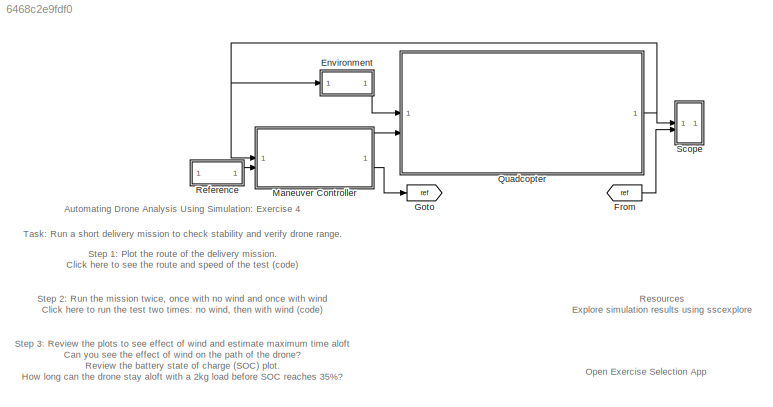
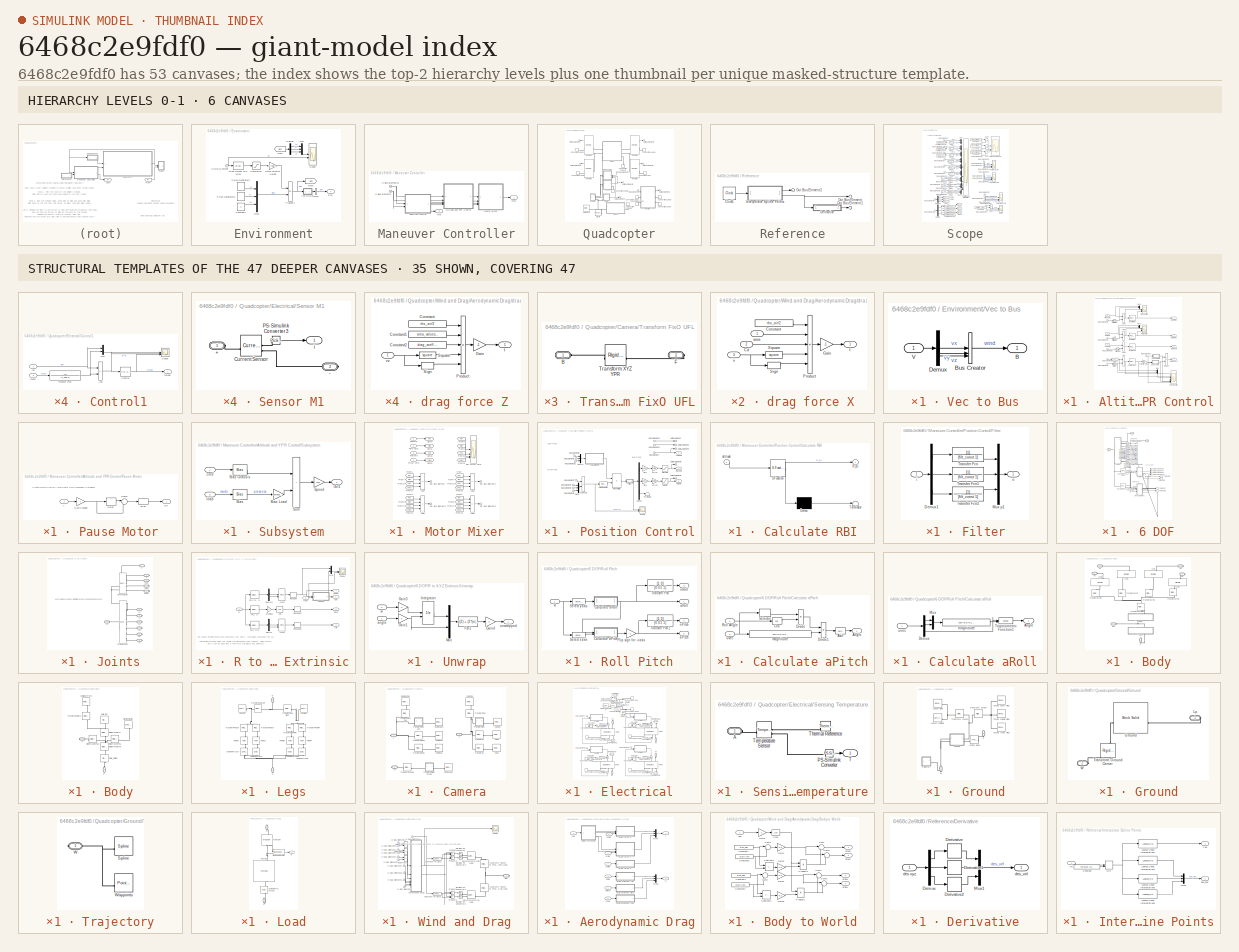
[diagram: thumbnail index - top-2 hierarchy levels (6 canvases) + 35 structural-template representatives of the remaining 47 canvases]
MODEL slx_6468c2e9fdf0
KIND model
CONFIG AbsTol = 1e-4
CONFIG FixedStep = Ts
CONFIG MaxStep = 0.1
CONFIG PreLoadFcn = [waypoints, timespot_spl, spline_data, spline_yaw, wayp_path_vis] = quadcopter_package_select_trajectory(2,true);\ndisp('Loaded path 2, round trip');
CONFIG RelTol = 1e-4
CONFIG SolverName = FixedStepAuto
CONFIG StopTime = inf
WORKSPACE source: MATLAB code (in-file)
WORKSPACE code: load('xy_data_membrane.mat');
BLOCK [SubSystem] Environment
BLOCK [Bias] Environment/Bias Height Min Wind
  Bias = -height_min_wind
  SaturateOnIntegerOverflow = off
BLOCK [Constant] Environment/Constant1
  Value = 0
BLOCK [Demux] Environment/Demux
  Outputs = 3
BLOCK [Outport] Environment/Env
BLOCK [From] Environment/From
  GotoTag = wind
BLOCK [Goto] Environment/Goto
  GotoTag = wind
BLOCK [Inport] Environment/In Bus Element
BLOCK [Mux] Environment/Mux
  DisplayOption = bar
  Inputs = 3
BLOCK [Mux] Environment/Mux1
  DisplayOption = bar
  Inputs = 3
BLOCK [Product] Environment/Product1
BLOCK [DiscretePulseGenerator] Environment/Pulse Generator2
  Amplitude = wind_speed_mag
  Period = 10
  PhaseDelay = 5
  PulseType = Time based
  PulseWidth = 25
BLOCK [DiscretePulseGenerator] Environment/Pulse Generator3
  Amplitude = wind_speed_mag
  Period = 10
  PhaseDelay = 9
  PulseType = Time based
  PulseWidth = 25
BLOCK [Saturate] Environment/Saturation
  LowerLimit = 0
  UpperLimit = height_max_wind-height_min_wind
  ZeroCross = off
BLOCK [Gain] Environment/Scale Wind by Height 
  Gain = 1/(height_max_wind-height_min_wind)
BLOCK [Scope] Environment/Scope
  ActiveDisplayYMaximum = 13.5
  ActiveDisplayYMinimum = -1.5
  DataLoggingVariableName = ScopeData1
  Floating = off
  GraphicalSettings = {"GraphicalSettings":{"LegacySettings":true,"Style":{"AxesScalingProperties":{"ScaleAxesLimitsAtStop":false},"Style":{"AxesColor":"[0 0 0]","ChannelNames":["",""],"ColorOrder":"[1 0.909803921568627 0.392156862745098;0.149019607843137 0.549019607843137 0.866666666666667;0.96078431372549 0.466666666666667 0.16078431372549;0.286274509803922 0.858823529411765 0.250980392156863;0.752941176470588 0.3607...<+708ch>
  LayoutDimensionsString = [2 1]
  MultipleDisplayCache = [{"MaxYLimMag":11.25,"MaxYLimReal":13.5,"MinYLimMag":0,"MinYLimReal":-1.5,"PlotAsMagnitudePhase":false,"ShowGrid":true,"ShowLegend":true,"Title":"Wind Speed (global x, y, z)","YLabel":"m\/s"},{"MaxYLimMag":11.25,"MaxYLimReal":6.75,"MinYLimMag":0,"MinYLimReal":-0.75,"PlotAsMagnitudePhase":false,"ShowGrid":true,"ShowLegend":true,"Title":"Drone Height","YLabel":"m"}]
  NumInputPorts = 2
  ScopeFrameLocation = window
  ShowLegend = on
  Title = Wind Speed (global x, y, z)
  Visible = on
  WasSavedAsWebScope = on
  WindowPosition = [822.000000,574.000000,467.000000,472.000000,]
  YLabel = m/s
BLOCK [SubSystem] Environment/Vec to Bus
BLOCK [Outport] Environment/Vec to Bus/B
BLOCK [BusCreator] Environment/Vec to Bus/Bus Creator
  DisplayOption = bar
  InheritFromInputs = on
  Inputs = 3
BLOCK [Demux] Environment/Vec to Bus/Demux
  Outputs = 3
BLOCK [Inport] Environment/Vec to Bus/V
BLOCK [BusCreator] Environment/Wind
  DisplayOption = bar
  InheritFromInputs = on
  Inputs = 1
BLOCK [From] From
  GotoTag = ref
BLOCK [Goto] Goto
  GotoTag = ref
BLOCK [SubSystem] Maneuver Controller
BLOCK [SubSystem] Maneuver Controller/Altitude and YPR Control
BLOCK [Sum] Maneuver Controller/Altitude and YPR Control/Add
  IconShape = rectangular
  Inputs = +-
BLOCK [Sum] Maneuver Controller/Altitude and YPR Control/Add2
  IconShape = rectangular
  Inputs = +-
BLOCK [Sum] Maneuver Controller/Altitude and YPR Control/Add3
  IconShape = rectangular
  Inputs = +-
BLOCK [Sum] Maneuver Controller/Altitude and YPR Control/Add7
  IconShape = rectangular
  Inputs = +-
BLOCK [Reference] Maneuver Controller/Altitude and YPR Control/Control Pitch  REF=slpidlib/PID Controller
  SourceBlock = slpidlib/PID Controller
  SourceType = PID 1dof
BLOCK [Reference] Maneuver Controller/Altitude and YPR Control/Control Roll  REF=slpidlib/PID Controller
  SourceBlock = slpidlib/PID Controller
  SourceType = PID 1dof
BLOCK [Reference] Maneuver Controller/Altitude and YPR Control/Control Thrust  REF=slpidlib/PID Controller
  SourceBlock = slpidlib/PID Controller
  SourceType = PID 1dof
BLOCK [Reference] Maneuver Controller/Altitude and YPR Control/Control Yaw  REF=slpidlib/PID Controller
  SourceBlock = slpidlib/PID Controller
  SourceType = PID 1dof
BLOCK [TransferFcn] Maneuver Controller/Altitude and YPR Control/Filter Pitch
  Denominator = [altitude_filtM 1]
BLOCK [TransferFcn] Maneuver Controller/Altitude and YPR Control/Filter Roll
  Denominator = [altitude_filtM 1]
BLOCK [TransferFcn] Maneuver Controller/Altitude and YPR Control/Filter Yaw
  Denominator = [yaw_filtM 1]
BLOCK [TransferFcn] Maneuver Controller/Altitude and YPR Control/Filter pz
  Denominator = [0.01 1]
BLOCK [Inport] Maneuver Controller/Altitude and YPR Control/In Bus Element
BLOCK [Inport] Maneuver Controller/Altitude and YPR Control/In Bus Element1
BLOCK [Inport] Maneuver Controller/Altitude and YPR Control/In Bus Element2
BLOCK [Inport] Maneuver Controller/Altitude and YPR Control/In Bus Element3
BLOCK [Inport] Maneuver Controller/Altitude and YPR Control/In Bus Element4
BLOCK [Inport] Maneuver Controller/Altitude and YPR Control/In Bus Element9
  Port = 2
BLOCK [Outport] Maneuver Controller/Altitude and YPR Control/Motor Pitch
BLOCK [Outport] Maneuver Controller/Altitude and YPR Control/Motor Roll
  Port = 2
BLOCK [Outport] Maneuver Controller/Altitude and YPR Control/Motor Thrust
  Port = 4
BLOCK [Outport] Maneuver Controller/Altitude and YPR Control/Motor Yaw
  Port = 3
BLOCK [Mux] Maneuver Controller/Altitude and YPR Control/Mux
  DisplayOption = bar
  Inputs = 2
BLOCK [Mux] Maneuver Controller/Altitude and YPR Control/Mux1
  DisplayOption = bar
  Inputs = 2
BLOCK [Mux] Maneuver Controller/Altitude and YPR Control/Mux2
  DisplayOption = bar
  Inputs = 2
BLOCK [SubSystem] Maneuver Controller/Altitude and YPR Control/Pause Motor
  NameLocation = top
BLOCK [Bias] Maneuver Controller/Altitude and YPR Control/Pause Motor/Bias
  Bias = 1
  SaturateOnIntegerOverflow = off
BLOCK [Delay] Maneuver Controller/Altitude and YPR Control/Pause Motor/Delay
  DelayLength = dur_pulse/ts_pulse
  InitialCondition = 0
  InputPortMap = u0
  SampleTime = ts_pulse
  UserDataPersistent = on
BLOCK [Outport] Maneuver Controller/Altitude and YPR Control/Pause Motor/En
BLOCK [Gain] Maneuver Controller/Altitude and YPR Control/Pause Motor/Sign Change
  Gain = -1
BLOCK [Sum] Maneuver Controller/Altitude and YPR Control/Pause Motor/Sum2
  InputSameDT = on
  Inputs = |+-
  OutDataTypeStr = double
  SaturateOnIntegerOverflow = on
BLOCK [Inport] Maneuver Controller/Altitude and YPR Control/Pause Motor/y
BLOCK [Inport] Maneuver Controller/Altitude and YPR Control/Pitch Cmd
  Port = 3
BLOCK [Scope] Maneuver Controller/Altitude and YPR Control/Pitch Control
  ActiveDisplayYMaximum = 0.83815
  ActiveDisplayYMinimum = -0.80585
  DataLoggingVariableName = ScopeData1
  Floating = off
  GraphicalSettings = {"GraphicalSettings":{"LegacySettings":true,"Style":{"AxesScalingProperties":{"ScaleAxesLimitsAtStop":false},"Style":{"AxesColor":"[0 0 0]","ChannelNames":["","",""],"ColorOrder":"[1 0.909803921568627 0.392156862745098;0.149019607843137 0.549019607843137 0.866666666666667;0.96078431372549 0.466666666666667 0.16078431372549;0.286274509803922 0.858823529411765 0.250980392156863;0.752941176470588 0.3...<+575ch>  <repeated x5 — deduplicated; at blocks: Pitch Control, Roll Control, Scope>
  LayoutDimensionsString = [3 1]
  MultipleDisplayCache = [{"MaxYLimMag":0.83815,"MaxYLimReal":0.83815,"MinYLimMag":0,"MinYLimReal":-0.80585,"PlotAsMagnitudePhase":false,"ShowGrid":true,"ShowLegend":false,"Title":"%<SignalLabel>","YLabel":""},{"MaxYLimMag":10,"MaxYLimReal":0.88362,"MinYLimMag":0,"MinYLimReal":-0.88826,"PlotAsMagnitudePhase":false,"ShowGrid":true,"ShowLegend":false,"Title":"%<SignalLabel>","YLabel":""},{"MaxYLimMag":10,"MaxYLimReal":48.41...<+145ch>
  NumInputPorts = 3
  ScopeFrameLocation = window
  WasSavedAsWebScope = on
  WindowPosition = [823.000000,176.000000,560.000000,602.000000,]
BLOCK [Product] Maneuver Controller/Altitude and YPR Control/Product
BLOCK [Inport] Maneuver Controller/Altitude and YPR Control/Roll Cmd
  Port = 4
BLOCK [Scope] Maneuver Controller/Altitude and YPR Control/Roll Control
  ActiveDisplayYMaximum = 0.83815
  ActiveDisplayYMinimum = -0.80585
  DataLoggingVariableName = ScopeData1
  Floating = off
  LayoutDimensionsString = [3 1]
  MultipleDisplayCache = [{"MaxYLimMag":0.83815,"MaxYLimReal":0.83815,"MinYLimMag":0,"MinYLimReal":-0.80585,"PlotAsMagnitudePhase":false,"ShowGrid":true,"ShowLegend":false,"Title":"%<SignalLabel>","YLabel":""},{"MaxYLimMag":10,"MaxYLimReal":0.88362,"MinYLimMag":0,"MinYLimReal":-0.88826,"PlotAsMagnitudePhase":false,"ShowGrid":true,"ShowLegend":false,"Title":"%<SignalLabel>","YLabel":""},{"MaxYLimMag":10,"MaxYLimReal":48.41...<+145ch>
  NumInputPorts = 3
  ScopeFrameLocation = window
  WasSavedAsWebScope = on
  WindowPosition = [823.000000,176.000000,560.000000,602.000000,]
BLOCK [Selector] Maneuver Controller/Altitude and YPR Control/Select z
  IndexOptions = Index vector (dialog)
  Indices = [3]
  InputPortWidth = 3
  OutputSizes = 1
BLOCK [SubSystem] Maneuver Controller/Altitude and YPR Control/Subsystem
BLOCK [Bias] Maneuver Controller/Altitude and YPR Control/Subsystem/Bias
  Bias = +1
  SaturateOnIntegerOverflow = off
BLOCK [Bias] Maneuver Controller/Altitude and YPR Control/Subsystem/Bias Chassis
  Bias = 700
  SaturateOnIntegerOverflow = off
BLOCK [Gain] Maneuver Controller/Altitude and YPR Control/Subsystem/Bias Load
  Gain = 260*pkgSize(1)^3*pkgDensity
BLOCK [Outport] Maneuver Controller/Altitude and YPR Control/Subsystem/Out1
BLOCK [Gain] Maneuver Controller/Altitude and YPR Control/Subsystem/Speed
  Gain = 2*pi
BLOCK [Sum] Maneuver Controller/Altitude and YPR Control/Subsystem/Sum
  IconShape = rectangular
BLOCK [Inport] Maneuver Controller/Altitude and YPR Control/Subsystem/cmd
BLOCK [Inport] Maneuver Controller/Altitude and YPR Control/Subsystem/load
  Port = 2
BLOCK [Scope] Maneuver Controller/Altitude and YPR Control/Thrust Control
  ActiveDisplayYMaximum = 7.31154
  ActiveDisplayYMinimum = -0.81239
  DataLoggingVariableName = ScopeData2
  Floating = off
  GraphicalSettings = {"GraphicalSettings":{"LegacySettings":true,"Style":{"AxesScalingProperties":{"ScaleAxesLimitsAtStop":false},"Style":{"AxesColor":"[0 0 0]","ChannelNames":["","","","","","","",""],"ColorOrder":"[1 0.909803921568627 0.392156862745098;0.149019607843137 0.549019607843137 0.866666666666667;0.96078431372549 0.466666666666667 0.16078431372549;0.286274509803922 0.858823529411765 0.250980392156863;0.7529...<+763ch>
  LayoutDimensionsString = [4 2]
  MultipleDisplayCache = [{"MaxYLimMag":7.31154,"MaxYLimReal":7.31154,"MinYLimMag":0,"MinYLimReal":-0.81239,"PlotAsMagnitudePhase":false,"ShowGrid":true,"ShowLegend":false,"Title":"%<SignalLabel>","YLabel":""},{"MaxYLimMag":10,"MaxYLimReal":0.02904,"MinYLimMag":0,"MinYLimReal":-0.02957,"PlotAsMagnitudePhase":false,"ShowGrid":true,"ShowLegend":false,"Title":"%<SignalLabel>","YLabel":""},{"MaxYLimMag":10,"MaxYLimReal":0.046...<+977ch>
  NumInputPorts = 6
  ScopeFrameLocation = window
  WasSavedAsWebScope = on
  WindowPosition = [488.000000,270.000000,560.000000,420.000000,]
BLOCK [Gain] Maneuver Controller/Altitude and YPR Control/Thrust to Torque
  Gain = 2*pi/(propeller.diameter^4 * sqrt(air_rho))
BLOCK [Inport] Maneuver Controller/Altitude and YPR Control/Yaw Cmd
  Port = 5
BLOCK [Inport] Maneuver Controller/In Bus Element13
BLOCK [Inport] Maneuver Controller/In Bus Element3
  Port = 2
BLOCK [SubSystem] Maneuver Controller/Motor Mixer
BLOCK [Sum] Maneuver Controller/Motor Mixer/Add4
  IconShape = rectangular
  Inputs = +--+
BLOCK [Sum] Maneuver Controller/Motor Mixer/Add5
  IconShape = rectangular
  Inputs = --++
BLOCK [Sum] Maneuver Controller/Motor Mixer/Add6
  IconShape = rectangular
  Inputs = -+-+
BLOCK [Sum] Maneuver Controller/Motor Mixer/Add7
  IconShape = rectangular
  Inputs = ++++
BLOCK [From] Maneuver Controller/Motor Mixer/From
  GotoTag = Roll
BLOCK [From] Maneuver Controller/Motor Mixer/From1
  GotoTag = Roll
BLOCK [From] Maneuver Controller/Motor Mixer/From10
  GotoTag = Yaw
BLOCK [From] Maneuver Controller/Motor Mixer/From11
  GotoTag = Yaw
BLOCK [From] Maneuver Controller/Motor Mixer/From12
  GotoTag = Yaw
BLOCK [From] Maneuver Controller/Motor Mixer/From13
  GotoTag = Yaw
BLOCK [From] Maneuver Controller/Motor Mixer/From14
  GotoTag = Yaw
BLOCK [From] Maneuver Controller/Motor Mixer/From15
  GotoTag = Thrust
BLOCK [From] Maneuver Controller/Motor Mixer/From16
  GotoTag = Thrust
BLOCK [From] Maneuver Controller/Motor Mixer/From17
  GotoTag = Thrust
BLOCK [From] Maneuver Controller/Motor Mixer/From18
  GotoTag = Thrust
BLOCK [From] Maneuver Controller/Motor Mixer/From19
  GotoTag = Thrust
BLOCK [From] Maneuver Controller/Motor Mixer/From2
  GotoTag = Roll
BLOCK [From] Maneuver Controller/Motor Mixer/From3
  GotoTag = Roll
BLOCK [From] Maneuver Controller/Motor Mixer/From4
  GotoTag = Pitch
BLOCK [From] Maneuver Controller/Motor Mixer/From5
  GotoTag = Roll
BLOCK [From] Maneuver Controller/Motor Mixer/From6
  GotoTag = Pitch
BLOCK [From] Maneuver Controller/Motor Mixer/From7
  GotoTag = Pitch
BLOCK [From] Maneuver Controller/Motor Mixer/From8
  GotoTag = Pitch
BLOCK [From] Maneuver Controller/Motor Mixer/From9
  GotoTag = Pitch
BLOCK [Goto] Maneuver Controller/Motor Mixer/Goto1
  GotoTag = Pitch
BLOCK [Goto] Maneuver Controller/Motor Mixer/Goto2
  GotoTag = Thrust
BLOCK [Goto] Maneuver Controller/Motor Mixer/Goto3
  GotoTag = Yaw
BLOCK [Goto] Maneuver Controller/Motor Mixer/Goto4
  GotoTag = Roll
BLOCK [Outport] Maneuver Controller/Motor Mixer/Out Bus Element
BLOCK [Outport] Maneuver Controller/Motor Mixer/Out Bus Element1
BLOCK [Outport] Maneuver Controller/Motor Mixer/Out Bus Element2
BLOCK [Outport] Maneuver Controller/Motor Mixer/Out Bus Element3
BLOCK [Inport] Maneuver Controller/Motor Mixer/Pitch Cmd
BLOCK [Scope] Maneuver Controller/Motor Mixer/RPY Thrust Cmd
  ActiveDisplayYMaximum = 5987.32527
  ActiveDisplayYMinimum = 4417.97471
  DataLoggingVariableName = ScopeData1
  Floating = off
  GraphicalSettings = {"GraphicalSettings":{"LegacySettings":true,"Style":{"AxesScalingProperties":{"ScaleAxesLimitsAtStop":false},"Style":{"AxesColor":"[0 0 0]","ChannelNames":[""],"ColorOrder":"[1 0.909803921568627 0.392156862745098;0.149019607843137 0.549019607843137 0.866666666666667;0.96078431372549 0.466666666666667 0.16078431372549;0.286274509803922 0.858823529411765 0.250980392156863;0.752941176470588 0.3607843...<+548ch>
  MultipleDisplayCache = [{"MaxYLimMag":5987.32527,"MaxYLimReal":5987.32527,"MinYLimMag":4417.97471,"MinYLimReal":4417.97471,"PlotAsMagnitudePhase":false,"ShowGrid":true,"ShowLegend":true,"Title":"%<SignalLabel>","YLabel":""}]
  NumInputPorts = 4
  ScopeFrameLocation = window
  ShowLegend = on
  WasSavedAsWebScope = on
  WindowPosition = [488.000000,270.000000,560.000000,420.000000,]
BLOCK [Inport] Maneuver Controller/Motor Mixer/Roll Cmd
  Port = 2
BLOCK [Inport] Maneuver Controller/Motor Mixer/Thrust Cmd
  Port = 4
BLOCK [Inport] Maneuver Controller/Motor Mixer/Yaw Cmd
  Port = 3
BLOCK [SubSystem] Maneuver Controller/Position Control
BLOCK [SubSystem] Maneuver Controller/Position Control/Calculate RBI
  ErrorFcn = Stateflow.Translate.translate
  PermitHierarchicalResolution = ExplicitOnly
  SFBlockType = MATLAB Function
  TreatAsAtomicUnit = on
BLOCK [Demux] Maneuver Controller/Position Control/Calculate RBI/ Demux 
  Outputs = 1
BLOCK [S-Function] Maneuver Controller/Position Control/Calculate RBI/ SFunction 
  EnableBusSupport = off
  FunctionName = sf_sfun
  PortCounts = [1 2]
  SFcnIsStateOwnerBlock = off
  SFunctionDeploymentMode = off
  Tag = Stateflow S-Function 7
BLOCK [Terminator] Maneuver Controller/Position Control/Calculate RBI/ Terminator 
BLOCK [Outport] Maneuver Controller/Position Control/Calculate RBI/R_BI
BLOCK [Inport] Maneuver Controller/Position Control/Calculate RBI/attitude
BLOCK [Demux] Maneuver Controller/Position Control/Demux
  Outputs = 3
BLOCK [Gain] Maneuver Controller/Position Control/Dir P
  Gain = 1/9.81
BLOCK [Gain] Maneuver Controller/Position Control/Dir R
  Gain = -1/9.81
BLOCK [Gain] Maneuver Controller/Position Control/Err2P
  Gain = err2rp
BLOCK [Gain] Maneuver Controller/Position Control/Err2R
  Gain = err2rp
BLOCK [SubSystem] Maneuver Controller/Position Control/Filter
BLOCK [Demux] Maneuver Controller/Position Control/Filter/Demux1
  Outputs = 3
BLOCK [Mux] Maneuver Controller/Position Control/Filter/Mux p1
  DisplayOption = bar
  Inputs = 3
BLOCK [TransferFcn] Maneuver Controller/Position Control/Filter/Transfer Fcn
  Denominator = [filt_const 1]
BLOCK [TransferFcn] Maneuver Controller/Position Control/Filter/Transfer Fcn1
  Denominator = [filt_const 1]
BLOCK [TransferFcn] Maneuver Controller/Position Control/Filter/Transfer Fcn2
  Denominator = [filt_const 1]
BLOCK [Inport] Maneuver Controller/Position Control/Filter/i
BLOCK [Outport] Maneuver Controller/Position Control/Filter/o
BLOCK [Inport] Maneuver Controller/Position Control/In Bus Element
  Port = 2
BLOCK [Inport] Maneuver Controller/Position Control/In Bus Element1
BLOCK [Inport] Maneuver Controller/Position Control/In Bus Element11
BLOCK [Inport] Maneuver Controller/Position Control/In Bus Element12
  Port = 2
BLOCK [Inport] Maneuver Controller/Position Control/In Bus Element13
  Port = 2
BLOCK [Inport] Maneuver Controller/Position Control/In Bus Element2
BLOCK [Inport] Maneuver Controller/Position Control/In Bus Element3
BLOCK [Inport] Maneuver Controller/Position Control/In Bus Element7
  Port = 2
BLOCK [Inport] Maneuver Controller/Position Control/In Bus Element8
BLOCK [Inport] Maneuver Controller/Position Control/In Bus Element9
BLOCK [Product] Maneuver Controller/Position Control/Matrix Multiply
  Multiplication = Matrix(*)
BLOCK [Mux] Maneuver Controller/Position Control/Mux p
  DisplayOption = bar
  Inputs = 3
BLOCK [Mux] Maneuver Controller/Position Control/Mux rpy
  DisplayOption = bar
  Inputs = 3
BLOCK [Outport] Maneuver Controller/Position Control/Out Bus Element
  Port = 4
BLOCK [Outport] Maneuver Controller/Position Control/Out Bus Element1
  Port = 4
BLOCK [Outport] Maneuver Controller/Position Control/Out Bus Element2
  Port = 4
BLOCK [Outport] Maneuver Controller/Position Control/Out Bus Element3
  Port = 4
BLOCK [Outport] Maneuver Controller/Position Control/Out Bus Element4
  Port = 4
BLOCK [Reference] Maneuver Controller/Position Control/PID Controller  REF=slpidlib/PID Controller
  SourceBlock = slpidlib/PID Controller
  SourceType = PID 1dof
BLOCK [Outport] Maneuver Controller/Position Control/Pitch Cmd
BLOCK [Saturate] Maneuver Controller/Position Control/Pitch Limit
  LowerLimit = -pi/3
  UpperLimit = pi/3
BLOCK [Outport] Maneuver Controller/Position Control/Roll Cmd
  Port = 2
BLOCK [Saturate] Maneuver Controller/Position Control/Roll Limit
  LowerLimit = -pi/3
  UpperLimit = pi/3
BLOCK [Scope] Maneuver Controller/Position Control/Scope
  ActiveDisplayYMaximum = 2.2076
  ActiveDisplayYMinimum = -1.96666
  DataLoggingVariableName = ScopeData5
  Floating = off
  GraphicalSettings = {"GraphicalSettings":{"LegacySettings":true,"Style":{"AxesScalingProperties":{"ScaleAxesLimitsAtStop":false},"Style":{"AxesColor":"[0 0 0]","ChannelNames":["",""],"ColorOrder":"[1 0.909803921568627 0.392156862745098;0.149019607843137 0.549019607843137 0.866666666666667;0.96078431372549 0.466666666666667 0.16078431372549;0.286274509803922 0.858823529411765 0.250980392156863;0.752941176470588 0.3607...<+544ch>
  LayoutDimensionsString = [2 1]
  MultipleDisplayCache = [{"MaxYLimMag":2.2076,"MaxYLimReal":2.2076,"MinYLimMag":0,"MinYLimReal":-1.96666,"PlotAsMagnitudePhase":false,"ShowGrid":true,"ShowLegend":false,"Title":"%<SignalLabel>","YLabel":""},{"MaxYLimMag":1.82884,"MaxYLimReal":0.82285,"MinYLimMag":0,"MinYLimReal":-0.62516,"PlotAsMagnitudePhase":false,"ShowGrid":true,"ShowLegend":false,"Title":"%<SignalLabel>","YLabel":""}]
  NumInputPorts = 2
  ScopeFrameLocation = window
  WasSavedAsWebScope = on
  WindowPosition = [823.000000,358.000000,560.000000,420.000000,]
BLOCK [Sum] Maneuver Controller/Position Control/Subtract2
  IconShape = rectangular
  Inputs = +-
BLOCK [Terminator] Maneuver Controller/Position Control/Terminator
BLOCK [Outport] Maneuver Controller/Position Control/Yaw Cmd
  Port = 3
BLOCK [Outport] Maneuver Controller/Ref
  Port = 2
BLOCK [Outport] Maneuver Controller/cmd
BLOCK [SubSystem] Quadcopter
BLOCK [SubSystem] Quadcopter/6 DOF
BLOCK [PMIOPort] Quadcopter/6 DOF/B
  Port = 3
  Side = Left
BLOCK [PMIOPort] Quadcopter/6 DOF/C
  NameLocation = top
  Port = 2
  Side = Left
BLOCK [PMIOPort] Quadcopter/6 DOF/F
  NameLocation = top
  Side = Left
BLOCK [SubSystem] Quadcopter/6 DOF/Joints
BLOCK [PMIOPort] Quadcopter/6 DOF/Joints/B
  Port = 5
  Side = Left
BLOCK [PMIOPort] Quadcopter/6 DOF/Joints/C
  Side = Right
BLOCK [Reference] Quadcopter/6 DOF/Joints/Cartesian Joint  REF=sm_lib/Joints/Cartesian
Joint
  SourceBlock = sm_lib/Joints/Cartesian\nJoint
  SourceType = Cartesian\nJoint
BLOCK [PMIOPort] Quadcopter/6 DOF/Joints/F
  Port = 2
  Side = Right
BLOCK [Reference] Quadcopter/6 DOF/Joints/Spherical Joint  REF=sm_lib/Joints/Spherical
Joint
  SourceBlock = sm_lib/Joints/Spherical\nJoint
  SourceType = Spherical\nJoint
BLOCK [PMIOPort] Quadcopter/6 DOF/Joints/nPitch
  Port = 11
  Side = Right
BLOCK [PMIOPort] Quadcopter/6 DOF/Joints/nRoll
  Port = 10
  Side = Right
BLOCK [PMIOPort] Quadcopter/6 DOF/Joints/nYaw
  Port = 12
  Side = Right
BLOCK [PMIOPort] Quadcopter/6 DOF/Joints/px
  Port = 3
  Side = Right
BLOCK [PMIOPort] Quadcopter/6 DOF/Joints/py
  Port = 6
  Side = Right
BLOCK [PMIOPort] Quadcopter/6 DOF/Joints/pz
  Port = 8
  Side = Right
BLOCK [PMIOPort] Quadcopter/6 DOF/Joints/vx
  Port = 4
  Side = Right
BLOCK [PMIOPort] Quadcopter/6 DOF/Joints/vy
  Port = 7
  Side = Right
BLOCK [PMIOPort] Quadcopter/6 DOF/Joints/vz
  Port = 9
  Side = Right
BLOCK [Outport] Quadcopter/6 DOF/Out Bus Element
BLOCK [Outport] Quadcopter/6 DOF/Out Bus Element1
BLOCK [Outport] Quadcopter/6 DOF/Out Bus Element10
BLOCK [Outport] Quadcopter/6 DOF/Out Bus Element11
BLOCK [Outport] Quadcopter/6 DOF/Out Bus Element12
BLOCK [Outport] Quadcopter/6 DOF/Out Bus Element2
BLOCK [Outport] Quadcopter/6 DOF/Out Bus Element3
BLOCK [Outport] Quadcopter/6 DOF/Out Bus Element4
BLOCK [Outport] Quadcopter/6 DOF/Out Bus Element5
BLOCK [Outport] Quadcopter/6 DOF/Out Bus Element6
BLOCK [Outport] Quadcopter/6 DOF/Out Bus Element7
BLOCK [Outport] Quadcopter/6 DOF/Out Bus Element8
BLOCK [Outport] Quadcopter/6 DOF/Out Bus Element9
BLOCK [Reference] Quadcopter/6 DOF/PS-Simulink Converter  REF=nesl_utility/PS-Simulink
Converter
  SourceBlock = nesl_utility/PS-Simulink\nConverter
  SourceType = PS-Simulink\nConverter
BLOCK [Reference] Quadcopter/6 DOF/PS-Simulink Converter1  REF=nesl_utility/PS-Simulink
Converter
  SourceBlock = nesl_utility/PS-Simulink\nConverter
  SourceType = PS-Simulink\nConverter
BLOCK [Reference] Quadcopter/6 DOF/PS-Simulink Converter11  REF=nesl_utility/PS-Simulink
Converter
  SourceBlock = nesl_utility/PS-Simulink\nConverter
  SourceType = PS-Simulink\nConverter
BLOCK [Reference] Quadcopter/6 DOF/PS-Simulink Converter13  REF=nesl_utility/PS-Simulink
Converter
  SourceBlock = nesl_utility/PS-Simulink\nConverter
  SourceType = PS-Simulink\nConverter
BLOCK [Reference] Quadcopter/6 DOF/PS-Simulink Converter2  REF=nesl_utility/PS-Simulink
Converter
  SourceBlock = nesl_utility/PS-Simulink\nConverter
  SourceType = PS-Simulink\nConverter
BLOCK [Reference] Quadcopter/6 DOF/PS-Simulink Converter3  REF=nesl_utility/PS-Simulink
Converter
  SourceBlock = nesl_utility/PS-Simulink\nConverter
  SourceType = PS-Simulink\nConverter
BLOCK [Reference] Quadcopter/6 DOF/PS-Simulink Converter4  REF=nesl_utility/PS-Simulink
Converter
  SourceBlock = nesl_utility/PS-Simulink\nConverter
  SourceType = PS-Simulink\nConverter
BLOCK [Reference] Quadcopter/6 DOF/PS-Simulink Converter5  REF=nesl_utility/PS-Simulink
Converter
  SourceBlock = nesl_utility/PS-Simulink\nConverter
  SourceType = PS-Simulink\nConverter
BLOCK [SubSystem] Quadcopter/6 DOF/R to X-Y-Z Extrinsic
BLOCK [Trigonometry] Quadcopter/6 DOF/R to X-Y-Z Extrinsic/Asin
  Operator = asin
BLOCK [Trigonometry] Quadcopter/6 DOF/R to X-Y-Z Extrinsic/Atan1
  Operator = atan2
BLOCK [Trigonometry] Quadcopter/6 DOF/R to X-Y-Z Extrinsic/Atan2
  Operator = atan2
BLOCK [Demux] Quadcopter/6 DOF/R to X-Y-Z Extrinsic/Demux
  Outputs = 2
BLOCK [Demux] Quadcopter/6 DOF/R to X-Y-Z Extrinsic/Demux1
  Outputs = 2
BLOCK [Gain] Quadcopter/6 DOF/R to X-Y-Z Extrinsic/Multiply2
  Gain = -1
BLOCK [Mux] Quadcopter/6 DOF/R to X-Y-Z Extrinsic/Mux
  DisplayOption = bar
  Inputs = 2
BLOCK [Inport] Quadcopter/6 DOF/R to X-Y-Z Extrinsic/R
BLOCK [Selector] Quadcopter/6 DOF/R to X-Y-Z Extrinsic/R(3, 1)
  IndexOptions = Index vector (dialog),Index vector (dialog)
  Indices = 3,1
  InputPortWidth = 3
  NumberOfDimensions = 2
  OutputSizes = 1,1
BLOCK [Selector] Quadcopter/6 DOF/R to X-Y-Z Extrinsic/R(3, 2:3)
  IndexOptions = Index vector (dialog),Index vector (dialog)
  Indices = 3,[2 3]
  InputPortWidth = 3
  NumberOfDimensions = 2
  OutputSizes = 1,1
BLOCK [Selector] Quadcopter/6 DOF/R to X-Y-Z Extrinsic/R([2 1], 1)
  IndexOptions = Index vector (dialog),Index vector (dialog)
  Indices = [2 1],1
  InputPortWidth = 3
  NumberOfDimensions = 2
  OutputSizes = 1,1
BLOCK [Reshape] Quadcopter/6 DOF/R to X-Y-Z Extrinsic/Reshape
BLOCK [Reshape] Quadcopter/6 DOF/R to X-Y-Z Extrinsic/Reshape1
BLOCK [Reshape] Quadcopter/6 DOF/R to X-Y-Z Extrinsic/Reshape2
  OutputDimensionality = Customize
  OutputDimensions = 1
BLOCK [Scope] Quadcopter/6 DOF/R to X-Y-Z Extrinsic/Scope
  ActiveDisplayYMaximum = 7.61477
  ActiveDisplayYMinimum = -4.33662
  DataLoggingVariableName = ScopeData2
  Floating = off
  GraphicalSettings = {"GraphicalSettings":{"LegacySettings":true,"Style":{"Style":{"AxesColor":"[0 0 0]","ChannelNames":["",""],"ColorOrder":"[1 0.909803921568627 0.392156862745098;0.149019607843137 0.549019607843137 0.866666666666667;0.96078431372549 0.466666666666667 0.16078431372549;0.286274509803922 0.858823529411765 0.250980392156863;0.752941176470588 0.36078431372549 0.984313725490196;0.423529411764706 0.9568627...<+463ch>
  LayoutDimensionsString = [2 1]
  MultipleDisplayCache = [{"MaxYLimMag":7.61477,"MaxYLimReal":7.61477,"MinYLimMag":0,"MinYLimReal":-4.33662,"PlotAsMagnitudePhase":false,"ShowGrid":true,"ShowLegend":false,"Title":"%<SignalLabel>","YLabel":""},{"MaxYLimMag":10,"MaxYLimReal":0.4919,"MinYLimMag":0,"MinYLimReal":-0.41953,"PlotAsMagnitudePhase":false,"ShowGrid":true,"ShowLegend":false,"Title":"%<SignalLabel>","YLabel":""}]
  NumInputPorts = 2
  ScopeFrameLocation = window
  WasSavedAsWebScope = on
  WindowPosition = [823.000000,358.000000,560.000000,420.000000,]
BLOCK [SubSystem] Quadcopter/6 DOF/R to X-Y-Z Extrinsic/Unwrap
BLOCK [Fcn] Quadcopter/6 DOF/R to X-Y-Z Extrinsic/Unwrap/Fcn1
  Expr = u(2) + (2*(u(1) > u(2)) - 1)*2*pi*floor(abs(u(1)-u(2))/(2*pi) + 0.5)
BLOCK [Gain] Quadcopter/6 DOF/R to X-Y-Z Extrinsic/Unwrap/Gain1
  OutDataTypeStr = Inherit: Same as input
  ParamDataTypeStr = Inherit: Same as input
  SaturateOnIntegerOverflow = on
BLOCK [Gain] Quadcopter/6 DOF/R to X-Y-Z Extrinsic/Unwrap/Gain3
  OutDataTypeStr = Inherit: Same as input
  ParamDataTypeStr = Inherit: Same as input
  SaturateOnIntegerOverflow = on
BLOCK [Gain] Quadcopter/6 DOF/R to X-Y-Z Extrinsic/Unwrap/Gain4
  OutDataTypeStr = Inherit: Same as input
  ParamDataTypeStr = Inherit: Same as input
  SaturateOnIntegerOverflow = on
BLOCK [Integrator] Quadcopter/6 DOF/R to X-Y-Z Extrinsic/Unwrap/Integrator
  AbsoluteTolerance = 1e-3
  InitialConditionSource = external
  ZeroCross = off
BLOCK [Mux] Quadcopter/6 DOF/R to X-Y-Z Extrinsic/Unwrap/Mux
  DisplayOption = bar
  Inputs = 2
BLOCK [Inport] Quadcopter/6 DOF/R to X-Y-Z Extrinsic/Unwrap/angle
BLOCK [Outport] Quadcopter/6 DOF/R to X-Y-Z Extrinsic/Unwrap/unwrapped
BLOCK [Inport] Quadcopter/6 DOF/R to X-Y-Z Extrinsic/Unwrap/w
  Port = 2
BLOCK [Inport] Quadcopter/6 DOF/R to X-Y-Z Extrinsic/nYaw
  Port = 2
BLOCK [Outport] Quadcopter/6 DOF/R to X-Y-Z Extrinsic/pitch
  Port = 2
  VectorParamsAs1DForOutWhenUnconnected = off
BLOCK [Outport] Quadcopter/6 DOF/R to X-Y-Z Extrinsic/roll
  Port = 3
  VectorParamsAs1DForOutWhenUnconnected = off
BLOCK [Outport] Quadcopter/6 DOF/R to X-Y-Z Extrinsic/yaw
  VectorParamsAs1DForOutWhenUnconnected = off
BLOCK [Outport] Quadcopter/6 DOF/R to X-Y-Z Extrinsic/yawWr
  Port = 4
  VectorParamsAs1DForOutWhenUnconnected = off
BLOCK [SubSystem] Quadcopter/6 DOF/Roll Pitch
BLOCK [SubSystem] Quadcopter/6 DOF/Roll Pitch/Calculate aPitch
BLOCK [Outport] Quadcopter/6 DOF/Roll Pitch/Calculate aPitch/Angle
  VectorParamsAs1DForOutWhenUnconnected = off
BLOCK [Trigonometry] Quadcopter/6 DOF/Roll Pitch/Calculate aPitch/Asin
  Operator = asin
BLOCK [Trigonometry] Quadcopter/6 DOF/Roll Pitch/Calculate aPitch/Cos
  Operator = cos
BLOCK [Product] Quadcopter/6 DOF/Roll Pitch/Calculate aPitch/Divide
  Inputs = */
BLOCK [Product] Quadcopter/6 DOF/Roll Pitch/Calculate aPitch/Divide1
  Inputs = */
BLOCK [Inport] Quadcopter/6 DOF/Roll Pitch/Calculate aPitch/Roll Angle
BLOCK [Selector] Quadcopter/6 DOF/Roll Pitch/Calculate aPitch/Selector
  IndexOptions = Index vector (dialog)
  Indices = [3]
  InputPortWidth = 3
  NameLocation = top
  OutputSizes = 1
BLOCK [Fcn] Quadcopter/6 DOF/Roll Pitch/Calculate aPitch/magnitude
  Expr = sqrt(u(1)*u(1)+u(2)*u(2)+u(3)*u(3))
BLOCK [Inport] Quadcopter/6 DOF/Roll Pitch/Calculate aPitch/uvec
  Port = 2
BLOCK [SubSystem] Quadcopter/6 DOF/Roll Pitch/Calculate aRoll
BLOCK [Outport] Quadcopter/6 DOF/Roll Pitch/Calculate aRoll/Angle
  VectorParamsAs1DForOutWhenUnconnected = off
BLOCK [Demux] Quadcopter/6 DOF/Roll Pitch/Calculate aRoll/Demux
  Outputs = 3
BLOCK [Mux] Quadcopter/6 DOF/Roll Pitch/Calculate aRoll/Mux
  DisplayOption = bar
  Inputs = 2
BLOCK [Trigonometry] Quadcopter/6 DOF/Roll Pitch/Calculate aRoll/Trigonometric Function1
  Operator = atan2
BLOCK [Fcn] Quadcopter/6 DOF/Roll Pitch/Calculate aRoll/magnitude
  Expr = sqrt(u(1)*u(1)+u(2)*u(2))
BLOCK [Inport] Quadcopter/6 DOF/Roll Pitch/Calculate aRoll/uvec
BLOCK [Gain] Quadcopter/6 DOF/Roll Pitch/Flip sign for -x axis 
  Gain = -1
BLOCK [Inport] Quadcopter/6 DOF/Roll Pitch/R
BLOCK [Selector] Quadcopter/6 DOF/Roll Pitch/Select x axis
  IndexOptions = Index vector (dialog),Index vector (dialog)
  Indices = [1 2 3],1
  InputPortWidth = 2
  NumberOfDimensions = 2
  OutputSizes = 1,1
BLOCK [Selector] Quadcopter/6 DOF/Roll Pitch/Select y axis
  IndexOptions = Index vector (dialog),Index vector (dialog)
  Indices = [1 2 3],2
  InputPortWidth = 2
  NumberOfDimensions = 2
  OutputSizes = 1,1
BLOCK [TransferFcn] Quadcopter/6 DOF/Roll Pitch/Transfer Fcn
  Denominator = [0.01 1]
  NameLocation = top
  Numerator = [1 0]
BLOCK [TransferFcn] Quadcopter/6 DOF/Roll Pitch/Transfer Fcn1
  Denominator = [0.01 1]
  NameLocation = top
  Numerator = [1 0]
BLOCK [Outport] Quadcopter/6 DOF/Roll Pitch/aPitch
  Port = 2
  VectorParamsAs1DForOutWhenUnconnected = off
BLOCK [Outport] Quadcopter/6 DOF/Roll Pitch/aRoll
  VectorParamsAs1DForOutWhenUnconnected = off
BLOCK [Outport] Quadcopter/6 DOF/Roll Pitch/nPitch
  Port = 4
  VectorParamsAs1DForOutWhenUnconnected = off
BLOCK [Outport] Quadcopter/6 DOF/Roll Pitch/nRoll
  Port = 3
  VectorParamsAs1DForOutWhenUnconnected = off
BLOCK [Terminator] Quadcopter/6 DOF/Terminator
BLOCK [Terminator] Quadcopter/6 DOF/Terminator1
BLOCK [Terminator] Quadcopter/6 DOF/Terminator2
BLOCK [Terminator] Quadcopter/6 DOF/Terminator3
BLOCK [Reference] Quadcopter/6 DOF/Transform Sensor  REF=sm_lib/Frames and
Transforms/Transform
Sensor
  SourceBlock = sm_lib/Frames and\nTransforms/Transform\nSensor
  SourceType = Transform\nSensor
BLOCK [Reference] Quadcopter/6 DOF/Transform Sensor Body  REF=sm_lib/Frames and
Transforms/Transform
Sensor
  AttributesFormatString = %<MeasurementFrame>
  SourceBlock = sm_lib/Frames and\nTransforms/Transform\nSensor
  SourceType = Transform\nSensor
BLOCK [Reference] Quadcopter/6 DOF/x  REF=nesl_utility/PS-Simulink
Converter
  SourceBlock = nesl_utility/PS-Simulink\nConverter
  SourceType = PS-Simulink\nConverter
BLOCK [Reference] Quadcopter/6 DOF/y  REF=nesl_utility/PS-Simulink
Converter
  SourceBlock = nesl_utility/PS-Simulink\nConverter
  SourceType = PS-Simulink\nConverter
BLOCK [Reference] Quadcopter/6 DOF/z  REF=nesl_utility/PS-Simulink
Converter
  SourceBlock = nesl_utility/PS-Simulink\nConverter
  SourceType = PS-Simulink\nConverter
BLOCK [SubSystem] Quadcopter/Body
BLOCK [Reference] Quadcopter/Body/ Arm2  REF=sm_lib/Body Elements/File Solid
  NameLocation = right
  SourceBlock = sm_lib/Body Elements/File Solid
  SourceType = File Solid
BLOCK [Reference] Quadcopter/Body/ Arm4  REF=sm_lib/Body Elements/File Solid
  NameLocation = left
  SourceBlock = sm_lib/Body Elements/File Solid
  SourceType = File Solid
BLOCK [Reference] Quadcopter/Body/Arm1  REF=sm_lib/Body Elements/File Solid
  NameLocation = left
  SourceBlock = sm_lib/Body Elements/File Solid
  SourceType = File Solid
BLOCK [Reference] Quadcopter/Body/Arm3  REF=sm_lib/Body Elements/File Solid
  NameLocation = right
  SourceBlock = sm_lib/Body Elements/File Solid
  SourceType = File Solid
BLOCK [SubSystem] Quadcopter/Body/Body
  NameLocation = left
BLOCK [PMIOPort] Quadcopter/Body/Body/B
  NameLocation = right
  Port = 2
  Side = Left
BLOCK [Reference] Quadcopter/Body/Body/Cam Body Front  REF=sm_lib/Frames and
Transforms/Reference
Frame
  NameLocation = right
  SourceBlock = sm_lib/Frames and\nTransforms/Reference\nFrame
  SourceType = Reference\nFrame
BLOCK [PMIOPort] Quadcopter/Body/Body/F
  Side = Right
BLOCK [Reference] Quadcopter/Body/Body/Flight Computer  REF=sm_lib/Body Elements/Brick Solid
  NameLocation = right
  SourceBlock = sm_lib/Body Elements/Brick Solid
  SourceType = Brick Solid
BLOCK [Reference] Quadcopter/Body/Body/Rigid Transform  REF=sm_lib/Frames and
Transforms/Rigid
Transform
  NameLocation = right
  SourceBlock = sm_lib/Frames and\nTransforms/Rigid\nTransform
  SourceType = Rigid\nTransform
BLOCK [Reference] Quadcopter/Body/Body/Rigid Transform12  REF=sm_lib/Frames and
Transforms/Rigid
Transform
  SourceBlock = sm_lib/Frames and\nTransforms/Rigid\nTransform
  SourceType = Rigid\nTransform
BLOCK [Reference] Quadcopter/Body/Body/Rigid Transform5  REF=sm_lib/Frames and
Transforms/Rigid
Transform
  SourceBlock = sm_lib/Frames and\nTransforms/Rigid\nTransform
  SourceType = Rigid\nTransform
BLOCK [Reference] Quadcopter/Body/Body/Rigid Transform7  REF=sm_lib/Frames and
Transforms/Rigid
Transform
  NameLocation = left
  SourceBlock = sm_lib/Frames and\nTransforms/Rigid\nTransform
  SourceType = Rigid\nTransform
BLOCK [Reference] Quadcopter/Body/Body/Transform Camera  REF=sm_lib/Frames and
Transforms/Rigid
Transform
  NameLocation = right
  SourceBlock = sm_lib/Frames and\nTransforms/Rigid\nTransform
  SourceType = Rigid\nTransform
BLOCK [Reference] Quadcopter/Body/Body/plate_bottom  REF=sm_lib/Body Elements/File Solid
  NameLocation = right
  SourceBlock = sm_lib/Body Elements/File Solid
  SourceType = File Solid
BLOCK [Reference] Quadcopter/Body/Body/plate_top   REF=sm_lib/Body Elements/File Solid
  NameLocation = right
  SourceBlock = sm_lib/Body Elements/File Solid
  SourceType = File Solid
BLOCK [PMIOPort] Quadcopter/Body/G
  NameLocation = left
  Port = 6
  Side = Right
BLOCK [SubSystem] Quadcopter/Body/Legs
  NameLocation = left
BLOCK [PMIOPort] Quadcopter/Body/Legs/B
  NameLocation = left
  Side = Left
BLOCK [Reference] Quadcopter/Body/Legs/Contact Force LF  REF=sm_lib/Forces and
Torques/Spatial
Contact Force
  NameLocation = right
  SourceBlock = sm_lib/Forces and\nTorques/Spatial\nContact Force
  SourceType = Spatial\nContact Force
BLOCK [Reference] Quadcopter/Body/Legs/Contact Force LR  REF=sm_lib/Forces and
Torques/Spatial
Contact Force
  NameLocation = left
  SourceBlock = sm_lib/Forces and\nTorques/Spatial\nContact Force
  SourceType = Spatial\nContact Force
BLOCK [Reference] Quadcopter/Body/Legs/Contact Force RF  REF=sm_lib/Forces and
Torques/Spatial
Contact Force
  NameLocation = right
  SourceBlock = sm_lib/Forces and\nTorques/Spatial\nContact Force
  SourceType = Spatial\nContact Force
BLOCK [Reference] Quadcopter/Body/Legs/Contact Force RR  REF=sm_lib/Forces and
Torques/Spatial
Contact Force
  NameLocation = left
  SourceBlock = sm_lib/Forces and\nTorques/Spatial\nContact Force
  SourceType = Spatial\nContact Force
BLOCK [PMIOPort] Quadcopter/Body/Legs/G
  NameLocation = right
  Port = 2
  Side = Right
BLOCK [Reference] Quadcopter/Body/Legs/Leg Left  REF=sm_lib/Body Elements/Extruded Solid
  SourceBlock = sm_lib/Body Elements/Extruded Solid
  SourceType = Extruded Solid
BLOCK [Reference] Quadcopter/Body/Legs/Leg Right  REF=sm_lib/Body Elements/Extruded Solid
  SourceBlock = sm_lib/Body Elements/Extruded Solid
  SourceType = Extruded Solid
BLOCK [Reference] Quadcopter/Body/Legs/Point LF  REF=sm_lib/Curves and Surfaces/Point
  NameLocation = right
  SourceBlock = sm_lib/Curves and Surfaces/Point
  SourceType = Point
BLOCK [Reference] Quadcopter/Body/Legs/Point LR  REF=sm_lib/Curves and Surfaces/Point
  NameLocation = left
  SourceBlock = sm_lib/Curves and Surfaces/Point
  SourceType = Point
BLOCK [Reference] Quadcopter/Body/Legs/Point RF  REF=sm_lib/Curves and Surfaces/Point
  NameLocation = right
  SourceBlock = sm_lib/Curves and Surfaces/Point
  SourceType = Point
BLOCK [Reference] Quadcopter/Body/Legs/Point RR  REF=sm_lib/Curves and Surfaces/Point
  NameLocation = left
  SourceBlock = sm_lib/Curves and Surfaces/Point
  SourceType = Point
BLOCK [Reference] Quadcopter/Body/Legs/Transform Foot LF  REF=sm_lib/Frames and
Transforms/Rigid
Transform
  NameLocation = right
  SourceBlock = sm_lib/Frames and\nTransforms/Rigid\nTransform
  SourceType = Rigid\nTransform
BLOCK [Reference] Quadcopter/Body/Legs/Transform Foot LR  REF=sm_lib/Frames and
Transforms/Rigid
Transform
  NameLocation = left
  SourceBlock = sm_lib/Frames and\nTransforms/Rigid\nTransform
  SourceType = Rigid\nTransform
BLOCK [Reference] Quadcopter/Body/Legs/Transform Foot RF  REF=sm_lib/Frames and
Transforms/Rigid
Transform
  NameLocation = right
  SourceBlock = sm_lib/Frames and\nTransforms/Rigid\nTransform
  SourceType = Rigid\nTransform
BLOCK [Reference] Quadcopter/Body/Legs/Transform Foot RR  REF=sm_lib/Frames and
Transforms/Rigid
Transform
  NameLocation = left
  SourceBlock = sm_lib/Frames and\nTransforms/Rigid\nTransform
  SourceType = Rigid\nTransform
BLOCK [Reference] Quadcopter/Body/Legs/Transform Leg Left  REF=sm_lib/Frames and
Transforms/Rigid
Transform
  SourceBlock = sm_lib/Frames and\nTransforms/Rigid\nTransform
  SourceType = Rigid\nTransform
BLOCK [Reference] Quadcopter/Body/Legs/Transform Leg Right  REF=sm_lib/Frames and
Transforms/Rigid
Transform
  SourceBlock = sm_lib/Frames and\nTransforms/Rigid\nTransform
  SourceType = Rigid\nTransform
BLOCK [PMIOPort] Quadcopter/Body/P1 
  Port = 2
  Side = Left
BLOCK [PMIOPort] Quadcopter/Body/P2
  NameLocation = top
  Side = Right
BLOCK [PMIOPort] Quadcopter/Body/P3
  Port = 3
  Side = Left
BLOCK [PMIOPort] Quadcopter/Body/P4
  NameLocation = top
  Port = 4
  Side = Right
BLOCK [PMIOPort] Quadcopter/Body/Ref
  Port = 5
  Side = Left
BLOCK [Reference] Quadcopter/Body/Transform Arm Ref  REF=sm_lib/Frames and
Transforms/Rigid
Transform
  NameLocation = left
  SourceBlock = sm_lib/Frames and\nTransforms/Rigid\nTransform
  SourceType = Rigid\nTransform
BLOCK [Reference] Quadcopter/Body/Transform Arm1  REF=sm_lib/Frames and
Transforms/Rigid
Transform
  NameLocation = right
  SourceBlock = sm_lib/Frames and\nTransforms/Rigid\nTransform
  SourceType = Rigid\nTransform
BLOCK [Reference] Quadcopter/Body/Transform Arm2  REF=sm_lib/Frames and
Transforms/Rigid
Transform
  NameLocation = right
  SourceBlock = sm_lib/Frames and\nTransforms/Rigid\nTransform
  SourceType = Rigid\nTransform
BLOCK [Reference] Quadcopter/Body/Transform Arm3  REF=sm_lib/Frames and
Transforms/Rigid
Transform
  NameLocation = right
  SourceBlock = sm_lib/Frames and\nTransforms/Rigid\nTransform
  SourceType = Rigid\nTransform
BLOCK [Reference] Quadcopter/Body/Transform Arm4  REF=sm_lib/Frames and
Transforms/Rigid
Transform
  NameLocation = right
  SourceBlock = sm_lib/Frames and\nTransforms/Rigid\nTransform
  SourceType = Rigid\nTransform
BLOCK [SubSystem] Quadcopter/Camera
BLOCK [PMIOPort] Quadcopter/Camera/C
  Port = 2
  Side = Right
BLOCK [Reference] Quadcopter/Camera/Cam F  REF=sm_lib/Frames and
Transforms/Reference
Frame
  SourceBlock = sm_lib/Frames and\nTransforms/Reference\nFrame
  SourceType = Reference\nFrame
BLOCK [Reference] Quadcopter/Camera/Cam FixO F  REF=sm_lib/Frames and
Transforms/Reference
Frame
  SourceBlock = sm_lib/Frames and\nTransforms/Reference\nFrame
  SourceType = Reference\nFrame
BLOCK [Reference] Quadcopter/Camera/Cam FixO L  REF=sm_lib/Frames and
Transforms/Reference
Frame
  SourceBlock = sm_lib/Frames and\nTransforms/Reference\nFrame
  SourceType = Reference\nFrame
BLOCK [Reference] Quadcopter/Camera/Cam FixO Top  REF=sm_lib/Frames and
Transforms/Reference
Frame
  NameLocation = right
  SourceBlock = sm_lib/Frames and\nTransforms/Reference\nFrame
  SourceType = Reference\nFrame
BLOCK [Reference] Quadcopter/Camera/Cam FixO UFL  REF=sm_lib/Frames and
Transforms/Reference
Frame
  SourceBlock = sm_lib/Frames and\nTransforms/Reference\nFrame
  SourceType = Reference\nFrame
BLOCK [Reference] Quadcopter/Camera/Cam L  REF=sm_lib/Frames and
Transforms/Reference
Frame
  SourceBlock = sm_lib/Frames and\nTransforms/Reference\nFrame
  SourceType = Reference\nFrame
BLOCK [Reference] Quadcopter/Camera/Cam Target  REF=sm_lib/Frames and
Transforms/Reference
Frame
  SourceBlock = sm_lib/Frames and\nTransforms/Reference\nFrame
  SourceType = Reference\nFrame
BLOCK [Reference] Quadcopter/Camera/Cam Top  REF=sm_lib/Frames and
Transforms/Reference
Frame
  NameLocation = right
  SourceBlock = sm_lib/Frames and\nTransforms/Reference\nFrame
  SourceType = Reference\nFrame
BLOCK [Reference] Quadcopter/Camera/Cam UFL  REF=sm_lib/Frames and
Transforms/Reference
Frame
  SourceBlock = sm_lib/Frames and\nTransforms/Reference\nFrame
  SourceType = Reference\nFrame
BLOCK [PMIOPort] Quadcopter/Camera/F
  Side = Right
BLOCK [Reference] Quadcopter/Camera/Transform F  REF=sm_lib/Frames and
Transforms/Rigid
Transform
  SourceBlock = sm_lib/Frames and\nTransforms/Rigid\nTransform
  SourceType = Rigid\nTransform
BLOCK [Reference] Quadcopter/Camera/Transform FixO F  REF=sm_lib/Frames and
Transforms/Rigid
Transform
  SourceBlock = sm_lib/Frames and\nTransforms/Rigid\nTransform
  SourceType = Rigid\nTransform
BLOCK [Reference] Quadcopter/Camera/Transform FixO L  REF=sm_lib/Frames and
Transforms/Rigid
Transform
  SourceBlock = sm_lib/Frames and\nTransforms/Rigid\nTransform
  SourceType = Rigid\nTransform
BLOCK [Reference] Quadcopter/Camera/Transform FixO Top  REF=sm_lib/Frames and
Transforms/Rigid
Transform
  NameLocation = right
  SourceBlock = sm_lib/Frames and\nTransforms/Rigid\nTransform
  SourceType = Rigid\nTransform
BLOCK [SubSystem] Quadcopter/Camera/Transform FixO UFL
BLOCK [PMIOPort] Quadcopter/Camera/Transform FixO UFL/B
  Side = Left
BLOCK [PMIOPort] Quadcopter/Camera/Transform FixO UFL/F
  Port = 2
  Side = Right
BLOCK [Reference] Quadcopter/Camera/Transform FixO UFL/Transform XYZ YPR  REF=sm_lib/Frames and
Transforms/Rigid
Transform
  SourceBlock = sm_lib/Frames and\nTransforms/Rigid\nTransform
  SourceType = Rigid\nTransform
BLOCK [Reference] Quadcopter/Camera/Transform L  REF=sm_lib/Frames and
Transforms/Rigid
Transform
  SourceBlock = sm_lib/Frames and\nTransforms/Rigid\nTransform
  SourceType = Rigid\nTransform
BLOCK [Reference] Quadcopter/Camera/Transform Target  REF=sm_lib/Frames and
Transforms/Rigid
Transform
  SourceBlock = sm_lib/Frames and\nTransforms/Rigid\nTransform
  SourceType = Rigid\nTransform
BLOCK [Reference] Quadcopter/Camera/Transform Top  REF=sm_lib/Frames and
Transforms/Rigid
Transform
  NameLocation = right
  SourceBlock = sm_lib/Frames and\nTransforms/Rigid\nTransform
  SourceType = Rigid\nTransform
BLOCK [SubSystem] Quadcopter/Camera/Transform UFL
BLOCK [PMIOPort] Quadcopter/Camera/Transform UFL/B
  Side = Left
BLOCK [PMIOPort] Quadcopter/Camera/Transform UFL/F
  Port = 2
  Side = Right
BLOCK [Reference] Quadcopter/Camera/Transform UFL/Transform XYZ YPR  REF=sm_lib/Frames and
Transforms/Rigid
Transform
  SourceBlock = sm_lib/Frames and\nTransforms/Rigid\nTransform
  SourceType = Rigid\nTransform
BLOCK [SubSystem] Quadcopter/Camera/Transform View Target
BLOCK [PMIOPort] Quadcopter/Camera/Transform View Target/B
  Side = Left
BLOCK [PMIOPort] Quadcopter/Camera/Transform View Target/F
  Port = 2
  Side = Right
BLOCK [Reference] Quadcopter/Camera/Transform View Target/Transform XYZ YPR  REF=sm_lib/Frames and
Transforms/Rigid
Transform
  SourceBlock = sm_lib/Frames and\nTransforms/Rigid\nTransform
  SourceType = Rigid\nTransform
BLOCK [PMIOPort] Quadcopter/Camera/W
  Port = 3
  Side = Right
BLOCK [ConnectionLabel] Quadcopter/Connection Label
  Label = P4
BLOCK [ConnectionLabel] Quadcopter/Connection Label1
  Label = P4
BLOCK [ConnectionLabel] Quadcopter/Connection Label12
  Label = G
  NameLocation = left
BLOCK [ConnectionLabel] Quadcopter/Connection Label13
  Label = G
  NameLocation = right
BLOCK [ConnectionLabel] Quadcopter/Connection Label2
  Label = P1
BLOCK [ConnectionLabel] Quadcopter/Connection Label3
  Label = P1
BLOCK [ConnectionLabel] Quadcopter/Connection Label4
  Label = P2
BLOCK [ConnectionLabel] Quadcopter/Connection Label5
  Label = P2
BLOCK [ConnectionLabel] Quadcopter/Connection Label6
  Label = P3
BLOCK [ConnectionLabel] Quadcopter/Connection Label7
  Label = P3
BLOCK [ConnectionLabel] Quadcopter/Connection Label8
  Label = G
  NameLocation = right
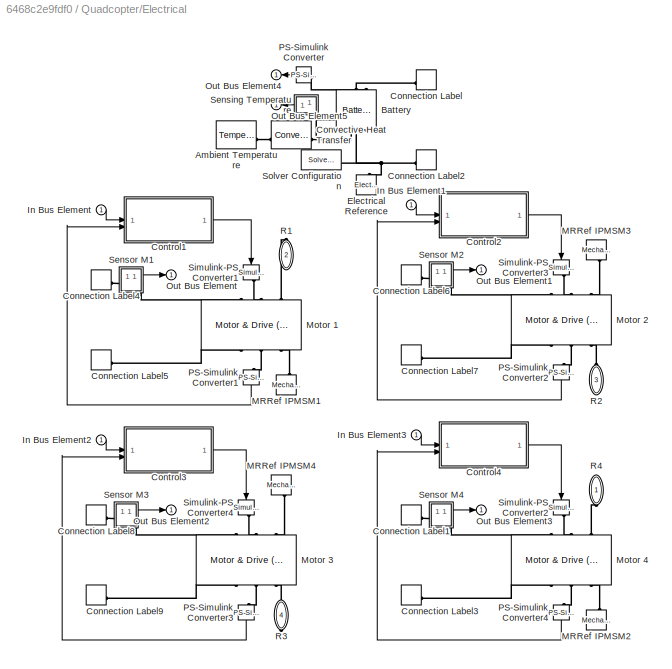
BLOCK [SubSystem] Quadcopter/Electrical
BLOCK [Reference] Quadcopter/Electrical/Ambient Temperature  REF=fl_lib/Thermal/Thermal Sources/Temperature Source
  SourceBlock = fl_lib/Thermal/Thermal Sources/Temperature Source
  SourceType = Temperature Source
BLOCK [Reference] Quadcopter/Electrical/Battery  REF=batteryecm_lib/Battery
  NameLocation = right
  SourceBlock = batteryecm_lib/Battery
  SourceType = Battery
BLOCK [ConnectionLabel] Quadcopter/Electrical/Connection Label
  Label = p
BLOCK [ConnectionLabel] Quadcopter/Electrical/Connection Label1
  Label = p
BLOCK [ConnectionLabel] Quadcopter/Electrical/Connection Label2
  Label = n
BLOCK [ConnectionLabel] Quadcopter/Electrical/Connection Label3
  Label = n
BLOCK [ConnectionLabel] Quadcopter/Electrical/Connection Label4
  Label = p
BLOCK [ConnectionLabel] Quadcopter/Electrical/Connection Label5
  Label = n
BLOCK [ConnectionLabel] Quadcopter/Electrical/Connection Label6
  Label = p
BLOCK [ConnectionLabel] Quadcopter/Electrical/Connection Label7
  Label = n
BLOCK [ConnectionLabel] Quadcopter/Electrical/Connection Label8
  Label = p
BLOCK [ConnectionLabel] Quadcopter/Electrical/Connection Label9
  Label = n
BLOCK [SubSystem] Quadcopter/Electrical/Control1
BLOCK [Sum] Quadcopter/Electrical/Control1/Add
  IconShape = rectangular
  Inputs = +-
BLOCK [Reference] Quadcopter/Electrical/Control1/Control  REF=slpidlib/PID Controller
  SourceBlock = slpidlib/PID Controller
  SourceType = PID 1dof
BLOCK [Mux] Quadcopter/Electrical/Control1/Mux
  DisplayOption = bar
  Inputs = 2
BLOCK [Scope] Quadcopter/Electrical/Control1/Scope
  ActiveDisplayYMaximum = 5183.41577
  ActiveDisplayYMinimum = -575.93509
  DataLoggingVariableName = ScopeData3
  Floating = off
  GraphicalSettings = {"GraphicalSettings":{"LegacySettings":true,"Style":{"AxesScalingProperties":{"ScaleAxesLimitsAtStop":false},"Style":{"AxesColor":"[0 0 0]","ChannelNames":["","",""],"ColorOrder":"[1 0.909803921568627 0.392156862745098;0.149019607843137 0.549019607843137 0.866666666666667;0.96078431372549 0.466666666666667 0.16078431372549;0.286274509803922 0.858823529411765 0.250980392156863;0.752941176470588 0.3...<+610ch>
  LayoutDimensionsString = [3 1]
  MultipleDisplayCache = [{"MaxYLimMag":5183.41577,"MaxYLimReal":5183.41577,"MinYLimMag":0,"MinYLimReal":-575.93509,"PlotAsMagnitudePhase":false,"ShowGrid":true,"ShowLegend":false,"Title":"%<SignalLabel>","YLabel":""},{"MaxYLimMag":10,"MaxYLimReal":4961.92782,"MinYLimMag":0,"MinYLimReal":-675.05326,"PlotAsMagnitudePhase":false,"ShowGrid":true,"ShowLegend":false,"Title":"%<SignalLabel>","YLabel":""},{"MaxYLimMag":10,"MaxYL...<+156ch>
  NumInputPorts = 3
  ScopeFrameLocation = window
  WasSavedAsWebScope = on
  WindowPosition = [488.000000,270.000000,560.000000,420.000000,]
BLOCK [TransferFcn] Quadcopter/Electrical/Control1/Transfer Fcn1
  Denominator = [f_spd 1]
BLOCK [Inport] Quadcopter/Electrical/Control1/meas
  Port = 2
BLOCK [Inport] Quadcopter/Electrical/Control1/ref
BLOCK [Outport] Quadcopter/Electrical/Control1/torque
BLOCK [SubSystem] Quadcopter/Electrical/Control2
BLOCK [Sum] Quadcopter/Electrical/Control2/Add
  IconShape = rectangular
  Inputs = +-
BLOCK [Reference] Quadcopter/Electrical/Control2/Control  REF=slpidlib/PID Controller
  SourceBlock = slpidlib/PID Controller
  SourceType = PID 1dof
BLOCK [Mux] Quadcopter/Electrical/Control2/Mux
  DisplayOption = bar
  Inputs = 2
BLOCK [Scope] Quadcopter/Electrical/Control2/Scope
  ActiveDisplayYMaximum = 107953.94315
  ActiveDisplayYMinimum = -51413.90485
  DataLoggingVariableName = ScopeData3
  Floating = off
  LayoutDimensionsString = [3 1]
  MultipleDisplayCache = [{"MaxYLimMag":107953.94315,"MaxYLimReal":107953.94315,"MinYLimMag":0,"MinYLimReal":-51413.90485,"PlotAsMagnitudePhase":false,"ShowGrid":true,"ShowLegend":false,"Title":"%<SignalLabel>","YLabel":""},{"MaxYLimMag":10,"MaxYLimReal":107627.65905,"MinYLimMag":0,"MinYLimReal":-51377.70293,"PlotAsMagnitudePhase":false,"ShowGrid":true,"ShowLegend":false,"Title":"%<SignalLabel>","YLabel":""},{"MaxYLimMag"...<+164ch>
  NumInputPorts = 3
  ScopeFrameLocation = window
  WasSavedAsWebScope = on
  WindowPosition = [823.000000,167.000000,560.000000,611.000000,]
BLOCK [TransferFcn] Quadcopter/Electrical/Control2/Transfer Fcn1
  Denominator = [f_spd 1]
BLOCK [Inport] Quadcopter/Electrical/Control2/meas
  Port = 2
BLOCK [Inport] Quadcopter/Electrical/Control2/ref
BLOCK [Outport] Quadcopter/Electrical/Control2/torque
BLOCK [SubSystem] Quadcopter/Electrical/Control3
BLOCK [Sum] Quadcopter/Electrical/Control3/Add
  IconShape = rectangular
  Inputs = +-
BLOCK [Reference] Quadcopter/Electrical/Control3/Control  REF=slpidlib/PID Controller
  SourceBlock = slpidlib/PID Controller
  SourceType = PID 1dof
BLOCK [Mux] Quadcopter/Electrical/Control3/Mux
  DisplayOption = bar
  Inputs = 2
BLOCK [Scope] Quadcopter/Electrical/Control3/Scope
  ActiveDisplayYMaximum = 6613.7543
  ActiveDisplayYMinimum = -734.86159
  DataLoggingVariableName = ScopeData3
  Floating = off
  LayoutDimensionsString = [3 1]
  MultipleDisplayCache = [{"MaxYLimMag":6613.7543,"MaxYLimReal":6613.7543,"MinYLimMag":0,"MinYLimReal":-734.86159,"PlotAsMagnitudePhase":false,"ShowGrid":true,"ShowLegend":false,"Title":"%<SignalLabel>","YLabel":""},{"MaxYLimMag":10,"MaxYLimReal":5198.0368,"MinYLimMag":0,"MinYLimReal":-2203.40241,"PlotAsMagnitudePhase":false,"ShowGrid":true,"ShowLegend":false,"Title":"%<SignalLabel>","YLabel":""},{"MaxYLimMag":10,"MaxYLim...<+154ch>
  NumInputPorts = 3
  ScopeFrameLocation = window
  WasSavedAsWebScope = on
  WindowPosition = [823.000000,167.000000,560.000000,611.000000,]
BLOCK [TransferFcn] Quadcopter/Electrical/Control3/Transfer Fcn1
  Denominator = [f_spd 1]
BLOCK [Inport] Quadcopter/Electrical/Control3/meas
  Port = 2
BLOCK [Inport] Quadcopter/Electrical/Control3/ref
BLOCK [Outport] Quadcopter/Electrical/Control3/torque
BLOCK [SubSystem] Quadcopter/Electrical/Control4
BLOCK [Sum] Quadcopter/Electrical/Control4/Add
  IconShape = rectangular
  Inputs = +-
BLOCK [Reference] Quadcopter/Electrical/Control4/Control  REF=slpidlib/PID Controller
  SourceBlock = slpidlib/PID Controller
  SourceType = PID 1dof
BLOCK [Mux] Quadcopter/Electrical/Control4/Mux
  DisplayOption = bar
  Inputs = 2
BLOCK [Scope] Quadcopter/Electrical/Control4/Scope
  ActiveDisplayYMaximum = 7073.87438
  ActiveDisplayYMinimum = 3391.57745
  DataLoggingVariableName = ScopeData3
  Floating = off
  LayoutDimensionsString = [3 1]
  MultipleDisplayCache = [{"MaxYLimMag":7073.87438,"MaxYLimReal":7073.87438,"MinYLimMag":3391.57745,"MinYLimReal":3391.57745,"PlotAsMagnitudePhase":false,"ShowGrid":true,"ShowLegend":false,"Title":"%<SignalLabel>","YLabel":""},{"MaxYLimMag":10,"MaxYLimReal":106620.14856,"MinYLimMag":0,"MinYLimReal":-51474.10919,"PlotAsMagnitudePhase":false,"ShowGrid":true,"ShowLegend":false,"Title":"%<SignalLabel>","YLabel":""},{"MaxYLimM...<+167ch>
  NumInputPorts = 3
  ScopeFrameLocation = window
  WasSavedAsWebScope = on
  WindowPosition = [823.000000,167.000000,560.000000,611.000000,]
BLOCK [TransferFcn] Quadcopter/Electrical/Control4/Transfer Fcn1
  Denominator = [f_spd 1]
BLOCK [Inport] Quadcopter/Electrical/Control4/meas
  Port = 2
BLOCK [Inport] Quadcopter/Electrical/Control4/ref
BLOCK [Outport] Quadcopter/Electrical/Control4/torque
BLOCK [Reference] Quadcopter/Electrical/Convective Heat Transfer  REF=fl_lib/Thermal/Thermal Elements/Convective Heat
Transfer
  SourceBlock = fl_lib/Thermal/Thermal Elements/Convective Heat\nTransfer
  SourceType = Convective Heat\nTransfer
BLOCK [Reference] Quadcopter/Electrical/Electrical Reference  REF=fl_lib/Electrical/Electrical Elements/Electrical Reference
  NameLocation = right
  SourceBlock = fl_lib/Electrical/Electrical Elements/Electrical Reference
  SourceType = Electrical Reference
BLOCK [Inport] Quadcopter/Electrical/In Bus Element
BLOCK [Inport] Quadcopter/Electrical/In Bus Element1
BLOCK [Inport] Quadcopter/Electrical/In Bus Element2
BLOCK [Inport] Quadcopter/Electrical/In Bus Element3
BLOCK [Reference] Quadcopter/Electrical/MRRef IPMSM1  REF=fl_lib/Mechanical/Rotational Elements/Mechanical
Rotational Reference
  NameLocation = right
  SourceBlock = fl_lib/Mechanical/Rotational Elements/Mechanical\nRotational Reference
  SourceType = Mechanical\nRotational Reference
BLOCK [Reference] Quadcopter/Electrical/MRRef IPMSM2  REF=fl_lib/Mechanical/Rotational Elements/Mechanical
Rotational Reference
  NameLocation = right
  SourceBlock = fl_lib/Mechanical/Rotational Elements/Mechanical\nRotational Reference
  SourceType = Mechanical\nRotational Reference
BLOCK [Reference] Quadcopter/Electrical/MRRef IPMSM3  REF=fl_lib/Mechanical/Rotational Elements/Mechanical
Rotational Reference
  NameLocation = left
  SourceBlock = fl_lib/Mechanical/Rotational Elements/Mechanical\nRotational Reference
  SourceType = Mechanical\nRotational Reference
BLOCK [Reference] Quadcopter/Electrical/MRRef IPMSM4  REF=fl_lib/Mechanical/Rotational Elements/Mechanical
Rotational Reference
  NameLocation = left
  SourceBlock = fl_lib/Mechanical/Rotational Elements/Mechanical\nRotational Reference
  SourceType = Mechanical\nRotational Reference
BLOCK [Reference] Quadcopter/Electrical/Motor 1  REF=ee_lib/Electromechanical/Motor & Drive
(System Level)
  NameLocation = left
  SourceBlock = ee_lib/Electromechanical/Motor & Drive\n(System Level)
  SourceType = Motor & Drive\n(System Level)
BLOCK [Reference] Quadcopter/Electrical/Motor 2  REF=ee_lib/Electromechanical/Motor & Drive
(System Level)
  NameLocation = left
  SourceBlock = ee_lib/Electromechanical/Motor & Drive\n(System Level)
  SourceType = Motor & Drive\n(System Level)
BLOCK [Reference] Quadcopter/Electrical/Motor 3  REF=ee_lib/Electromechanical/Motor & Drive
(System Level)
  NameLocation = left
  SourceBlock = ee_lib/Electromechanical/Motor & Drive\n(System Level)
  SourceType = Motor & Drive\n(System Level)
BLOCK [Reference] Quadcopter/Electrical/Motor 4  REF=ee_lib/Electromechanical/Motor & Drive
(System Level)
  NameLocation = left
  SourceBlock = ee_lib/Electromechanical/Motor & Drive\n(System Level)
  SourceType = Motor & Drive\n(System Level)
BLOCK [Outport] Quadcopter/Electrical/Out Bus Element
BLOCK [Outport] Quadcopter/Electrical/Out Bus Element1
BLOCK [Outport] Quadcopter/Electrical/Out Bus Element2
BLOCK [Outport] Quadcopter/Electrical/Out Bus Element3
BLOCK [Outport] Quadcopter/Electrical/Out Bus Element4
BLOCK [Outport] Quadcopter/Electrical/Out Bus Element5
BLOCK [Reference] Quadcopter/Electrical/PS-Simulink Converter  REF=nesl_utility/PS-Simulink
Converter
  SourceBlock = nesl_utility/PS-Simulink\nConverter
  SourceType = PS-Simulink\nConverter
BLOCK [Reference] Quadcopter/Electrical/PS-Simulink Converter1  REF=nesl_utility/PS-Simulink
Converter
  NameLocation = left
  SourceBlock = nesl_utility/PS-Simulink\nConverter
  SourceType = PS-Simulink\nConverter
BLOCK [Reference] Quadcopter/Electrical/PS-Simulink Converter2  REF=nesl_utility/PS-Simulink
Converter
  NameLocation = left
  SourceBlock = nesl_utility/PS-Simulink\nConverter
  SourceType = PS-Simulink\nConverter
BLOCK [Reference] Quadcopter/Electrical/PS-Simulink Converter3  REF=nesl_utility/PS-Simulink
Converter
  NameLocation = left
  SourceBlock = nesl_utility/PS-Simulink\nConverter
  SourceType = PS-Simulink\nConverter
BLOCK [Reference] Quadcopter/Electrical/PS-Simulink Converter4  REF=nesl_utility/PS-Simulink
Converter
  NameLocation = left
  SourceBlock = nesl_utility/PS-Simulink\nConverter
  SourceType = PS-Simulink\nConverter
BLOCK [PMIOPort] Quadcopter/Electrical/R1
  NameLocation = right
  Port = 2
  Side = Right
BLOCK [PMIOPort] Quadcopter/Electrical/R2
  NameLocation = left
  Port = 3
  Side = Left
BLOCK [PMIOPort] Quadcopter/Electrical/R3
  NameLocation = left
  Port = 4
  Side = Right
BLOCK [PMIOPort] Quadcopter/Electrical/R4
  NameLocation = right
  Side = Left
BLOCK [SubSystem] Quadcopter/Electrical/Sensing Temperature
  NameLocation = left
BLOCK [PMIOPort] Quadcopter/Electrical/Sensing Temperature/A
  Side = Left
BLOCK [Reference] Quadcopter/Electrical/Sensing Temperature/PS-Simulink Converter  REF=nesl_utility/PS-Simulink
Converter
  SourceBlock = nesl_utility/PS-Simulink\nConverter
  SourceType = PS-Simulink\nConverter
BLOCK [Outport] Quadcopter/Electrical/Sensing Temperature/T
BLOCK [Reference] Quadcopter/Electrical/Sensing Temperature/Temperature Sensor  REF=fl_lib/Thermal/Thermal Sensors/Temperature Sensor
  SourceBlock = fl_lib/Thermal/Thermal Sensors/Temperature Sensor
  SourceType = Temperature Sensor
BLOCK [Reference] Quadcopter/Electrical/Sensing Temperature/Thermal Reference  REF=fl_lib/Thermal/Thermal Elements/Thermal Reference
  SourceBlock = fl_lib/Thermal/Thermal Elements/Thermal Reference
  SourceType = Thermal Reference
BLOCK [SubSystem] Quadcopter/Electrical/Sensor M1
BLOCK [PMIOPort] Quadcopter/Electrical/Sensor M1/+
  Side = Left
BLOCK [PMIOPort] Quadcopter/Electrical/Sensor M1/-
  Port = 2
  Side = Right
BLOCK [Reference] Quadcopter/Electrical/Sensor M1/Current Sensor  REF=fl_lib/Electrical/Electrical Sensors/Current Sensor
  SourceBlock = fl_lib/Electrical/Electrical Sensors/Current Sensor
  SourceType = Current Sensor
BLOCK [Reference] Quadcopter/Electrical/Sensor M1/PS-Simulink Converter3  REF=nesl_utility/PS-Simulink
Converter
  SourceBlock = nesl_utility/PS-Simulink\nConverter
  SourceType = PS-Simulink\nConverter
BLOCK [Outport] Quadcopter/Electrical/Sensor M1/i
BLOCK [SubSystem] Quadcopter/Electrical/Sensor M2
BLOCK [PMIOPort] Quadcopter/Electrical/Sensor M2/+
  Side = Left
BLOCK [PMIOPort] Quadcopter/Electrical/Sensor M2/-
  Port = 2
  Side = Right
BLOCK [Reference] Quadcopter/Electrical/Sensor M2/Current Sensor  REF=fl_lib/Electrical/Electrical Sensors/Current Sensor
  SourceBlock = fl_lib/Electrical/Electrical Sensors/Current Sensor
  SourceType = Current Sensor
BLOCK [Reference] Quadcopter/Electrical/Sensor M2/PS-Simulink Converter3  REF=nesl_utility/PS-Simulink
Converter
  SourceBlock = nesl_utility/PS-Simulink\nConverter
  SourceType = PS-Simulink\nConverter
BLOCK [Outport] Quadcopter/Electrical/Sensor M2/i
BLOCK [SubSystem] Quadcopter/Electrical/Sensor M3
BLOCK [PMIOPort] Quadcopter/Electrical/Sensor M3/+
  Side = Left
BLOCK [PMIOPort] Quadcopter/Electrical/Sensor M3/-
  Port = 2
  Side = Right
BLOCK [Reference] Quadcopter/Electrical/Sensor M3/Current Sensor  REF=fl_lib/Electrical/Electrical Sensors/Current Sensor
  SourceBlock = fl_lib/Electrical/Electrical Sensors/Current Sensor
  SourceType = Current Sensor
BLOCK [Reference] Quadcopter/Electrical/Sensor M3/PS-Simulink Converter3  REF=nesl_utility/PS-Simulink
Converter
  SourceBlock = nesl_utility/PS-Simulink\nConverter
  SourceType = PS-Simulink\nConverter
BLOCK [Outport] Quadcopter/Electrical/Sensor M3/i
BLOCK [SubSystem] Quadcopter/Electrical/Sensor M4
BLOCK [PMIOPort] Quadcopter/Electrical/Sensor M4/+
  Side = Left
BLOCK [PMIOPort] Quadcopter/Electrical/Sensor M4/-
  Port = 2
  Side = Right
BLOCK [Reference] Quadcopter/Electrical/Sensor M4/Current Sensor  REF=fl_lib/Electrical/Electrical Sensors/Current Sensor
  SourceBlock = fl_lib/Electrical/Electrical Sensors/Current Sensor
  SourceType = Current Sensor
BLOCK [Reference] Quadcopter/Electrical/Sensor M4/PS-Simulink Converter3  REF=nesl_utility/PS-Simulink
Converter
  SourceBlock = nesl_utility/PS-Simulink\nConverter
  SourceType = PS-Simulink\nConverter
BLOCK [Outport] Quadcopter/Electrical/Sensor M4/i
BLOCK [Reference] Quadcopter/Electrical/Simulink-PS Converter1  REF=nesl_utility/Simulink-PS
Converter
  NameLocation = left
  SourceBlock = nesl_utility/Simulink-PS\nConverter
  SourceType = Simulink-PS\nConverter
BLOCK [Reference] Quadcopter/Electrical/Simulink-PS Converter2  REF=nesl_utility/Simulink-PS
Converter
  NameLocation = left
  SourceBlock = nesl_utility/Simulink-PS\nConverter
  SourceType = Simulink-PS\nConverter
BLOCK [Reference] Quadcopter/Electrical/Simulink-PS Converter3  REF=nesl_utility/Simulink-PS
Converter
  NameLocation = left
  SourceBlock = nesl_utility/Simulink-PS\nConverter
  SourceType = Simulink-PS\nConverter
BLOCK [Reference] Quadcopter/Electrical/Simulink-PS Converter4  REF=nesl_utility/Simulink-PS
Converter
  NameLocation = left
  SourceBlock = nesl_utility/Simulink-PS\nConverter
  SourceType = Simulink-PS\nConverter
BLOCK [Reference] Quadcopter/Electrical/Solver Configuration  REF=nesl_utility/Solver
Configuration
  SourceBlock = nesl_utility/Solver\nConfiguration
  SourceType = Solver\nConfiguration
BLOCK [Reference] Quadcopter/Gravity  REF=sm_lib/Utilities/Mechanism
Configuration
  SourceBlock = sm_lib/Utilities/Mechanism\nConfiguration
  SourceType = Mechanism\nConfiguration
BLOCK [SubSystem] Quadcopter/Ground
BLOCK [PMIOPort] Quadcopter/Ground/G
  NameLocation = left
  Port = 2
  Side = Left
BLOCK [SubSystem] Quadcopter/Ground/Ground
BLOCK [Reference] Quadcopter/Ground/Ground/Ground  REF=sm_lib/Body Elements/Brick Solid
  SourceBlock = sm_lib/Body Elements/Brick Solid
  SourceType = Brick Solid
BLOCK [PMIOPort] Quadcopter/Ground/Ground/Lp
  Side = Right
BLOCK [Reference] Quadcopter/Ground/Ground/Transform Ground Center  REF=sm_lib/Frames and
Transforms/Rigid
Transform
  NameLocation = right
  SourceBlock = sm_lib/Frames and\nTransforms/Rigid\nTransform
  SourceType = Rigid\nTransform
BLOCK [PMIOPort] Quadcopter/Ground/Ground/W
  Port = 2
  Side = Left
BLOCK [Reference] Quadcopter/Ground/Infinite Plane  REF=sm_lib/Curves and Surfaces/Infinite Plane
  SourceBlock = sm_lib/Curves and Surfaces/Infinite Plane
  SourceType = Infinite Plane
BLOCK [Reference] Quadcopter/Ground/Launch Insignia  REF=sm_lib/Body Elements/Extruded Solid
  SourceBlock = sm_lib/Body Elements/Extruded Solid
  SourceType = Extruded Solid
BLOCK [Reference] Quadcopter/Ground/Launch Ring  REF=sm_lib/Body Elements/Revolved Solid
  SourceBlock = sm_lib/Body Elements/Revolved Solid
  SourceType = Revolved Solid
BLOCK [Reference] Quadcopter/Ground/Target Inner Ring  REF=sm_lib/Body Elements/Revolved Solid
  SourceBlock = sm_lib/Body Elements/Revolved Solid
  SourceType = Revolved Solid
BLOCK [Reference] Quadcopter/Ground/Target Middle Ring  REF=sm_lib/Body Elements/Revolved Solid
  SourceBlock = sm_lib/Body Elements/Revolved Solid
  SourceType = Revolved Solid
BLOCK [Reference] Quadcopter/Ground/Target Outer Ring  REF=sm_lib/Body Elements/Revolved Solid
  SourceBlock = sm_lib/Body Elements/Revolved Solid
  SourceType = Revolved Solid
BLOCK [SubSystem] Quadcopter/Ground/Trajectory
BLOCK [Reference] Quadcopter/Ground/Trajectory/Spline  REF=sm_lib/Curves and Surfaces/Spline
  SourceBlock = sm_lib/Curves and Surfaces/Spline
  SourceType = Spline
BLOCK [PMIOPort] Quadcopter/Ground/Trajectory/W
  Side = Right
BLOCK [Reference] Quadcopter/Ground/Trajectory/Waypoints  REF=sm_lib/Curves and Surfaces/Point Cloud
  SourceBlock = sm_lib/Curves and Surfaces/Point Cloud
  SourceType = Point Cloud
BLOCK [Reference] Quadcopter/Ground/Transform Launch  REF=sm_lib/Frames and
Transforms/Rigid
Transform
  SourceBlock = sm_lib/Frames and\nTransforms/Rigid\nTransform
  SourceType = Rigid\nTransform
BLOCK [Reference] Quadcopter/Ground/Transform Target  REF=sm_lib/Frames and
Transforms/Rigid
Transform
  SourceBlock = sm_lib/Frames and\nTransforms/Rigid\nTransform
  SourceType = Rigid\nTransform
BLOCK [PMIOPort] Quadcopter/Ground/W
  NameLocation = right
  Side = Right
BLOCK [Inport] Quadcopter/In Bus Element1
  Port = 2
BLOCK [Inport] Quadcopter/In Bus Element3
BLOCK [SubSystem] Quadcopter/Load
BLOCK [Reference] Quadcopter/Load/Contact Force Ground  REF=sm_lib/Forces and
Torques/Spatial
Contact Force
  NameLocation = left
  SourceBlock = sm_lib/Forces and\nTorques/Spatial\nContact Force
  SourceType = Spatial\nContact Force
BLOCK [Reference] Quadcopter/Load/Disengage Logic  REF=quadcopter_library/Disengage Logic  (lib defined in slx_56214d765e25, slx_704f8fc3f527, +4 more)
  SourceBlock = quadcopter_library/Disengage Logic
BLOCK [PMIOPort] Quadcopter/Load/F
  NameLocation = right
  Side = Left
BLOCK [PMIOPort] Quadcopter/Load/G
  NameLocation = right
  Port = 2
  Side = Right
BLOCK [Reference] Quadcopter/Load/Package  REF=quadcopter_library/Package  (lib defined in slx_56214d765e25, slx_704f8fc3f527, +4 more)
  NameLocation = right
  SourceBlock = quadcopter_library/Package
BLOCK [Reference] Quadcopter/Load/Weld Joint  REF=sm_lib/Joints/Weld Joint
  NameLocation = right
  SourceBlock = sm_lib/Joints/Weld Joint
  SourceType = Weld Joint
BLOCK [Outport] Quadcopter/Load/m
BLOCK [Outport] Quadcopter/Out Bus Element
  NameLocation = top
BLOCK [Outport] Quadcopter/Out Bus Element1
BLOCK [Outport] Quadcopter/Out Bus Element2
  NameLocation = top
BLOCK [Outport] Quadcopter/Out Bus Element3
  NameLocation = top
BLOCK [Outport] Quadcopter/Out Bus Element4
  NameLocation = top
BLOCK [Outport] Quadcopter/Out Bus Element5
  NameLocation = top
BLOCK [Outport] Quadcopter/Out Bus Element6
  NameLocation = top
BLOCK [Reference] Quadcopter/Propeller 1  REF=quadcopter_library/Propeller  (lib defined in slx_56214d765e25, slx_704f8fc3f527, +4 more)
  SourceBlock = quadcopter_library/Propeller
BLOCK [Reference] Quadcopter/Propeller 2  REF=quadcopter_library/Propeller  (lib defined in slx_56214d765e25, slx_704f8fc3f527, +4 more)
  SourceBlock = quadcopter_library/Propeller
BLOCK [Reference] Quadcopter/Propeller 3  REF=quadcopter_library/Propeller  (lib defined in slx_56214d765e25, slx_704f8fc3f527, +4 more)
  SourceBlock = quadcopter_library/Propeller
BLOCK [Reference] Quadcopter/Propeller 4  REF=quadcopter_library/Propeller  (lib defined in slx_56214d765e25, slx_704f8fc3f527, +4 more)
  SourceBlock = quadcopter_library/Propeller
BLOCK [SubSystem] Quadcopter/Wind and Drag
  NameLocation = top
BLOCK [SubSystem] Quadcopter/Wind and Drag/Aerodynamic Drag
BLOCK [SubSystem] Quadcopter/Wind and Drag/Aerodynamic Drag/Body to World
BLOCK [Constant] Quadcopter/Wind and Drag/Aerodynamic Drag/Body to World/Constant1
  Value = area_side
BLOCK [Constant] Quadcopter/Wind and Drag/Aerodynamic Drag/Body to World/Constant2
  Value = drag_side
BLOCK [Constant] Quadcopter/Wind and Drag/Aerodynamic Drag/Body to World/Constant3
  Value = drag_front
BLOCK [Constant] Quadcopter/Wind and Drag/Aerodynamic Drag/Body to World/Constant5
  Value = area_front
BLOCK [Trigonometry] Quadcopter/Wind and Drag/Aerodynamic Drag/Body to World/Cos2
  Operator = cos
BLOCK [Gain] Quadcopter/Wind and Drag/Aerodynamic Drag/Body to World/Gain1
  Gain = 2
BLOCK [Gain] Quadcopter/Wind and Drag/Aerodynamic Drag/Body to World/Gain2
  Gain = 0.5
BLOCK [Gain] Quadcopter/Wind and Drag/Aerodynamic Drag/Body to World/Gain3
  Gain = 0.5
BLOCK [Gain] Quadcopter/Wind and Drag/Aerodynamic Drag/Body to World/Gain4
  Gain = 0.5
BLOCK [Gain] Quadcopter/Wind and Drag/Aerodynamic Drag/Body to World/Gain5
  Gain = 0.5
BLOCK [Product] Quadcopter/Wind and Drag/Aerodynamic Drag/Body to World/Product1
BLOCK [Product] Quadcopter/Wind and Drag/Aerodynamic Drag/Body to World/Product2
BLOCK [Sum] Quadcopter/Wind and Drag/Aerodynamic Drag/Body to World/Subtract1
  IconShape = rectangular
  Inputs = +-
BLOCK [Sum] Quadcopter/Wind and Drag/Aerodynamic Drag/Body to World/Subtract2
  IconShape = rectangular
  Inputs = +-
BLOCK [Sum] Quadcopter/Wind and Drag/Aerodynamic Drag/Body to World/Sum
  Inputs = |++
BLOCK [Sum] Quadcopter/Wind and Drag/Aerodynamic Drag/Body to World/Sum1
  Inputs = |++
BLOCK [Sum] Quadcopter/Wind and Drag/Aerodynamic Drag/Body to World/Sum2
  Inputs = |++
BLOCK [Sum] Quadcopter/Wind and Drag/Aerodynamic Drag/Body to World/Sum3
  Inputs = |+-
BLOCK [Sum] Quadcopter/Wind and Drag/Aerodynamic Drag/Body to World/Sum4
  Inputs = |++
BLOCK [Sum] Quadcopter/Wind and Drag/Aerodynamic Drag/Body to World/Sum5
  Inputs = |+-
BLOCK [Outport] Quadcopter/Wind and Drag/Aerodynamic Drag/Body to World/areaX
BLOCK [Outport] Quadcopter/Wind and Drag/Aerodynamic Drag/Body to World/areaY
  Port = 3
BLOCK [Outport] Quadcopter/Wind and Drag/Aerodynamic Drag/Body to World/dragX
  Port = 2
BLOCK [Outport] Quadcopter/Wind and Drag/Aerodynamic Drag/Body to World/dragY
  Port = 4
BLOCK [Inport] Quadcopter/Wind and Drag/Aerodynamic Drag/Body to World/yaw
BLOCK [Mux] Quadcopter/Wind and Drag/Aerodynamic Drag/Mux4
  DisplayOption = bar
  Inputs = 3
BLOCK [Mux] Quadcopter/Wind and Drag/Aerodynamic Drag/Mux5
  DisplayOption = bar
  Inputs = 3
BLOCK [SubSystem] Quadcopter/Wind and Drag/Aerodynamic Drag/drag force X
BLOCK [Inport] Quadcopter/Wind and Drag/Aerodynamic Drag/drag force X/Cd
  Port = 2
BLOCK [Constant] Quadcopter/Wind and Drag/Aerodynamic Drag/drag force X/Constant
  Value = rho_air/2
BLOCK [Gain] Quadcopter/Wind and Drag/Aerodynamic Drag/drag force X/Gain
  Gain = -1
BLOCK [Product] Quadcopter/Wind and Drag/Aerodynamic Drag/drag force X/Product
  Inputs = 5
BLOCK [Signum] Quadcopter/Wind and Drag/Aerodynamic Drag/drag force X/Sign
  NameLocation = top
  ZeroCross = off
BLOCK [Math] Quadcopter/Wind and Drag/Aerodynamic Drag/drag force X/Square
  Operator = square
BLOCK [Inport] Quadcopter/Wind and Drag/Aerodynamic Drag/drag force X/area
BLOCK [Outport] Quadcopter/Wind and Drag/Aerodynamic Drag/drag force X/f
BLOCK [Inport] Quadcopter/Wind and Drag/Aerodynamic Drag/drag force X/v
  Port = 3
BLOCK [SubSystem] Quadcopter/Wind and Drag/Aerodynamic Drag/drag force Y
BLOCK [Inport] Quadcopter/Wind and Drag/Aerodynamic Drag/drag force Y/Cd
  Port = 2
BLOCK [Constant] Quadcopter/Wind and Drag/Aerodynamic Drag/drag force Y/Constant
  Value = rho_air/2
BLOCK [Gain] Quadcopter/Wind and Drag/Aerodynamic Drag/drag force Y/Gain
  Gain = -1
BLOCK [Product] Quadcopter/Wind and Drag/Aerodynamic Drag/drag force Y/Product
  Inputs = 5
BLOCK [Signum] Quadcopter/Wind and Drag/Aerodynamic Drag/drag force Y/Sign
  NameLocation = top
  ZeroCross = off
BLOCK [Math] Quadcopter/Wind and Drag/Aerodynamic Drag/drag force Y/Square
  Operator = square
BLOCK [Inport] Quadcopter/Wind and Drag/Aerodynamic Drag/drag force Y/area
BLOCK [Outport] Quadcopter/Wind and Drag/Aerodynamic Drag/drag force Y/f
BLOCK [Inport] Quadcopter/Wind and Drag/Aerodynamic Drag/drag force Y/v
  Port = 3
BLOCK [SubSystem] Quadcopter/Wind and Drag/Aerodynamic Drag/drag force Z
BLOCK [Constant] Quadcopter/Wind and Drag/Aerodynamic Drag/drag force Z/Constant
  Value = rho_air/2
BLOCK [Constant] Quadcopter/Wind and Drag/Aerodynamic Drag/drag force Z/Constant1
  Value = area_values.XY
BLOCK [Constant] Quadcopter/Wind and Drag/Aerodynamic Drag/drag force Z/Constant2
  Value = drag_coeff.Cd_Z
BLOCK [Gain] Quadcopter/Wind and Drag/Aerodynamic Drag/drag force Z/Gain
  Gain = -1
BLOCK [Product] Quadcopter/Wind and Drag/Aerodynamic Drag/drag force Z/Product
  Inputs = 5
BLOCK [Signum] Quadcopter/Wind and Drag/Aerodynamic Drag/drag force Z/Sign
  NameLocation = top
  ZeroCross = off
BLOCK [Math] Quadcopter/Wind and Drag/Aerodynamic Drag/drag force Z/Square
  Operator = square
BLOCK [Outport] Quadcopter/Wind and Drag/Aerodynamic Drag/drag force Z/f
BLOCK [Inport] Quadcopter/Wind and Drag/Aerodynamic Drag/drag force Z/vz
BLOCK [SubSystem] Quadcopter/Wind and Drag/Aerodynamic Drag/drag moment pitch
BLOCK [Constant] Quadcopter/Wind and Drag/Aerodynamic Drag/drag moment pitch/Constant
  Value = rho_air/2
BLOCK [Constant] Quadcopter/Wind and Drag/Aerodynamic Drag/drag moment pitch/Constant1
  Value = area_values.Pitch
BLOCK [Constant] Quadcopter/Wind and Drag/Aerodynamic Drag/drag moment pitch/Constant2
  Value = drag_coeff.Pitch
BLOCK [Gain] Quadcopter/Wind and Drag/Aerodynamic Drag/drag moment pitch/Gain
  Gain = -1
BLOCK [Product] Quadcopter/Wind and Drag/Aerodynamic Drag/drag moment pitch/Product
  Inputs = 5
BLOCK [Signum] Quadcopter/Wind and Drag/Aerodynamic Drag/drag moment pitch/Sign
  NameLocation = top
  ZeroCross = off
BLOCK [Math] Quadcopter/Wind and Drag/Aerodynamic Drag/drag moment pitch/Square
  Operator = square
BLOCK [Outport] Quadcopter/Wind and Drag/Aerodynamic Drag/drag moment pitch/f
BLOCK [Inport] Quadcopter/Wind and Drag/Aerodynamic Drag/drag moment pitch/v
BLOCK [SubSystem] Quadcopter/Wind and Drag/Aerodynamic Drag/drag moment roll
BLOCK [Constant] Quadcopter/Wind and Drag/Aerodynamic Drag/drag moment roll/Constant
  Value = rho_air/2
BLOCK [Constant] Quadcopter/Wind and Drag/Aerodynamic Drag/drag moment roll/Constant1
  Value = area_values.Roll
BLOCK [Constant] Quadcopter/Wind and Drag/Aerodynamic Drag/drag moment roll/Constant2
  Value = drag_coeff.Roll
BLOCK [Gain] Quadcopter/Wind and Drag/Aerodynamic Drag/drag moment roll/Gain
  Gain = -1
BLOCK [Product] Quadcopter/Wind and Drag/Aerodynamic Drag/drag moment roll/Product
  Inputs = 5
BLOCK [Signum] Quadcopter/Wind and Drag/Aerodynamic Drag/drag moment roll/Sign
  NameLocation = top
  ZeroCross = off
BLOCK [Math] Quadcopter/Wind and Drag/Aerodynamic Drag/drag moment roll/Square
  Operator = square
BLOCK [Outport] Quadcopter/Wind and Drag/Aerodynamic Drag/drag moment roll/f
BLOCK [Inport] Quadcopter/Wind and Drag/Aerodynamic Drag/drag moment roll/v
BLOCK [SubSystem] Quadcopter/Wind and Drag/Aerodynamic Drag/drag moment yaw
BLOCK [Constant] Quadcopter/Wind and Drag/Aerodynamic Drag/drag moment yaw/Constant
  Value = rho_air/2
BLOCK [Constant] Quadcopter/Wind and Drag/Aerodynamic Drag/drag moment yaw/Constant1
  Value = area_values.Yaw
BLOCK [Constant] Quadcopter/Wind and Drag/Aerodynamic Drag/drag moment yaw/Constant2
  Value = drag_coeff.Yaw
BLOCK [Gain] Quadcopter/Wind and Drag/Aerodynamic Drag/drag moment yaw/Gain
  Gain = -1
BLOCK [Product] Quadcopter/Wind and Drag/Aerodynamic Drag/drag moment yaw/Product
  Inputs = 5
BLOCK [Signum] Quadcopter/Wind and Drag/Aerodynamic Drag/drag moment yaw/Sign
  NameLocation = top
  ZeroCross = off
BLOCK [Math] Quadcopter/Wind and Drag/Aerodynamic Drag/drag moment yaw/Square
  Operator = square
BLOCK [Outport] Quadcopter/Wind and Drag/Aerodynamic Drag/drag moment yaw/f
BLOCK [Inport] Quadcopter/Wind and Drag/Aerodynamic Drag/drag moment yaw/v
BLOCK [Outport] Quadcopter/Wind and Drag/Aerodynamic Drag/f
BLOCK [Inport] Quadcopter/Wind and Drag/Aerodynamic Drag/nPitch
  Port = 5
BLOCK [Inport] Quadcopter/Wind and Drag/Aerodynamic Drag/nRoll
  Port = 4
BLOCK [Inport] Quadcopter/Wind and Drag/Aerodynamic Drag/nYaw
  Port = 6
BLOCK [Outport] Quadcopter/Wind and Drag/Aerodynamic Drag/t
  Port = 2
BLOCK [Inport] Quadcopter/Wind and Drag/Aerodynamic Drag/vxRel
BLOCK [Inport] Quadcopter/Wind and Drag/Aerodynamic Drag/vyRel
  Port = 2
BLOCK [Inport] Quadcopter/Wind and Drag/Aerodynamic Drag/vzRel
  Port = 3
BLOCK [Inport] Quadcopter/Wind and Drag/Aerodynamic Drag/yaw
  Port = 7
BLOCK [Reference] Quadcopter/Wind and Drag/Compare To Zero  REF=simulink/Logic and Bit
Operations/Compare
To Zero
  SourceBlock = simulink/Logic and Bit\nOperations/Compare\nTo Zero
  SourceType = Compare To Zero
BLOCK [Reference] Quadcopter/Wind and Drag/Compare To Zero1  REF=simulink/Logic and Bit
Operations/Compare
To Zero
  SourceBlock = simulink/Logic and Bit\nOperations/Compare\nTo Zero
  SourceType = Compare To Zero
BLOCK [Reference] Quadcopter/Wind and Drag/External Force No Load  REF=sm_lib/Forces and
Torques/External Force
and Torque
  SourceBlock = sm_lib/Forces and\nTorques/External Force\nand Torque
  SourceType = External Force\nand Torque
BLOCK [Reference] Quadcopter/Wind and Drag/External Force With Load  REF=sm_lib/Forces and
Torques/External Force
and Torque
  SourceBlock = sm_lib/Forces and\nTorques/External Force\nand Torque
  SourceType = External Force\nand Torque
BLOCK [Inport] Quadcopter/Wind and Drag/In Bus Element
  Port = 2
BLOCK [Inport] Quadcopter/Wind and Drag/In Bus Element1
  Port = 3
BLOCK [Inport] Quadcopter/Wind and Drag/In Bus Element10
BLOCK [Inport] Quadcopter/Wind and Drag/In Bus Element2
  Port = 3
BLOCK [Inport] Quadcopter/Wind and Drag/In Bus Element3
  Port = 3
BLOCK [Inport] Quadcopter/Wind and Drag/In Bus Element4
  Port = 3
BLOCK [Inport] Quadcopter/Wind and Drag/In Bus Element5
  Port = 3
BLOCK [Inport] Quadcopter/Wind and Drag/In Bus Element6
  Port = 3
BLOCK [Inport] Quadcopter/Wind and Drag/In Bus Element7
  Port = 3
BLOCK [Inport] Quadcopter/Wind and Drag/In Bus Element8
BLOCK [Inport] Quadcopter/Wind and Drag/In Bus Element9
BLOCK [Product] Quadcopter/Wind and Drag/Product
BLOCK [Product] Quadcopter/Wind and Drag/Product1
BLOCK [Product] Quadcopter/Wind and Drag/Product2
BLOCK [Product] Quadcopter/Wind and Drag/Product3
BLOCK [PMIOPort] Quadcopter/Wind and Drag/Ref
  Side = Right
BLOCK [Scope] Quadcopter/Wind and Drag/Scope
  ActiveDisplayYMaximum = 3.52459
  ActiveDisplayYMinimum = -0.40984
  DataLoggingVariableName = ScopeData1
  Floating = off
  GraphicalSettings = {"GraphicalSettings":{"LegacySettings":true,"Style":{"AxesScalingProperties":{"ScaleAxesLimitsAtStop":false},"Style":{"AxesColor":"[0 0 0]","ChannelNames":[""],"ColorOrder":"[1 0.909803921568627 0.392156862745098;0.149019607843137 0.549019607843137 0.866666666666667;0.96078431372549 0.466666666666667 0.16078431372549;0.286274509803922 0.858823529411765 0.250980392156863;0.752941176470588 0.3607843...<+488ch>
  MultipleDisplayCache = [{"MaxYLimMag":3.52459,"MaxYLimReal":3.52459,"MinYLimMag":0,"MinYLimReal":-0.40984,"PlotAsMagnitudePhase":false,"ShowGrid":true,"ShowLegend":false,"Title":"%<SignalLabel>","YLabel":""}]
  NumInputPorts = 1
  ScopeFrameLocation = window
  WasSavedAsWebScope = on
  WindowPosition = [823.000000,358.000000,560.000000,420.000000,]
BLOCK [Reference] Quadcopter/Wind and Drag/Simulink-PS Converter  REF=nesl_utility/Simulink-PS
Converter
  SourceBlock = nesl_utility/Simulink-PS\nConverter
  SourceType = Simulink-PS\nConverter
BLOCK [Reference] Quadcopter/Wind and Drag/Simulink-PS Converter1  REF=nesl_utility/Simulink-PS
Converter
  SourceBlock = nesl_utility/Simulink-PS\nConverter
  SourceType = Simulink-PS\nConverter
BLOCK [Reference] Quadcopter/Wind and Drag/Simulink-PS Converter2  REF=nesl_utility/Simulink-PS
Converter
  SourceBlock = nesl_utility/Simulink-PS\nConverter
  SourceType = Simulink-PS\nConverter
BLOCK [Reference] Quadcopter/Wind and Drag/Simulink-PS Converter3  REF=nesl_utility/Simulink-PS
Converter
  SourceBlock = nesl_utility/Simulink-PS\nConverter
  SourceType = Simulink-PS\nConverter
BLOCK [Sum] Quadcopter/Wind and Drag/Subtract
  IconShape = rectangular
  Inputs = +-
BLOCK [Sum] Quadcopter/Wind and Drag/Subtract1
  IconShape = rectangular
  Inputs = +-
BLOCK [Sum] Quadcopter/Wind and Drag/Subtract2
  IconShape = rectangular
  Inputs = +-
BLOCK [Reference] Quadcopter/Wind and Drag/Transform Center of Pressure No Load  REF=sm_lib/Frames and
Transforms/Rigid
Transform
  NameLocation = right
  SourceBlock = sm_lib/Frames and\nTransforms/Rigid\nTransform
  SourceType = Rigid\nTransform
BLOCK [Reference] Quadcopter/Wind and Drag/Transform Center of Pressure With Load  REF=sm_lib/Frames and
Transforms/Rigid
Transform
  NameLocation = right
  SourceBlock = sm_lib/Frames and\nTransforms/Rigid\nTransform
  SourceType = Rigid\nTransform
BLOCK [Reference] Quadcopter/World Frame  REF=sm_lib/Frames and
Transforms/World Frame
  SourceBlock = sm_lib/Frames and\nTransforms/World Frame
  SourceType = World Frame
BLOCK [SubSystem] Reference
BLOCK [Clock] Reference/Clock1
BLOCK [SubSystem] Reference/Derivative
BLOCK [Demux] Reference/Derivative/Demux
  Outputs = 3
BLOCK [Derivative] Reference/Derivative/Derivative
BLOCK [Derivative] Reference/Derivative/Derivative1
BLOCK [Derivative] Reference/Derivative/Derivative2
BLOCK [Mux] Reference/Derivative/Mux1
  DisplayOption = bar
  Inputs = 3
BLOCK [Inport] Reference/Derivative/des xyz
BLOCK [Outport] Reference/Derivative/des_vel
BLOCK [SubSystem] Reference/Interpolate Spline Points
BLOCK [Constant] Reference/Interpolate Spline Points/Constant
  Value = timespot_spl(end)
BLOCK [Inport] Reference/Interpolate Spline Points/In1
BLOCK [Lookup_n-D] Reference/Interpolate Spline Points/Lookup Linear Interpolation1
  BreakpointsForDimension1 = timespot_spl
  ExtrapMethod = Clip
  InputPortMap = u0
  InternalRulePriority = Speed
  InterpMethod = Akima spline
  NumberOfTableDimensions = 1
  RndMeth = Simplest
  Table = spline_yaw
BLOCK [Lookup_n-D] Reference/Interpolate Spline Points/Lookup Linear Interpolation4
  BreakpointsForDimension1 = timespot_spl
  ExtrapMethod = Clip
  InputPortMap = u0
  InternalRulePriority = Speed
  InterpMethod = Cubic spline
  NumberOfTableDimensions = 1
  RndMeth = Simplest
  Table = spline_data(:,1)
BLOCK [Lookup_n-D] Reference/Interpolate Spline Points/Lookup Linear Interpolation5
  BreakpointsForDimension1 = timespot_spl
  ExtrapMethod = Clip
  InputPortMap = u0
  InternalRulePriority = Speed
  InterpMethod = Cubic spline
  NumberOfTableDimensions = 1
  RndMeth = Simplest
  Table = spline_data(:,2)
BLOCK [Lookup_n-D] Reference/Interpolate Spline Points/Lookup Linear Interpolation6
  BreakpointsForDimension1 = timespot_spl
  ExtrapMethod = Clip
  InputPortMap = u0
  InternalRulePriority = Speed
  InterpMethod = Cubic spline
  NumberOfTableDimensions = 1
  RndMeth = Simplest
  Table = spline_data(:,3)
BLOCK [MinMax] Reference/Interpolate Spline Points/Min
  Inputs = 2
BLOCK [Mux] Reference/Interpolate Spline Points/Mux2
  DisplayOption = bar
  Inputs = 3
BLOCK [Outport] Reference/Interpolate Spline Points/Yaw
BLOCK [Outport] Reference/Interpolate Spline Points/des_pos
  Port = 2
BLOCK [Outport] Reference/Out Bus Element
BLOCK [Outport] Reference/Out Bus Element1
BLOCK [Outport] Reference/Out Bus Element2
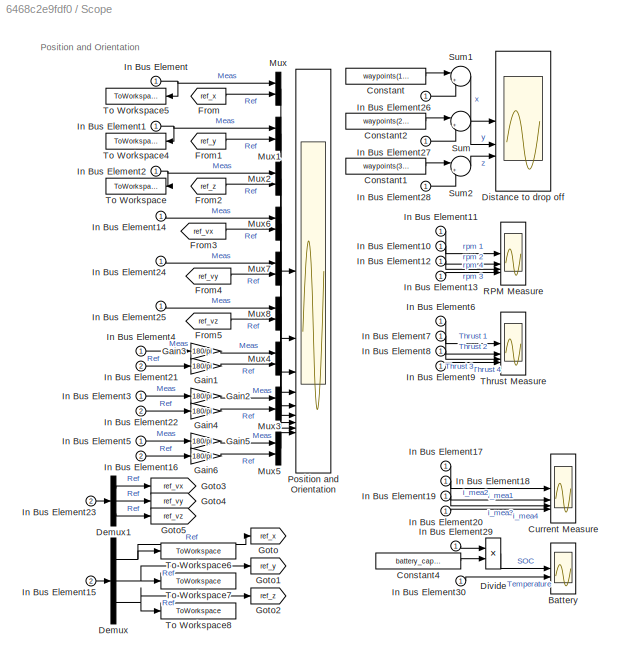
BLOCK [SubSystem] Scope
BLOCK [Scope] Scope/Battery
  ActiveDisplayYMaximum = 1.00891
  ActiveDisplayYMinimum = 0.91985
  DataLoggingVariableName = ScopeData1
  Floating = off
  GraphicalSettings = {"GraphicalSettings":{"LegacySettings":true,"Style":{"AxesScalingProperties":{"ScaleAxesLimitsAtStop":false},"Style":{"AxesColor":"[0 0 0]","ChannelNames":["",""],"ColorOrder":"[1 0.909803921568627 0.392156862745098;0.149019607843137 0.549019607843137 0.866666666666667;0.96078431372549 0.466666666666667 0.16078431372549;0.286274509803922 0.858823529411765 0.250980392156863;0.752941176470588 0.3607...<+544ch>
  LayoutDimensionsString = [2 1]
  MultipleDisplayCache = [{"MaxYLimMag":1.00891,"MaxYLimReal":1.00891,"MinYLimMag":0.91985,"MinYLimReal":0.91985,"PlotAsMagnitudePhase":false,"ShowGrid":true,"ShowLegend":false,"Title":"%<SignalLabel>","YLabel":""},{"MaxYLimMag":100.96001,"MaxYLimReal":298.14252,"MinYLimMag":98.26122,"MinYLimReal":297.98416,"PlotAsMagnitudePhase":false,"ShowGrid":true,"ShowLegend":false,"Title":"%<SignalLabel>","YLabel":""}]
  NumInputPorts = 2
  ScopeFrameLocation = window
  WasSavedAsWebScope = on
  WindowPosition = [823.000000,358.000000,560.000000,420.000000,]
BLOCK [Constant] Scope/Constant
  Value = waypoints(1,end)
BLOCK [Constant] Scope/Constant1
  Value = waypoints(3,end)
BLOCK [Constant] Scope/Constant2
  Value = waypoints(2,end)
BLOCK [Constant] Scope/Constant4
  Value = battery_capacity
BLOCK [Scope] Scope/Current Measure
  ActiveDisplayYMaximum = 19.1285
  ActiveDisplayYMinimum = -5.48055
  DataLoggingVariableName = ScopeData2
  Floating = off
  GraphicalSettings = {"GraphicalSettings":{"LegacySettings":true,"Style":{"AxesScalingProperties":{"ScaleAxesLimitsAtStop":false},"Style":{"AxesColor":"[0 0 0]","ChannelNames":[""],"ColorOrder":"[1 0.909803921568627 0.392156862745098;0.149019607843137 0.549019607843137 0.866666666666667;0.96078431372549 0.466666666666667 0.16078431372549;0.286274509803922 0.858823529411765 0.250980392156863;0.752941176470588 0.3607843...<+841ch>
  MultipleDisplayCache = [{"MaxYLimMag":19.1285,"MaxYLimReal":19.1285,"MinYLimMag":0,"MinYLimReal":-5.48055,"PlotAsMagnitudePhase":false,"ShowGrid":true,"ShowLegend":true,"Title":"%<SignalLabel>","YLabel":""}]
  NumInputPorts = 4
  ScopeFrameLocation = window
  ShowLegend = on
  WasSavedAsWebScope = on
  WindowPosition = [823.000000,394.000000,532.000000,384.000000,]
BLOCK [Demux] Scope/Demux
  Outputs = 3
BLOCK [Demux] Scope/Demux1
  Outputs = 3
BLOCK [Scope] Scope/Distance to drop off
  ActiveDisplayYMaximum = 0.45879
  ActiveDisplayYMinimum = -0.83846
  DataLoggingVariableName = ScopeData1
  Floating = off
  GraphicalSettings = {"GraphicalSettings":{"LegacySettings":true,"Style":{"AxesScalingProperties":{"ScaleAxesLimitsAtStop":false},"Style":{"AxesColor":"[0 0 0]","ChannelNames":["","",""],"ColorOrder":"[1 0.909803921568627 0.392156862745098;0.149019607843137 0.549019607843137 0.866666666666667;0.96078431372549 0.466666666666667 0.16078431372549;0.286274509803922 0.858823529411765 0.250980392156863;0.752941176470588 0.3...<+642ch>
  LayoutDimensionsString = [3 1]
  MultipleDisplayCache = [{"MaxYLimMag":0.83846,"MaxYLimReal":0.45879,"MinYLimMag":0,"MinYLimReal":-0.83846,"PlotAsMagnitudePhase":false,"ShowGrid":true,"ShowLegend":true,"Title":"%<SignalLabel>","YLabel":""},{"MaxYLimMag":10,"MaxYLimReal":0.54753,"MinYLimMag":0,"MinYLimReal":0.17003,"PlotAsMagnitudePhase":false,"ShowGrid":true,"ShowLegend":true,"Title":"%<SignalLabel>","YLabel":""},{"MaxYLimMag":10,"MaxYLimReal":0.49302,...<+138ch>
  NumInputPorts = 3
  ScopeFrameLocation = window
  ShowLegend = on
  WasSavedAsWebScope = on
  WindowPosition = [823.000000,201.000000,348.000000,577.000000,]
BLOCK [Product] Scope/Divide
  Inputs = */
BLOCK [From] Scope/From
  GotoTag = ref_x
BLOCK [From] Scope/From1
  GotoTag = ref_y
BLOCK [From] Scope/From2
  GotoTag = ref_z
BLOCK [From] Scope/From3
  GotoTag = ref_vx
BLOCK [From] Scope/From4
  GotoTag = ref_vy
BLOCK [From] Scope/From5
  GotoTag = ref_vz
BLOCK [Gain] Scope/Gain1
  Gain = 180/pi
BLOCK [Gain] Scope/Gain2
  Gain = 180/pi
BLOCK [Gain] Scope/Gain3
  Gain = 180/pi
BLOCK [Gain] Scope/Gain4
  Gain = 180/pi
BLOCK [Gain] Scope/Gain5
  Gain = 180/pi
BLOCK [Gain] Scope/Gain6
  Gain = 180/pi
BLOCK [Goto] Scope/Goto
  GotoTag = ref_x
BLOCK [Goto] Scope/Goto1
  GotoTag = ref_y
BLOCK [Goto] Scope/Goto2
  GotoTag = ref_z
BLOCK [Goto] Scope/Goto3
  GotoTag = ref_vx
BLOCK [Goto] Scope/Goto4
  GotoTag = ref_vy
BLOCK [Goto] Scope/Goto5
  GotoTag = ref_vz
BLOCK [Inport] Scope/In Bus Element
BLOCK [Inport] Scope/In Bus Element1
BLOCK [Inport] Scope/In Bus Element10
BLOCK [Inport] Scope/In Bus Element11
BLOCK [Inport] Scope/In Bus Element12
BLOCK [Inport] Scope/In Bus Element13
BLOCK [Inport] Scope/In Bus Element14
BLOCK [Inport] Scope/In Bus Element15
  Port = 2
BLOCK [Inport] Scope/In Bus Element16
  Port = 2
BLOCK [Inport] Scope/In Bus Element17
BLOCK [Inport] Scope/In Bus Element18
BLOCK [Inport] Scope/In Bus Element19
BLOCK [Inport] Scope/In Bus Element2
BLOCK [Inport] Scope/In Bus Element20
BLOCK [Inport] Scope/In Bus Element21
  Port = 2
BLOCK [Inport] Scope/In Bus Element22
  Port = 2
BLOCK [Inport] Scope/In Bus Element23
  Port = 2
BLOCK [Inport] Scope/In Bus Element24
BLOCK [Inport] Scope/In Bus Element25
BLOCK [Inport] Scope/In Bus Element26
BLOCK [Inport] Scope/In Bus Element27
BLOCK [Inport] Scope/In Bus Element28
BLOCK [Inport] Scope/In Bus Element29
BLOCK [Inport] Scope/In Bus Element3
BLOCK [Inport] Scope/In Bus Element30
BLOCK [Inport] Scope/In Bus Element4
BLOCK [Inport] Scope/In Bus Element5
BLOCK [Inport] Scope/In Bus Element6
BLOCK [Inport] Scope/In Bus Element7
BLOCK [Inport] Scope/In Bus Element8
BLOCK [Inport] Scope/In Bus Element9
BLOCK [Mux] Scope/Mux
  DisplayOption = bar
  Inputs = 2
BLOCK [Mux] Scope/Mux1
  DisplayOption = bar
  Inputs = 2
BLOCK [Mux] Scope/Mux2
  DisplayOption = bar
  Inputs = 2
BLOCK [Mux] Scope/Mux3
  DisplayOption = bar
  Inputs = 2
BLOCK [Mux] Scope/Mux4
  DisplayOption = bar
  Inputs = 2
BLOCK [Mux] Scope/Mux5
  DisplayOption = bar
  Inputs = 2
BLOCK [Mux] Scope/Mux6
  DisplayOption = bar
  Inputs = 2
BLOCK [Mux] Scope/Mux7
  DisplayOption = bar
  Inputs = 2
BLOCK [Mux] Scope/Mux8
  DisplayOption = bar
  Inputs = 2
BLOCK [Scope] Scope/Position and Orientation
  ActiveDisplayYMaximum = 5.99591
  ActiveDisplayYMinimum = -2.95256
  DataLoggingVariableName = ScopeData2
  Floating = off
  GraphicalSettings = {"GraphicalSettings":{"LegacySettings":true,"Style":{"AxesScalingProperties":{"ScaleAxesLimitsAtStop":false},"Style":{"AxesColor":"[0 0 0]","ChannelNames":["","","","","","","","",""],"ColorOrder":"[1 0.909803921568627 0.392156862745098;0.149019607843137 0.549019607843137 0.866666666666667;0.96078431372549 0.466666666666667 0.16078431372549;0.286274509803922 0.858823529411765 0.250980392156863;0.7...<+809ch>
  LayoutDimensionsString = [3 3]
  MultipleDisplayCache = [{"MaxYLimMag":5.99591,"MaxYLimReal":5.99591,"MinYLimMag":0,"MinYLimReal":-2.95256,"PlotAsMagnitudePhase":false,"ShowGrid":true,"ShowLegend":true,"Title":"px","YLabel":""},{"MaxYLimMag":6.30693,"MaxYLimReal":0.55577,"MinYLimMag":0,"MinYLimReal":-2.38194,"PlotAsMagnitudePhase":false,"ShowGrid":true,"ShowLegend":true,"Title":"py","YLabel":""},{"MaxYLimMag":6.30693,"MaxYLimReal":6.99152,"MinYLimMag":...<+1150ch>
  NumInputPorts = 9
  ScopeFrameLocation = window
  ShowLegend = on
  Title = px
  WasSavedAsWebScope = on
  WindowPosition = [823.000000,295.000000,754.000000,483.000000,]
BLOCK [Scope] Scope/RPM Measure
  ActiveDisplayYMaximum = 7432.06356
  ActiveDisplayYMinimum = -7347.52347
  DataLoggingVariableName = ScopeData2
  Floating = off
  GraphicalSettings = {"GraphicalSettings":{"LegacySettings":true,"Style":{"AxesScalingProperties":{"ScaleAxesLimitsAtStop":false},"Style":{"AxesColor":"[0 0 0]","ChannelNames":[""],"ColorOrder":"[1 0.909803921568627 0.392156862745098;0.149019607843137 0.549019607843137 0.866666666666667;0.96078431372549 0.466666666666667 0.16078431372549;0.286274509803922 0.858823529411765 0.250980392156863;0.752941176470588 0.3607843...<+605ch>
  MultipleDisplayCache = [{"MaxYLimMag":7432.06356,"MaxYLimReal":7432.06356,"MinYLimMag":0,"MinYLimReal":-7347.52347,"PlotAsMagnitudePhase":false,"ShowGrid":true,"ShowLegend":true,"Title":"%<SignalLabel>","YLabel":""}]
  NumInputPorts = 4
  ScopeFrameLocation = window
  ShowLegend = on
  WasSavedAsWebScope = on
  WindowPosition = [823.000000,344.000000,695.000000,434.000000,]
BLOCK [Sum] Scope/Sum
  Inputs = |+-
BLOCK [Sum] Scope/Sum1
  Inputs = |+-
BLOCK [Sum] Scope/Sum2
  Inputs = |+-
BLOCK [Scope] Scope/Thrust Measure
  ActiveDisplayYMaximum = 6.05582
  ActiveDisplayYMinimum = -0.67587
  DataLoggingVariableName = ScopeData1
  Floating = off
  GraphicalSettings = {"GraphicalSettings":{"LegacySettings":true,"Style":{"AxesScalingProperties":{"ScaleAxesLimitsAtStop":false},"Style":{"AxesColor":"[0 0 0]","ChannelNames":[""],"ColorOrder":"[1 0.909803921568627 0.392156862745098;0.149019607843137 0.549019607843137 0.866666666666667;0.96078431372549 0.466666666666667 0.16078431372549;0.286274509803922 0.858823529411765 0.250980392156863;0.752941176470588 0.3607843...<+582ch>
  MultipleDisplayCache = [{"MaxYLimMag":6.05582,"MaxYLimReal":6.05582,"MinYLimMag":0,"MinYLimReal":-0.67587,"PlotAsMagnitudePhase":false,"ShowGrid":true,"ShowLegend":true,"Title":"%<SignalLabel>","YLabel":""}]
  NumInputPorts = 4
  ScopeFrameLocation = window
  ShowLegend = on
  WasSavedAsWebScope = on
  WindowPosition = [823.000000,308.000000,984.000000,470.000000,]
BLOCK [ToWorkspace] Scope/To Workspace
  FixptAsFi = on
  MaxDataPoints = inf
  SampleTime = -1
  VariableName = act_z1
BLOCK [ToWorkspace] Scope/To Workspace4
  FixptAsFi = on
  MaxDataPoints = inf
  SampleTime = -1
  VariableName = act_y1
BLOCK [ToWorkspace] Scope/To Workspace5
  FixptAsFi = on
  MaxDataPoints = inf
  SampleTime = -1
  VariableName = act_x1
BLOCK [ToWorkspace] Scope/To Workspace6
  MaxDataPoints = inf
  SampleTime = -1
  VariableName = des_x1
BLOCK [ToWorkspace] Scope/To Workspace7
  FixptAsFi = on
  MaxDataPoints = inf
  SampleTime = -1
  VariableName = des_y1
BLOCK [ToWorkspace] Scope/To Workspace8
  FixptAsFi = on
  MaxDataPoints = inf
  SampleTime = -1
  VariableName = des_z1
ANNOTATION (root): Automating Drone Analysis Using Simulation: Exercise 4
ANNOTATION (root): Open Exercise Selection App
ANNOTATION (root): Resources Explore simulation results using sscexplore
ANNOTATION (root): Step 1: Plot the route of the delivery mission. Click here to see the route and speed of the test ( code )
ANNOTATION (root): Step 2: Run the mission twice, once with no wind and once with wind Click here to run the test two times: no wind , then with wind ( code )
ANNOTATION (root): Step 3: Review the plots to see effect of wind and estimate maximum time aloft Can you see the effect of wind on the path of the drone? Review the battery state of charge (SOC) plot. How long can the drone stay aloft with a 2kg load before SOC reaches 35%?
ANNOTATION (root): Task: Run a short delivery mission to check stability and verify drone range.
ANNOTATION Maneuver Controller/Altitude and YPR Control/Pause Motor: Create pulse to briefly stop motor while package is dropped.
ANNOTATION Maneuver Controller/Position Control: Body Frame
ANNOTATION Maneuver Controller/Position Control: World Frame
ANNOTATION Quadcopter/6 DOF: Body Frame
ANNOTATION Quadcopter/6 DOF: World Frame
ANNOTATION Quadcopter/6 DOF/Joints: Separate joints used to permit definition of camera viewpoints that do not rotate with the quadcopter.
ANNOTATION Quadcopter/6 DOF/R to X-Y-Z Extrinsic: The sensor implemented here computes roll / pitch / yaw values assuming they correpsond to X, Y, and Z rotations, applied in that order and using *extrinsic* rotations. That is, the rotations are applied about the fixed (non-rotated) axes of the base frame. There are many other possible conventions, but the computations of angles has the same basic structure for any of them. The only differences w...<+349ch>
ANNOTATION Quadcopter/Wind and Drag: Apply force and torque at center of pressure for no load
ANNOTATION Quadcopter/Wind and Drag: Apply force and torque at center of pressure when carrying load
ANNOTATION Scope: Position and Orientation
LINE Environment/Bias Height Min Wind:1 -> Environment/Saturation:1
LINE Environment/Constant1:1 -> Environment/Mux1:3
LINE Environment/Demux:1 -> Environment/Mux:1
LINE Environment/Demux:2 -> Environment/Mux:2
LINE Environment/Demux:3 -> Environment/Mux:3
LINE Environment/From:1 -> Environment/Demux:1
NET Environment/In Bus Element:1 -> Environment/Bias Height Min Wind:1, Environment/Scope:2
LINE Environment/Mux1:1 -> Environment/Product1:2
LINE Environment/Mux:1 -> Environment/Scope:1
NET Environment/Product1:1 -> Environment/Goto:1, Environment/Vec to Bus:1
LINE Environment/Pulse Generator2:1 -> Environment/Mux1:1
LINE Environment/Pulse Generator3:1 -> Environment/Mux1:2
LINE Environment/Saturation:1 -> Environment/Scale Wind by Height :1
LINE Environment/Scale Wind by Height :1 -> Environment/Product1:1
LINE Environment/Vec to Bus/Bus Creator:1 -> Environment/Vec to Bus/B:1
LINE Environment/Vec to Bus/Demux:1 -> Environment/Vec to Bus/Bus Creator:1
LINE Environment/Vec to Bus/Demux:2 -> Environment/Vec to Bus/Bus Creator:2
LINE Environment/Vec to Bus/Demux:3 -> Environment/Vec to Bus/Bus Creator:3
LINE Environment/Vec to Bus/V:1 -> Environment/Vec to Bus/Demux:1
LINE Environment/Vec to Bus:1 -> Environment/Wind:1
LINE Environment/Wind:1 -> Environment/Env:1
LINE Environment:1 -> Quadcopter:1
LINE From:1 -> Scope:2
NET Maneuver Controller/Altitude and YPR Control/Add2:1 -> Maneuver Controller/Altitude and YPR Control/Control Roll:1, Maneuver Controller/Altitude and YPR Control/Roll Control:2
LINE Maneuver Controller/Altitude and YPR Control/Add3:1 -> Maneuver Controller/Altitude and YPR Control/Control Yaw:1
NET Maneuver Controller/Altitude and YPR Control/Add7:1 -> Maneuver Controller/Altitude and YPR Control/Control Pitch:1, Maneuver Controller/Altitude and YPR Control/Pitch Control:2
NET Maneuver Controller/Altitude and YPR Control/Add:1 -> Maneuver Controller/Altitude and YPR Control/Control Thrust:1, Maneuver Controller/Altitude and YPR Control/Thrust Control:2
NET Maneuver Controller/Altitude and YPR Control/Control Pitch:1 -> Maneuver Controller/Altitude and YPR Control/Motor Pitch:1, Maneuver Controller/Altitude and YPR Control/Pitch Control:3
NET Maneuver Controller/Altitude and YPR Control/Control Roll:1 -> Maneuver Controller/Altitude and YPR Control/Motor Roll:1, Maneuver Controller/Altitude and YPR Control/Roll Control:3
NET Maneuver Controller/Altitude and YPR Control/Control Thrust:1 -> Maneuver Controller/Altitude and YPR Control/Thrust Control:3, Maneuver Controller/Altitude and YPR Control/Thrust to Torque:1
LINE Maneuver Controller/Altitude and YPR Control/Control Yaw:1 -> Maneuver Controller/Altitude and YPR Control/Motor Yaw:1
NET Maneuver Controller/Altitude and YPR Control/Filter Pitch:1 -> Maneuver Controller/Altitude and YPR Control/Add7:2, Maneuver Controller/Altitude and YPR Control/Mux1:2
NET Maneuver Controller/Altitude and YPR Control/Filter Roll:1 -> Maneuver Controller/Altitude and YPR Control/Add2:2, Maneuver Controller/Altitude and YPR Control/Mux2:2
LINE Maneuver Controller/Altitude and YPR Control/Filter Yaw:1 -> Maneuver Controller/Altitude and YPR Control/Add3:2
NET Maneuver Controller/Altitude and YPR Control/Filter pz:1 -> Maneuver Controller/Altitude and YPR Control/Add:2, Maneuver Controller/Altitude and YPR Control/Mux:2
LINE Maneuver Controller/Altitude and YPR Control/In Bus Element1:1 -> Maneuver Controller/Altitude and YPR Control/Filter Roll:1
LINE Maneuver Controller/Altitude and YPR Control/In Bus Element2:1 -> Maneuver Controller/Altitude and YPR Control/Filter Pitch:1
LINE Maneuver Controller/Altitude and YPR Control/In Bus Element3:1 -> Maneuver Controller/Altitude and YPR Control/Filter Yaw:1
LINE Maneuver Controller/Altitude and YPR Control/In Bus Element4:1 -> Maneuver Controller/Altitude and YPR Control/Filter pz:1
LINE Maneuver Controller/Altitude and YPR Control/In Bus Element9:1 -> Maneuver Controller/Altitude and YPR Control/Select z:1
NET Maneuver Controller/Altitude and YPR Control/In Bus Element:1 -> Maneuver Controller/Altitude and YPR Control/Pause Motor:1, Maneuver Controller/Altitude and YPR Control/Subsystem:2, Maneuver Controller/Altitude and YPR Control/Thrust Control:6
LINE Maneuver Controller/Altitude and YPR Control/Mux1:1 -> Maneuver Controller/Altitude and YPR Control/Pitch Control:1
LINE Maneuver Controller/Altitude and YPR Control/Mux2:1 -> Maneuver Controller/Altitude and YPR Control/Roll Control:1
LINE Maneuver Controller/Altitude and YPR Control/Mux:1 -> Maneuver Controller/Altitude and YPR Control/Thrust Control:1
LINE Maneuver Controller/Altitude and YPR Control/Pause Motor/Bias:1 -> Maneuver Controller/Altitude and YPR Control/Pause Motor/En:1
LINE Maneuver Controller/Altitude and YPR Control/Pause Motor/Delay:1 -> Maneuver Controller/Altitude and YPR Control/Pause Motor/Sum2:1
NET Maneuver Controller/Altitude and YPR Control/Pause Motor/Sign Change:1 -> Maneuver Controller/Altitude and YPR Control/Pause Motor/Delay:1, Maneuver Controller/Altitude and YPR Control/Pause Motor/Sum2:2
LINE Maneuver Controller/Altitude and YPR Control/Pause Motor/Sum2:1 -> Maneuver Controller/Altitude and YPR Control/Pause Motor/Bias:1
LINE Maneuver Controller/Altitude and YPR Control/Pause Motor/y:1 -> Maneuver Controller/Altitude and YPR Control/Pause Motor/Sign Change:1
NET Maneuver Controller/Altitude and YPR Control/Pause Motor:1 -> Maneuver Controller/Altitude and YPR Control/Product:1, Maneuver Controller/Altitude and YPR Control/Thrust Control:5
NET Maneuver Controller/Altitude and YPR Control/Pitch Cmd:1 -> Maneuver Controller/Altitude and YPR Control/Add7:1, Maneuver Controller/Altitude and YPR Control/Mux1:1
LINE Maneuver Controller/Altitude and YPR Control/Product:1 -> Maneuver Controller/Altitude and YPR Control/Motor Thrust:1
NET Maneuver Controller/Altitude and YPR Control/Roll Cmd:1 -> Maneuver Controller/Altitude and YPR Control/Add2:1, Maneuver Controller/Altitude and YPR Control/Mux2:1
NET Maneuver Controller/Altitude and YPR Control/Select z:1 -> Maneuver Controller/Altitude and YPR Control/Add:1, Maneuver Controller/Altitude and YPR Control/Mux:1
LINE Maneuver Controller/Altitude and YPR Control/Subsystem/Bias Chassis:1 -> Maneuver Controller/Altitude and YPR Control/Subsystem/Sum:1
LINE Maneuver Controller/Altitude and YPR Control/Subsystem/Bias Load:1 -> Maneuver Controller/Altitude and YPR Control/Subsystem/Sum:2
LINE Maneuver Controller/Altitude and YPR Control/Subsystem/Bias:1 -> Maneuver Controller/Altitude and YPR Control/Subsystem/Bias Load:1
LINE Maneuver Controller/Altitude and YPR Control/Subsystem/Speed:1 -> Maneuver Controller/Altitude and YPR Control/Subsystem/Out1:1
LINE Maneuver Controller/Altitude and YPR Control/Subsystem/Sum:1 -> Maneuver Controller/Altitude and YPR Control/Subsystem/Speed:1
LINE Maneuver Controller/Altitude and YPR Control/Subsystem/cmd:1 -> Maneuver Controller/Altitude and YPR Control/Subsystem/Bias Chassis:1
LINE Maneuver Controller/Altitude and YPR Control/Subsystem/load:1 -> Maneuver Controller/Altitude and YPR Control/Subsystem/Bias:1
NET Maneuver Controller/Altitude and YPR Control/Subsystem:1 -> Maneuver Controller/Altitude and YPR Control/Product:2, Maneuver Controller/Altitude and YPR Control/Thrust Control:4
LINE Maneuver Controller/Altitude and YPR Control/Thrust to Torque:1 -> Maneuver Controller/Altitude and YPR Control/Subsystem:1
LINE Maneuver Controller/Altitude and YPR Control/Yaw Cmd:1 -> Maneuver Controller/Altitude and YPR Control/Add3:1
LINE Maneuver Controller/Altitude and YPR Control:1 -> Maneuver Controller/Motor Mixer:1
LINE Maneuver Controller/Altitude and YPR Control:2 -> Maneuver Controller/Motor Mixer:2
LINE Maneuver Controller/Altitude and YPR Control:3 -> Maneuver Controller/Motor Mixer:3
LINE Maneuver Controller/Altitude and YPR Control:4 -> Maneuver Controller/Motor Mixer:4
NET Maneuver Controller/In Bus Element13:1 -> Maneuver Controller/Altitude and YPR Control:1, Maneuver Controller/Position Control:1
NET Maneuver Controller/In Bus Element3:1 -> Maneuver Controller/Altitude and YPR Control:2, Maneuver Controller/Position Control:2
LINE Maneuver Controller/Motor Mixer/Add4:1 -> Maneuver Controller/Motor Mixer/Out Bus Element:1
LINE Maneuver Controller/Motor Mixer/Add5:1 -> Maneuver Controller/Motor Mixer/Out Bus Element1:1
LINE Maneuver Controller/Motor Mixer/Add6:1 -> Maneuver Controller/Motor Mixer/Out Bus Element3:1
LINE Maneuver Controller/Motor Mixer/Add7:1 -> Maneuver Controller/Motor Mixer/Out Bus Element2:1
LINE Maneuver Controller/Motor Mixer/From10:1 -> Maneuver Controller/Motor Mixer/Add5:3
LINE Maneuver Controller/Motor Mixer/From11:1 -> Maneuver Controller/Motor Mixer/RPY Thrust Cmd:3
LINE Maneuver Controller/Motor Mixer/From12:1 -> Maneuver Controller/Motor Mixer/Add4:3
LINE Maneuver Controller/Motor Mixer/From13:1 -> Maneuver Controller/Motor Mixer/Add6:3
LINE Maneuver Controller/Motor Mixer/From14:1 -> Maneuver Controller/Motor Mixer/Add7:3
LINE Maneuver Controller/Motor Mixer/From15:1 -> Maneuver Controller/Motor Mixer/RPY Thrust Cmd:4
LINE Maneuver Controller/Motor Mixer/From16:1 -> Maneuver Controller/Motor Mixer/Add5:4
LINE Maneuver Controller/Motor Mixer/From17:1 -> Maneuver Controller/Motor Mixer/Add4:4
LINE Maneuver Controller/Motor Mixer/From18:1 -> Maneuver Controller/Motor Mixer/Add6:4
LINE Maneuver Controller/Motor Mixer/From19:1 -> Maneuver Controller/Motor Mixer/Add7:4
LINE Maneuver Controller/Motor Mixer/From1:1 -> Maneuver Controller/Motor Mixer/Add4:1
LINE Maneuver Controller/Motor Mixer/From2:1 -> Maneuver Controller/Motor Mixer/Add6:1
LINE Maneuver Controller/Motor Mixer/From3:1 -> Maneuver Controller/Motor Mixer/Add7:1
LINE Maneuver Controller/Motor Mixer/From4:1 -> Maneuver Controller/Motor Mixer/Add5:2
LINE Maneuver Controller/Motor Mixer/From5:1 -> Maneuver Controller/Motor Mixer/RPY Thrust Cmd:1
LINE Maneuver Controller/Motor Mixer/From6:1 -> Maneuver Controller/Motor Mixer/RPY Thrust Cmd:2
LINE Maneuver Controller/Motor Mixer/From7:1 -> Maneuver Controller/Motor Mixer/Add4:2
LINE Maneuver Controller/Motor Mixer/From8:1 -> Maneuver Controller/Motor Mixer/Add6:2
LINE Maneuver Controller/Motor Mixer/From9:1 -> Maneuver Controller/Motor Mixer/Add7:2
LINE Maneuver Controller/Motor Mixer/From:1 -> Maneuver Controller/Motor Mixer/Add5:1
LINE Maneuver Controller/Motor Mixer/Pitch Cmd:1 -> Maneuver Controller/Motor Mixer/Goto1:1
LINE Maneuver Controller/Motor Mixer/Roll Cmd:1 -> Maneuver Controller/Motor Mixer/Goto4:1
LINE Maneuver Controller/Motor Mixer/Thrust Cmd:1 -> Maneuver Controller/Motor Mixer/Goto2:1
LINE Maneuver Controller/Motor Mixer/Yaw Cmd:1 -> Maneuver Controller/Motor Mixer/Goto3:1
LINE Maneuver Controller/Motor Mixer:1 -> Maneuver Controller/cmd:1
LINE Maneuver Controller/Position Control/Calculate RBI:1 -> Maneuver Controller/Position Control/Matrix Multiply:1
LINE Maneuver Controller/Position Control/Demux:1 -> Maneuver Controller/Position Control/Dir P:1
LINE Maneuver Controller/Position Control/Demux:2 -> Maneuver Controller/Position Control/Dir R:1
LINE Maneuver Controller/Position Control/Demux:3 -> Maneuver Controller/Position Control/Terminator:1
LINE Maneuver Controller/Position Control/Dir P:1 -> Maneuver Controller/Position Control/Err2P:1
LINE Maneuver Controller/Position Control/Dir R:1 -> Maneuver Controller/Position Control/Err2R:1
LINE Maneuver Controller/Position Control/Err2P:1 -> Maneuver Controller/Position Control/Pitch Limit:1
LINE Maneuver Controller/Position Control/Err2R:1 -> Maneuver Controller/Position Control/Roll Limit:1
LINE Maneuver Controller/Position Control/Filter/Demux1:1 -> Maneuver Controller/Position Control/Filter/Transfer Fcn:1
LINE Maneuver Controller/Position Control/Filter/Demux1:2 -> Maneuver Controller/Position Control/Filter/Transfer Fcn1:1
LINE Maneuver Controller/Position Control/Filter/Demux1:3 -> Maneuver Controller/Position Control/Filter/Transfer Fcn2:1
LINE Maneuver Controller/Position Control/Filter/Mux p1:1 -> Maneuver Controller/Position Control/Filter/o:1
LINE Maneuver Controller/Position Control/Filter/Transfer Fcn1:1 -> Maneuver Controller/Position Control/Filter/Mux p1:2
LINE Maneuver Controller/Position Control/Filter/Transfer Fcn2:1 -> Maneuver Controller/Position Control/Filter/Mux p1:3
LINE Maneuver Controller/Position Control/Filter/Transfer Fcn:1 -> Maneuver Controller/Position Control/Filter/Mux p1:1
LINE Maneuver Controller/Position Control/Filter/i:1 -> Maneuver Controller/Position Control/Filter/Demux1:1
NET Maneuver Controller/Position Control/Filter:1 -> Maneuver Controller/Position Control/Demux:1, Maneuver Controller/Position Control/Scope:1
LINE Maneuver Controller/Position Control/In Bus Element11:1 -> Maneuver Controller/Position Control/Mux rpy:3
LINE Maneuver Controller/Position Control/In Bus Element12:1 -> Maneuver Controller/Position Control/Out Bus Element:1
LINE Maneuver Controller/Position Control/In Bus Element13:1 -> Maneuver Controller/Position Control/Out Bus Element1:1
LINE Maneuver Controller/Position Control/In Bus Element1:1 -> Maneuver Controller/Position Control/Mux p:1
LINE Maneuver Controller/Position Control/In Bus Element2:1 -> Maneuver Controller/Position Control/Mux p:2
LINE Maneuver Controller/Position Control/In Bus Element3:1 -> Maneuver Controller/Position Control/Mux p:3
LINE Maneuver Controller/Position Control/In Bus Element7:1 -> Maneuver Controller/Position Control/Subtract2:1
LINE Maneuver Controller/Position Control/In Bus Element8:1 -> Maneuver Controller/Position Control/Mux rpy:1
LINE Maneuver Controller/Position Control/In Bus Element9:1 -> Maneuver Controller/Position Control/Mux rpy:2
NET Maneuver Controller/Position Control/In Bus Element:1 -> Maneuver Controller/Position Control/Out Bus Element4:1, Maneuver Controller/Position Control/Yaw Cmd:1
LINE Maneuver Controller/Position Control/Matrix Multiply:1 -> Maneuver Controller/Position Control/Filter:1
LINE Maneuver Controller/Position Control/Mux p:1 -> Maneuver Controller/Position Control/Subtract2:2
LINE Maneuver Controller/Position Control/Mux rpy:1 -> Maneuver Controller/Position Control/Calculate RBI:1
LINE Maneuver Controller/Position Control/PID Controller:1 -> Maneuver Controller/Position Control/Matrix Multiply:2
NET Maneuver Controller/Position Control/Pitch Limit:1 -> Maneuver Controller/Position Control/Out Bus Element3:1, Maneuver Controller/Position Control/Pitch Cmd:1
NET Maneuver Controller/Position Control/Roll Limit:1 -> Maneuver Controller/Position Control/Out Bus Element2:1, Maneuver Controller/Position Control/Roll Cmd:1
NET Maneuver Controller/Position Control/Subtract2:1 -> Maneuver Controller/Position Control/PID Controller:1, Maneuver Controller/Position Control/Scope:2
LINE Maneuver Controller/Position Control:1 -> Maneuver Controller/Altitude and YPR Control:3
LINE Maneuver Controller/Position Control:2 -> Maneuver Controller/Altitude and YPR Control:4
LINE Maneuver Controller/Position Control:3 -> Maneuver Controller/Altitude and YPR Control:5
LINE Maneuver Controller/Position Control:4 -> Maneuver Controller/Ref:1
LINE Maneuver Controller:1 -> Quadcopter:2
LINE Maneuver Controller:2 -> Goto:1
LINE Quadcopter/6 DOF/PS-Simulink Converter11:1 -> Quadcopter/6 DOF/Roll Pitch:1
LINE Quadcopter/6 DOF/PS-Simulink Converter13:1 -> Quadcopter/6 DOF/R to X-Y-Z Extrinsic:1
LINE Quadcopter/6 DOF/PS-Simulink Converter1:1 -> Quadcopter/6 DOF/Out Bus Element4:1
LINE Quadcopter/6 DOF/PS-Simulink Converter2:1 -> Quadcopter/6 DOF/Out Bus Element5:1
NET Quadcopter/6 DOF/PS-Simulink Converter3:1 -> Quadcopter/6 DOF/Out Bus Element11:1, Quadcopter/6 DOF/R to X-Y-Z Extrinsic:2
LINE Quadcopter/6 DOF/PS-Simulink Converter4:1 -> Quadcopter/6 DOF/Out Bus Element9:1
LINE Quadcopter/6 DOF/PS-Simulink Converter5:1 -> Quadcopter/6 DOF/Out Bus Element10:1
LINE Quadcopter/6 DOF/PS-Simulink Converter:1 -> Quadcopter/6 DOF/Out Bus Element3:1
LINE Quadcopter/6 DOF/R to X-Y-Z Extrinsic/Asin:1 -> Quadcopter/6 DOF/R to X-Y-Z Extrinsic/Reshape1:1
LINE Quadcopter/6 DOF/R to X-Y-Z Extrinsic/Atan1:1 -> Quadcopter/6 DOF/R to X-Y-Z Extrinsic/Reshape:1
LINE Quadcopter/6 DOF/R to X-Y-Z Extrinsic/Atan2:1 -> Quadcopter/6 DOF/R to X-Y-Z Extrinsic/Reshape2:1
LINE Quadcopter/6 DOF/R to X-Y-Z Extrinsic/Demux1:1 -> Quadcopter/6 DOF/R to X-Y-Z Extrinsic/Atan1:1
LINE Quadcopter/6 DOF/R to X-Y-Z Extrinsic/Demux1:2 -> Quadcopter/6 DOF/R to X-Y-Z Extrinsic/Atan1:2
LINE Quadcopter/6 DOF/R to X-Y-Z Extrinsic/Demux:1 -> Quadcopter/6 DOF/R to X-Y-Z Extrinsic/Atan2:1
LINE Quadcopter/6 DOF/R to X-Y-Z Extrinsic/Demux:2 -> Quadcopter/6 DOF/R to X-Y-Z Extrinsic/Atan2:2
LINE Quadcopter/6 DOF/R to X-Y-Z Extrinsic/Multiply2:1 -> Quadcopter/6 DOF/R to X-Y-Z Extrinsic/Asin:1
LINE Quadcopter/6 DOF/R to X-Y-Z Extrinsic/Mux:1 -> Quadcopter/6 DOF/R to X-Y-Z Extrinsic/Scope:1
LINE Quadcopter/6 DOF/R to X-Y-Z Extrinsic/R(3, 1):1 -> Quadcopter/6 DOF/R to X-Y-Z Extrinsic/Multiply2:1
LINE Quadcopter/6 DOF/R to X-Y-Z Extrinsic/R(3, 2:3):1 -> Quadcopter/6 DOF/R to X-Y-Z Extrinsic/Demux:1
LINE Quadcopter/6 DOF/R to X-Y-Z Extrinsic/R([2 1], 1):1 -> Quadcopter/6 DOF/R to X-Y-Z Extrinsic/Demux1:1
NET Quadcopter/6 DOF/R to X-Y-Z Extrinsic/R:1 -> Quadcopter/6 DOF/R to X-Y-Z Extrinsic/R(3, 1):1, Quadcopter/6 DOF/R to X-Y-Z Extrinsic/R(3, 2:3):1, Quadcopter/6 DOF/R to X-Y-Z Extrinsic/R([2 1], 1):1
LINE Quadcopter/6 DOF/R to X-Y-Z Extrinsic/Reshape1:1 -> Quadcopter/6 DOF/R to X-Y-Z Extrinsic/pitch:1
LINE Quadcopter/6 DOF/R to X-Y-Z Extrinsic/Reshape2:1 -> Quadcopter/6 DOF/R to X-Y-Z Extrinsic/roll:1
NET Quadcopter/6 DOF/R to X-Y-Z Extrinsic/Reshape:1 -> Quadcopter/6 DOF/R to X-Y-Z Extrinsic/Mux:1, Quadcopter/6 DOF/R to X-Y-Z Extrinsic/Unwrap:1, Quadcopter/6 DOF/R to X-Y-Z Extrinsic/yawWr:1
LINE Quadcopter/6 DOF/R to X-Y-Z Extrinsic/Unwrap/Fcn1:1 -> Quadcopter/6 DOF/R to X-Y-Z Extrinsic/Unwrap/Gain4:1
NET Quadcopter/6 DOF/R to X-Y-Z Extrinsic/Unwrap/Gain1:1 -> Quadcopter/6 DOF/R to X-Y-Z Extrinsic/Unwrap/Integrator:2, Quadcopter/6 DOF/R to X-Y-Z Extrinsic/Unwrap/Mux:2
LINE Quadcopter/6 DOF/R to X-Y-Z Extrinsic/Unwrap/Gain3:1 -> Quadcopter/6 DOF/R to X-Y-Z Extrinsic/Unwrap/Integrator:1
LINE Quadcopter/6 DOF/R to X-Y-Z Extrinsic/Unwrap/Gain4:1 -> Quadcopter/6 DOF/R to X-Y-Z Extrinsic/Unwrap/unwrapped:1
LINE Quadcopter/6 DOF/R to X-Y-Z Extrinsic/Unwrap/Integrator:1 -> Quadcopter/6 DOF/R to X-Y-Z Extrinsic/Unwrap/Mux:1
LINE Quadcopter/6 DOF/R to X-Y-Z Extrinsic/Unwrap/Mux:1 -> Quadcopter/6 DOF/R to X-Y-Z Extrinsic/Unwrap/Fcn1:1
LINE Quadcopter/6 DOF/R to X-Y-Z Extrinsic/Unwrap/angle:1 -> Quadcopter/6 DOF/R to X-Y-Z Extrinsic/Unwrap/Gain1:1
LINE Quadcopter/6 DOF/R to X-Y-Z Extrinsic/Unwrap/w:1 -> Quadcopter/6 DOF/R to X-Y-Z Extrinsic/Unwrap/Gain3:1
NET Quadcopter/6 DOF/R to X-Y-Z Extrinsic/Unwrap:1 -> Quadcopter/6 DOF/R to X-Y-Z Extrinsic/Mux:2, Quadcopter/6 DOF/R to X-Y-Z Extrinsic/yaw:1
NET Quadcopter/6 DOF/R to X-Y-Z Extrinsic/nYaw:1 -> Quadcopter/6 DOF/R to X-Y-Z Extrinsic/Scope:2, Quadcopter/6 DOF/R to X-Y-Z Extrinsic/Unwrap:2
LINE Quadcopter/6 DOF/R to X-Y-Z Extrinsic:1 -> Quadcopter/6 DOF/Out Bus Element8:1
LINE Quadcopter/6 DOF/R to X-Y-Z Extrinsic:2 -> Quadcopter/6 DOF/Terminator:1
LINE Quadcopter/6 DOF/R to X-Y-Z Extrinsic:3 -> Quadcopter/6 DOF/Terminator1:1
LINE Quadcopter/6 DOF/R to X-Y-Z Extrinsic:4 -> Quadcopter/6 DOF/Out Bus Element12:1
LINE Quadcopter/6 DOF/Roll Pitch/Calculate aPitch/Asin:1 -> Quadcopter/6 DOF/Roll Pitch/Calculate aPitch/Angle:1
LINE Quadcopter/6 DOF/Roll Pitch/Calculate aPitch/Cos:1 -> Quadcopter/6 DOF/Roll Pitch/Calculate aPitch/Divide:2
LINE Quadcopter/6 DOF/Roll Pitch/Calculate aPitch/Divide1:1 -> Quadcopter/6 DOF/Roll Pitch/Calculate aPitch/Asin:1
LINE Quadcopter/6 DOF/Roll Pitch/Calculate aPitch/Divide:1 -> Quadcopter/6 DOF/Roll Pitch/Calculate aPitch/Divide1:1
LINE Quadcopter/6 DOF/Roll Pitch/Calculate aPitch/Roll Angle:1 -> Quadcopter/6 DOF/Roll Pitch/Calculate aPitch/Cos:1
LINE Quadcopter/6 DOF/Roll Pitch/Calculate aPitch/Selector:1 -> Quadcopter/6 DOF/Roll Pitch/Calculate aPitch/Divide:1
LINE Quadcopter/6 DOF/Roll Pitch/Calculate aPitch/magnitude:1 -> Quadcopter/6 DOF/Roll Pitch/Calculate aPitch/Divide1:2
NET Quadcopter/6 DOF/Roll Pitch/Calculate aPitch/uvec:1 -> Quadcopter/6 DOF/Roll Pitch/Calculate aPitch/Selector:1, Quadcopter/6 DOF/Roll Pitch/Calculate aPitch/magnitude:1
LINE Quadcopter/6 DOF/Roll Pitch/Calculate aPitch:1 -> Quadcopter/6 DOF/Roll Pitch/Flip sign for -x axis :1
LINE Quadcopter/6 DOF/Roll Pitch/Calculate aRoll/Demux:1 -> Quadcopter/6 DOF/Roll Pitch/Calculate aRoll/Mux:1
LINE Quadcopter/6 DOF/Roll Pitch/Calculate aRoll/Demux:2 -> Quadcopter/6 DOF/Roll Pitch/Calculate aRoll/Mux:2
LINE Quadcopter/6 DOF/Roll Pitch/Calculate aRoll/Demux:3 -> Quadcopter/6 DOF/Roll Pitch/Calculate aRoll/Trigonometric Function1:1
LINE Quadcopter/6 DOF/Roll Pitch/Calculate aRoll/Mux:1 -> Quadcopter/6 DOF/Roll Pitch/Calculate aRoll/magnitude:1
LINE Quadcopter/6 DOF/Roll Pitch/Calculate aRoll/Trigonometric Function1:1 -> Quadcopter/6 DOF/Roll Pitch/Calculate aRoll/Angle:1
LINE Quadcopter/6 DOF/Roll Pitch/Calculate aRoll/magnitude:1 -> Quadcopter/6 DOF/Roll Pitch/Calculate aRoll/Trigonometric Function1:2
LINE Quadcopter/6 DOF/Roll Pitch/Calculate aRoll/uvec:1 -> Quadcopter/6 DOF/Roll Pitch/Calculate aRoll/Demux:1
NET Quadcopter/6 DOF/Roll Pitch/Calculate aRoll:1 -> Quadcopter/6 DOF/Roll Pitch/Calculate aPitch:1, Quadcopter/6 DOF/Roll Pitch/Transfer Fcn:1, Quadcopter/6 DOF/Roll Pitch/aRoll:1
NET Quadcopter/6 DOF/Roll Pitch/Flip sign for -x axis :1 -> Quadcopter/6 DOF/Roll Pitch/Transfer Fcn1:1, Quadcopter/6 DOF/Roll Pitch/aPitch:1
NET Quadcopter/6 DOF/Roll Pitch/R:1 -> Quadcopter/6 DOF/Roll Pitch/Select x axis:1, Quadcopter/6 DOF/Roll Pitch/Select y axis:1
LINE Quadcopter/6 DOF/Roll Pitch/Select x axis:1 -> Quadcopter/6 DOF/Roll Pitch/Calculate aPitch:2
LINE Quadcopter/6 DOF/Roll Pitch/Select y axis:1 -> Quadcopter/6 DOF/Roll Pitch/Calculate aRoll:1
LINE Quadcopter/6 DOF/Roll Pitch/Transfer Fcn1:1 -> Quadcopter/6 DOF/Roll Pitch/nPitch:1
LINE Quadcopter/6 DOF/Roll Pitch/Transfer Fcn:1 -> Quadcopter/6 DOF/Roll Pitch/nRoll:1
LINE Quadcopter/6 DOF/Roll Pitch:1 -> Quadcopter/6 DOF/Out Bus Element6:1
LINE Quadcopter/6 DOF/Roll Pitch:2 -> Quadcopter/6 DOF/Out Bus Element7:1
LINE Quadcopter/6 DOF/Roll Pitch:3 -> Quadcopter/6 DOF/Terminator2:1
LINE Quadcopter/6 DOF/Roll Pitch:4 -> Quadcopter/6 DOF/Terminator3:1
LINE Quadcopter/6 DOF/x:1 -> Quadcopter/6 DOF/Out Bus Element:1
LINE Quadcopter/6 DOF/y:1 -> Quadcopter/6 DOF/Out Bus Element1:1
LINE Quadcopter/6 DOF/z:1 -> Quadcopter/6 DOF/Out Bus Element2:1
NET Quadcopter/6 DOF:1 -> Quadcopter/Out Bus Element:1, Quadcopter/Wind and Drag:3
NET Quadcopter/Electrical/Control1/Add:1 -> Quadcopter/Electrical/Control1/Control:1, Quadcopter/Electrical/Control1/Scope:2
NET Quadcopter/Electrical/Control1/Control:1 -> Quadcopter/Electrical/Control1/Scope:3, Quadcopter/Electrical/Control1/torque:1
LINE Quadcopter/Electrical/Control1/Mux:1 -> Quadcopter/Electrical/Control1/Scope:1
NET Quadcopter/Electrical/Control1/Transfer Fcn1:1 -> Quadcopter/Electrical/Control1/Add:2, Quadcopter/Electrical/Control1/Mux:2
LINE Quadcopter/Electrical/Control1/meas:1 -> Quadcopter/Electrical/Control1/Transfer Fcn1:1
NET Quadcopter/Electrical/Control1/ref:1 -> Quadcopter/Electrical/Control1/Add:1, Quadcopter/Electrical/Control1/Mux:1
LINE Quadcopter/Electrical/Control1:1 -> Quadcopter/Electrical/Simulink-PS Converter1:1
NET Quadcopter/Electrical/Control2/Add:1 -> Quadcopter/Electrical/Control2/Control:1, Quadcopter/Electrical/Control2/Scope:2
NET Quadcopter/Electrical/Control2/Control:1 -> Quadcopter/Electrical/Control2/Scope:3, Quadcopter/Electrical/Control2/torque:1
LINE Quadcopter/Electrical/Control2/Mux:1 -> Quadcopter/Electrical/Control2/Scope:1
NET Quadcopter/Electrical/Control2/Transfer Fcn1:1 -> Quadcopter/Electrical/Control2/Add:2, Quadcopter/Electrical/Control2/Mux:2
LINE Quadcopter/Electrical/Control2/meas:1 -> Quadcopter/Electrical/Control2/Transfer Fcn1:1
NET Quadcopter/Electrical/Control2/ref:1 -> Quadcopter/Electrical/Control2/Add:1, Quadcopter/Electrical/Control2/Mux:1
LINE Quadcopter/Electrical/Control2:1 -> Quadcopter/Electrical/Simulink-PS Converter3:1
NET Quadcopter/Electrical/Control3/Add:1 -> Quadcopter/Electrical/Control3/Control:1, Quadcopter/Electrical/Control3/Scope:2
NET Quadcopter/Electrical/Control3/Control:1 -> Quadcopter/Electrical/Control3/Scope:3, Quadcopter/Electrical/Control3/torque:1
LINE Quadcopter/Electrical/Control3/Mux:1 -> Quadcopter/Electrical/Control3/Scope:1
NET Quadcopter/Electrical/Control3/Transfer Fcn1:1 -> Quadcopter/Electrical/Control3/Add:2, Quadcopter/Electrical/Control3/Mux:2
LINE Quadcopter/Electrical/Control3/meas:1 -> Quadcopter/Electrical/Control3/Transfer Fcn1:1
NET Quadcopter/Electrical/Control3/ref:1 -> Quadcopter/Electrical/Control3/Add:1, Quadcopter/Electrical/Control3/Mux:1
LINE Quadcopter/Electrical/Control3:1 -> Quadcopter/Electrical/Simulink-PS Converter4:1
NET Quadcopter/Electrical/Control4/Add:1 -> Quadcopter/Electrical/Control4/Control:1, Quadcopter/Electrical/Control4/Scope:2
NET Quadcopter/Electrical/Control4/Control:1 -> Quadcopter/Electrical/Control4/Scope:3, Quadcopter/Electrical/Control4/torque:1
LINE Quadcopter/Electrical/Control4/Mux:1 -> Quadcopter/Electrical/Control4/Scope:1
NET Quadcopter/Electrical/Control4/Transfer Fcn1:1 -> Quadcopter/Electrical/Control4/Add:2, Quadcopter/Electrical/Control4/Mux:2
LINE Quadcopter/Electrical/Control4/meas:1 -> Quadcopter/Electrical/Control4/Transfer Fcn1:1
NET Quadcopter/Electrical/Control4/ref:1 -> Quadcopter/Electrical/Control4/Add:1, Quadcopter/Electrical/Control4/Mux:1
LINE Quadcopter/Electrical/Control4:1 -> Quadcopter/Electrical/Simulink-PS Converter2:1
LINE Quadcopter/Electrical/In Bus Element1:1 -> Quadcopter/Electrical/Control2:1
LINE Quadcopter/Electrical/In Bus Element2:1 -> Quadcopter/Electrical/Control3:1
LINE Quadcopter/Electrical/In Bus Element3:1 -> Quadcopter/Electrical/Control4:1
LINE Quadcopter/Electrical/In Bus Element:1 -> Quadcopter/Electrical/Control1:1
LINE Quadcopter/Electrical/PS-Simulink Converter1:1 -> Quadcopter/Electrical/Control1:2
LINE Quadcopter/Electrical/PS-Simulink Converter2:1 -> Quadcopter/Electrical/Control2:2
LINE Quadcopter/Electrical/PS-Simulink Converter3:1 -> Quadcopter/Electrical/Control3:2
LINE Quadcopter/Electrical/PS-Simulink Converter4:1 -> Quadcopter/Electrical/Control4:2
LINE Quadcopter/Electrical/PS-Simulink Converter:1 -> Quadcopter/Electrical/Out Bus Element4:1
LINE Quadcopter/Electrical/Sensing Temperature/PS-Simulink Converter:1 -> Quadcopter/Electrical/Sensing Temperature/T:1
LINE Quadcopter/Electrical/Sensing Temperature:1 -> Quadcopter/Electrical/Out Bus Element5:1
LINE Quadcopter/Electrical/Sensor M1/PS-Simulink Converter3:1 -> Quadcopter/Electrical/Sensor M1/i:1
LINE Quadcopter/Electrical/Sensor M1:1 -> Quadcopter/Electrical/Out Bus Element:1
LINE Quadcopter/Electrical/Sensor M2/PS-Simulink Converter3:1 -> Quadcopter/Electrical/Sensor M2/i:1
LINE Quadcopter/Electrical/Sensor M2:1 -> Quadcopter/Electrical/Out Bus Element1:1
LINE Quadcopter/Electrical/Sensor M3/PS-Simulink Converter3:1 -> Quadcopter/Electrical/Sensor M3/i:1
LINE Quadcopter/Electrical/Sensor M3:1 -> Quadcopter/Electrical/Out Bus Element2:1
LINE Quadcopter/Electrical/Sensor M4/PS-Simulink Converter3:1 -> Quadcopter/Electrical/Sensor M4/i:1
LINE Quadcopter/Electrical/Sensor M4:1 -> Quadcopter/Electrical/Out Bus Element3:1
LINE Quadcopter/Electrical:1 -> Quadcopter/Out Bus Element1:1
LINE Quadcopter/In Bus Element1:1 -> Quadcopter/Electrical:1
LINE Quadcopter/In Bus Element3:1 -> Quadcopter/Wind and Drag:1
LINE Quadcopter/Load/Disengage Logic:1 -> Quadcopter/Load/m:1
NET Quadcopter/Load:1 -> Quadcopter/Out Bus Element6:1, Quadcopter/Wind and Drag:2
LINE Quadcopter/Propeller 1:1 -> Quadcopter/Out Bus Element3:1
LINE Quadcopter/Propeller 2:1 -> Quadcopter/Out Bus Element2:1
LINE Quadcopter/Propeller 3:1 -> Quadcopter/Out Bus Element4:1
LINE Quadcopter/Propeller 4:1 -> Quadcopter/Out Bus Element5:1
NET Quadcopter/Wind and Drag/Aerodynamic Drag/Body to World/Constant1:1 -> Quadcopter/Wind and Drag/Aerodynamic Drag/Body to World/Subtract1:1, Quadcopter/Wind and Drag/Aerodynamic Drag/Body to World/Sum2:1
NET Quadcopter/Wind and Drag/Aerodynamic Drag/Body to World/Constant2:1 -> Quadcopter/Wind and Drag/Aerodynamic Drag/Body to World/Subtract2:1, Quadcopter/Wind and Drag/Aerodynamic Drag/Body to World/Sum4:1
NET Quadcopter/Wind and Drag/Aerodynamic Drag/Body to World/Constant3:1 -> Quadcopter/Wind and Drag/Aerodynamic Drag/Body to World/Subtract2:2, Quadcopter/Wind and Drag/Aerodynamic Drag/Body to World/Sum4:2
NET Quadcopter/Wind and Drag/Aerodynamic Drag/Body to World/Constant5:1 -> Quadcopter/Wind and Drag/Aerodynamic Drag/Body to World/Subtract1:2, Quadcopter/Wind and Drag/Aerodynamic Drag/Body to World/Sum2:2
NET Quadcopter/Wind and Drag/Aerodynamic Drag/Body to World/Cos2:1 -> Quadcopter/Wind and Drag/Aerodynamic Drag/Body to World/Product1:1, Quadcopter/Wind and Drag/Aerodynamic Drag/Body to World/Product2:1
LINE Quadcopter/Wind and Drag/Aerodynamic Drag/Body to World/Gain1:1 -> Quadcopter/Wind and Drag/Aerodynamic Drag/Body to World/Cos2:1
NET Quadcopter/Wind and Drag/Aerodynamic Drag/Body to World/Gain2:1 -> Quadcopter/Wind and Drag/Aerodynamic Drag/Body to World/Sum1:1, Quadcopter/Wind and Drag/Aerodynamic Drag/Body to World/Sum5:1
LINE Quadcopter/Wind and Drag/Aerodynamic Drag/Body to World/Gain3:1 -> Quadcopter/Wind and Drag/Aerodynamic Drag/Body to World/Product1:2
NET Quadcopter/Wind and Drag/Aerodynamic Drag/Body to World/Gain4:1 -> Quadcopter/Wind and Drag/Aerodynamic Drag/Body to World/Sum3:1, Quadcopter/Wind and Drag/Aerodynamic Drag/Body to World/Sum:1
LINE Quadcopter/Wind and Drag/Aerodynamic Drag/Body to World/Gain5:1 -> Quadcopter/Wind and Drag/Aerodynamic Drag/Body to World/Product2:2
NET Quadcopter/Wind and Drag/Aerodynamic Drag/Body to World/Product1:1 -> Quadcopter/Wind and Drag/Aerodynamic Drag/Body to World/Sum1:2, Quadcopter/Wind and Drag/Aerodynamic Drag/Body to World/Sum5:2
NET Quadcopter/Wind and Drag/Aerodynamic Drag/Body to World/Product2:1 -> Quadcopter/Wind and Drag/Aerodynamic Drag/Body to World/Sum3:2, Quadcopter/Wind and Drag/Aerodynamic Drag/Body to World/Sum:2
LINE Quadcopter/Wind and Drag/Aerodynamic Drag/Body to World/Subtract1:1 -> Quadcopter/Wind and Drag/Aerodynamic Drag/Body to World/Gain5:1
LINE Quadcopter/Wind and Drag/Aerodynamic Drag/Body to World/Subtract2:1 -> Quadcopter/Wind and Drag/Aerodynamic Drag/Body to World/Gain3:1
LINE Quadcopter/Wind and Drag/Aerodynamic Drag/Body to World/Sum1:1 -> Quadcopter/Wind and Drag/Aerodynamic Drag/Body to World/dragX:1
LINE Quadcopter/Wind and Drag/Aerodynamic Drag/Body to World/Sum2:1 -> Quadcopter/Wind and Drag/Aerodynamic Drag/Body to World/Gain4:1
LINE Quadcopter/Wind and Drag/Aerodynamic Drag/Body to World/Sum3:1 -> Quadcopter/Wind and Drag/Aerodynamic Drag/Body to World/areaY:1
LINE Quadcopter/Wind and Drag/Aerodynamic Drag/Body to World/Sum4:1 -> Quadcopter/Wind and Drag/Aerodynamic Drag/Body to World/Gain2:1
LINE Quadcopter/Wind and Drag/Aerodynamic Drag/Body to World/Sum5:1 -> Quadcopter/Wind and Drag/Aerodynamic Drag/Body to World/dragY:1
LINE Quadcopter/Wind and Drag/Aerodynamic Drag/Body to World/Sum:1 -> Quadcopter/Wind and Drag/Aerodynamic Drag/Body to World/areaX:1
LINE Quadcopter/Wind and Drag/Aerodynamic Drag/Body to World/yaw:1 -> Quadcopter/Wind and Drag/Aerodynamic Drag/Body to World/Gain1:1
LINE Quadcopter/Wind and Drag/Aerodynamic Drag/Body to World:1 -> Quadcopter/Wind and Drag/Aerodynamic Drag/drag force X:1
LINE Quadcopter/Wind and Drag/Aerodynamic Drag/Body to World:2 -> Quadcopter/Wind and Drag/Aerodynamic Drag/drag force X:2
LINE Quadcopter/Wind and Drag/Aerodynamic Drag/Body to World:3 -> Quadcopter/Wind and Drag/Aerodynamic Drag/drag force Y:1
LINE Quadcopter/Wind and Drag/Aerodynamic Drag/Body to World:4 -> Quadcopter/Wind and Drag/Aerodynamic Drag/drag force Y:2
LINE Quadcopter/Wind and Drag/Aerodynamic Drag/Mux4:1 -> Quadcopter/Wind and Drag/Aerodynamic Drag/f:1
LINE Quadcopter/Wind and Drag/Aerodynamic Drag/Mux5:1 -> Quadcopter/Wind and Drag/Aerodynamic Drag/t:1
LINE Quadcopter/Wind and Drag/Aerodynamic Drag/drag force X/Cd:1 -> Quadcopter/Wind and Drag/Aerodynamic Drag/drag force X/Product:3
LINE Quadcopter/Wind and Drag/Aerodynamic Drag/drag force X/Constant:1 -> Quadcopter/Wind and Drag/Aerodynamic Drag/drag force X/Product:1
LINE Quadcopter/Wind and Drag/Aerodynamic Drag/drag force X/Gain:1 -> Quadcopter/Wind and Drag/Aerodynamic Drag/drag force X/f:1
LINE Quadcopter/Wind and Drag/Aerodynamic Drag/drag force X/Product:1 -> Quadcopter/Wind and Drag/Aerodynamic Drag/drag force X/Gain:1
LINE Quadcopter/Wind and Drag/Aerodynamic Drag/drag force X/Sign:1 -> Quadcopter/Wind and Drag/Aerodynamic Drag/drag force X/Product:5
LINE Quadcopter/Wind and Drag/Aerodynamic Drag/drag force X/Square:1 -> Quadcopter/Wind and Drag/Aerodynamic Drag/drag force X/Product:4
LINE Quadcopter/Wind and Drag/Aerodynamic Drag/drag force X/area:1 -> Quadcopter/Wind and Drag/Aerodynamic Drag/drag force X/Product:2
NET Quadcopter/Wind and Drag/Aerodynamic Drag/drag force X/v:1 -> Quadcopter/Wind and Drag/Aerodynamic Drag/drag force X/Sign:1, Quadcopter/Wind and Drag/Aerodynamic Drag/drag force X/Square:1
LINE Quadcopter/Wind and Drag/Aerodynamic Drag/drag force X:1 -> Quadcopter/Wind and Drag/Aerodynamic Drag/Mux4:1
LINE Quadcopter/Wind and Drag/Aerodynamic Drag/drag force Y/Cd:1 -> Quadcopter/Wind and Drag/Aerodynamic Drag/drag force Y/Product:3
LINE Quadcopter/Wind and Drag/Aerodynamic Drag/drag force Y/Constant:1 -> Quadcopter/Wind and Drag/Aerodynamic Drag/drag force Y/Product:1
LINE Quadcopter/Wind and Drag/Aerodynamic Drag/drag force Y/Gain:1 -> Quadcopter/Wind and Drag/Aerodynamic Drag/drag force Y/f:1
LINE Quadcopter/Wind and Drag/Aerodynamic Drag/drag force Y/Product:1 -> Quadcopter/Wind and Drag/Aerodynamic Drag/drag force Y/Gain:1
LINE Quadcopter/Wind and Drag/Aerodynamic Drag/drag force Y/Sign:1 -> Quadcopter/Wind and Drag/Aerodynamic Drag/drag force Y/Product:5
LINE Quadcopter/Wind and Drag/Aerodynamic Drag/drag force Y/Square:1 -> Quadcopter/Wind and Drag/Aerodynamic Drag/drag force Y/Product:4
LINE Quadcopter/Wind and Drag/Aerodynamic Drag/drag force Y/area:1 -> Quadcopter/Wind and Drag/Aerodynamic Drag/drag force Y/Product:2
NET Quadcopter/Wind and Drag/Aerodynamic Drag/drag force Y/v:1 -> Quadcopter/Wind and Drag/Aerodynamic Drag/drag force Y/Sign:1, Quadcopter/Wind and Drag/Aerodynamic Drag/drag force Y/Square:1
LINE Quadcopter/Wind and Drag/Aerodynamic Drag/drag force Y:1 -> Quadcopter/Wind and Drag/Aerodynamic Drag/Mux4:2
LINE Quadcopter/Wind and Drag/Aerodynamic Drag/drag force Z/Constant1:1 -> Quadcopter/Wind and Drag/Aerodynamic Drag/drag force Z/Product:2
LINE Quadcopter/Wind and Drag/Aerodynamic Drag/drag force Z/Constant2:1 -> Quadcopter/Wind and Drag/Aerodynamic Drag/drag force Z/Product:3
LINE Quadcopter/Wind and Drag/Aerodynamic Drag/drag force Z/Constant:1 -> Quadcopter/Wind and Drag/Aerodynamic Drag/drag force Z/Product:1
LINE Quadcopter/Wind and Drag/Aerodynamic Drag/drag force Z/Gain:1 -> Quadcopter/Wind and Drag/Aerodynamic Drag/drag force Z/f:1
LINE Quadcopter/Wind and Drag/Aerodynamic Drag/drag force Z/Product:1 -> Quadcopter/Wind and Drag/Aerodynamic Drag/drag force Z/Gain:1
LINE Quadcopter/Wind and Drag/Aerodynamic Drag/drag force Z/Sign:1 -> Quadcopter/Wind and Drag/Aerodynamic Drag/drag force Z/Product:5
LINE Quadcopter/Wind and Drag/Aerodynamic Drag/drag force Z/Square:1 -> Quadcopter/Wind and Drag/Aerodynamic Drag/drag force Z/Product:4
NET Quadcopter/Wind and Drag/Aerodynamic Drag/drag force Z/vz:1 -> Quadcopter/Wind and Drag/Aerodynamic Drag/drag force Z/Sign:1, Quadcopter/Wind and Drag/Aerodynamic Drag/drag force Z/Square:1
LINE Quadcopter/Wind and Drag/Aerodynamic Drag/drag force Z:1 -> Quadcopter/Wind and Drag/Aerodynamic Drag/Mux4:3
LINE Quadcopter/Wind and Drag/Aerodynamic Drag/drag moment pitch/Constant1:1 -> Quadcopter/Wind and Drag/Aerodynamic Drag/drag moment pitch/Product:2
LINE Quadcopter/Wind and Drag/Aerodynamic Drag/drag moment pitch/Constant2:1 -> Quadcopter/Wind and Drag/Aerodynamic Drag/drag moment pitch/Product:3
LINE Quadcopter/Wind and Drag/Aerodynamic Drag/drag moment pitch/Constant:1 -> Quadcopter/Wind and Drag/Aerodynamic Drag/drag moment pitch/Product:1
LINE Quadcopter/Wind and Drag/Aerodynamic Drag/drag moment pitch/Gain:1 -> Quadcopter/Wind and Drag/Aerodynamic Drag/drag moment pitch/f:1
LINE Quadcopter/Wind and Drag/Aerodynamic Drag/drag moment pitch/Product:1 -> Quadcopter/Wind and Drag/Aerodynamic Drag/drag moment pitch/Gain:1
LINE Quadcopter/Wind and Drag/Aerodynamic Drag/drag moment pitch/Sign:1 -> Quadcopter/Wind and Drag/Aerodynamic Drag/drag moment pitch/Product:5
LINE Quadcopter/Wind and Drag/Aerodynamic Drag/drag moment pitch/Square:1 -> Quadcopter/Wind and Drag/Aerodynamic Drag/drag moment pitch/Product:4
NET Quadcopter/Wind and Drag/Aerodynamic Drag/drag moment pitch/v:1 -> Quadcopter/Wind and Drag/Aerodynamic Drag/drag moment pitch/Sign:1, Quadcopter/Wind and Drag/Aerodynamic Drag/drag moment pitch/Square:1
LINE Quadcopter/Wind and Drag/Aerodynamic Drag/drag moment pitch:1 -> Quadcopter/Wind and Drag/Aerodynamic Drag/Mux5:2
LINE Quadcopter/Wind and Drag/Aerodynamic Drag/drag moment roll/Constant1:1 -> Quadcopter/Wind and Drag/Aerodynamic Drag/drag moment roll/Product:2
LINE Quadcopter/Wind and Drag/Aerodynamic Drag/drag moment roll/Constant2:1 -> Quadcopter/Wind and Drag/Aerodynamic Drag/drag moment roll/Product:3
LINE Quadcopter/Wind and Drag/Aerodynamic Drag/drag moment roll/Constant:1 -> Quadcopter/Wind and Drag/Aerodynamic Drag/drag moment roll/Product:1
LINE Quadcopter/Wind and Drag/Aerodynamic Drag/drag moment roll/Gain:1 -> Quadcopter/Wind and Drag/Aerodynamic Drag/drag moment roll/f:1
LINE Quadcopter/Wind and Drag/Aerodynamic Drag/drag moment roll/Product:1 -> Quadcopter/Wind and Drag/Aerodynamic Drag/drag moment roll/Gain:1
LINE Quadcopter/Wind and Drag/Aerodynamic Drag/drag moment roll/Sign:1 -> Quadcopter/Wind and Drag/Aerodynamic Drag/drag moment roll/Product:5
LINE Quadcopter/Wind and Drag/Aerodynamic Drag/drag moment roll/Square:1 -> Quadcopter/Wind and Drag/Aerodynamic Drag/drag moment roll/Product:4
NET Quadcopter/Wind and Drag/Aerodynamic Drag/drag moment roll/v:1 -> Quadcopter/Wind and Drag/Aerodynamic Drag/drag moment roll/Sign:1, Quadcopter/Wind and Drag/Aerodynamic Drag/drag moment roll/Square:1
LINE Quadcopter/Wind and Drag/Aerodynamic Drag/drag moment roll:1 -> Quadcopter/Wind and Drag/Aerodynamic Drag/Mux5:1
LINE Quadcopter/Wind and Drag/Aerodynamic Drag/drag moment yaw/Constant1:1 -> Quadcopter/Wind and Drag/Aerodynamic Drag/drag moment yaw/Product:2
LINE Quadcopter/Wind and Drag/Aerodynamic Drag/drag moment yaw/Constant2:1 -> Quadcopter/Wind and Drag/Aerodynamic Drag/drag moment yaw/Product:3
LINE Quadcopter/Wind and Drag/Aerodynamic Drag/drag moment yaw/Constant:1 -> Quadcopter/Wind and Drag/Aerodynamic Drag/drag moment yaw/Product:1
LINE Quadcopter/Wind and Drag/Aerodynamic Drag/drag moment yaw/Gain:1 -> Quadcopter/Wind and Drag/Aerodynamic Drag/drag moment yaw/f:1
LINE Quadcopter/Wind and Drag/Aerodynamic Drag/drag moment yaw/Product:1 -> Quadcopter/Wind and Drag/Aerodynamic Drag/drag moment yaw/Gain:1
LINE Quadcopter/Wind and Drag/Aerodynamic Drag/drag moment yaw/Sign:1 -> Quadcopter/Wind and Drag/Aerodynamic Drag/drag moment yaw/Product:5
LINE Quadcopter/Wind and Drag/Aerodynamic Drag/drag moment yaw/Square:1 -> Quadcopter/Wind and Drag/Aerodynamic Drag/drag moment yaw/Product:4
NET Quadcopter/Wind and Drag/Aerodynamic Drag/drag moment yaw/v:1 -> Quadcopter/Wind and Drag/Aerodynamic Drag/drag moment yaw/Sign:1, Quadcopter/Wind and Drag/Aerodynamic Drag/drag moment yaw/Square:1
LINE Quadcopter/Wind and Drag/Aerodynamic Drag/drag moment yaw:1 -> Quadcopter/Wind and Drag/Aerodynamic Drag/Mux5:3
LINE Quadcopter/Wind and Drag/Aerodynamic Drag/nPitch:1 -> Quadcopter/Wind and Drag/Aerodynamic Drag/drag moment pitch:1
LINE Quadcopter/Wind and Drag/Aerodynamic Drag/nRoll:1 -> Quadcopter/Wind and Drag/Aerodynamic Drag/drag moment roll:1
LINE Quadcopter/Wind and Drag/Aerodynamic Drag/nYaw:1 -> Quadcopter/Wind and Drag/Aerodynamic Drag/drag moment yaw:1
LINE Quadcopter/Wind and Drag/Aerodynamic Drag/vxRel:1 -> Quadcopter/Wind and Drag/Aerodynamic Drag/drag force X:3
LINE Quadcopter/Wind and Drag/Aerodynamic Drag/vyRel:1 -> Quadcopter/Wind and Drag/Aerodynamic Drag/drag force Y:3
LINE Quadcopter/Wind and Drag/Aerodynamic Drag/vzRel:1 -> Quadcopter/Wind and Drag/Aerodynamic Drag/drag force Z:1
LINE Quadcopter/Wind and Drag/Aerodynamic Drag/yaw:1 -> Quadcopter/Wind and Drag/Aerodynamic Drag/Body to World:1
NET Quadcopter/Wind and Drag/Aerodynamic Drag:1 -> Quadcopter/Wind and Drag/Product1:1, Quadcopter/Wind and Drag/Product:1, Quadcopter/Wind and Drag/Scope:1
NET Quadcopter/Wind and Drag/Aerodynamic Drag:2 -> Quadcopter/Wind and Drag/Product2:1, Quadcopter/Wind and Drag/Product3:1
NET Quadcopter/Wind and Drag/Compare To Zero1:1 -> Quadcopter/Wind and Drag/Product1:2, Quadcopter/Wind and Drag/Product2:2
NET Quadcopter/Wind and Drag/Compare To Zero:1 -> Quadcopter/Wind and Drag/Product3:2, Quadcopter/Wind and Drag/Product:2
LINE Quadcopter/Wind and Drag/In Bus Element10:1 -> Quadcopter/Wind and Drag/Subtract2:2
LINE Quadcopter/Wind and Drag/In Bus Element1:1 -> Quadcopter/Wind and Drag/Subtract:1
LINE Quadcopter/Wind and Drag/In Bus Element2:1 -> Quadcopter/Wind and Drag/Subtract1:1
LINE Quadcopter/Wind and Drag/In Bus Element3:1 -> Quadcopter/Wind and Drag/Subtract2:1
LINE Quadcopter/Wind and Drag/In Bus Element4:1 -> Quadcopter/Wind and Drag/Aerodynamic Drag:4
LINE Quadcopter/Wind and Drag/In Bus Element5:1 -> Quadcopter/Wind and Drag/Aerodynamic Drag:5
LINE Quadcopter/Wind and Drag/In Bus Element6:1 -> Quadcopter/Wind and Drag/Aerodynamic Drag:6
LINE Quadcopter/Wind and Drag/In Bus Element7:1 -> Quadcopter/Wind and Drag/Aerodynamic Drag:7
LINE Quadcopter/Wind and Drag/In Bus Element8:1 -> Quadcopter/Wind and Drag/Subtract:2
LINE Quadcopter/Wind and Drag/In Bus Element9:1 -> Quadcopter/Wind and Drag/Subtract1:2
NET Quadcopter/Wind and Drag/In Bus Element:1 -> Quadcopter/Wind and Drag/Compare To Zero1:1, Quadcopter/Wind and Drag/Compare To Zero:1
LINE Quadcopter/Wind and Drag/Product1:1 -> Quadcopter/Wind and Drag/Simulink-PS Converter1:1
LINE Quadcopter/Wind and Drag/Product2:1 -> Quadcopter/Wind and Drag/Simulink-PS Converter2:1
LINE Quadcopter/Wind and Drag/Product3:1 -> Quadcopter/Wind and Drag/Simulink-PS Converter3:1
LINE Quadcopter/Wind and Drag/Product:1 -> Quadcopter/Wind and Drag/Simulink-PS Converter:1
LINE Quadcopter/Wind and Drag/Subtract1:1 -> Quadcopter/Wind and Drag/Aerodynamic Drag:2
LINE Quadcopter/Wind and Drag/Subtract2:1 -> Quadcopter/Wind and Drag/Aerodynamic Drag:3
LINE Quadcopter/Wind and Drag/Subtract:1 -> Quadcopter/Wind and Drag/Aerodynamic Drag:1
NET Quadcopter:1 -> Environment:1, Maneuver Controller:1, Scope:1
LINE Reference/Clock1:1 -> Reference/Interpolate Spline Points:1
LINE Reference/Derivative/Demux:1 -> Reference/Derivative/Derivative:1
LINE Reference/Derivative/Demux:2 -> Reference/Derivative/Derivative1:1
LINE Reference/Derivative/Demux:3 -> Reference/Derivative/Derivative2:1
LINE Reference/Derivative/Derivative1:1 -> Reference/Derivative/Mux1:2
LINE Reference/Derivative/Derivative2:1 -> Reference/Derivative/Mux1:3
LINE Reference/Derivative/Derivative:1 -> Reference/Derivative/Mux1:1
LINE Reference/Derivative/Mux1:1 -> Reference/Derivative/des_vel:1
LINE Reference/Derivative/des xyz:1 -> Reference/Derivative/Demux:1
LINE Reference/Derivative:1 -> Reference/Out Bus Element1:1
LINE Reference/Interpolate Spline Points/Constant:1 -> Reference/Interpolate Spline Points/Min:2
LINE Reference/Interpolate Spline Points/In1:1 -> Reference/Interpolate Spline Points/Min:1
LINE Reference/Interpolate Spline Points/Lookup Linear Interpolation1:1 -> Reference/Interpolate Spline Points/Yaw:1
LINE Reference/Interpolate Spline Points/Lookup Linear Interpolation4:1 -> Reference/Interpolate Spline Points/Mux2:1
LINE Reference/Interpolate Spline Points/Lookup Linear Interpolation5:1 -> Reference/Interpolate Spline Points/Mux2:2
LINE Reference/Interpolate Spline Points/Lookup Linear Interpolation6:1 -> Reference/Interpolate Spline Points/Mux2:3
NET Reference/Interpolate Spline Points/Min:1 -> Reference/Interpolate Spline Points/Lookup Linear Interpolation1:1, Reference/Interpolate Spline Points/Lookup Linear Interpolation4:1, Reference/Interpolate Spline Points/Lookup Linear Interpolation5:1, Reference/Interpolate Spline Points/Lookup Linear Interpolation6:1
LINE Reference/Interpolate Spline Points/Mux2:1 -> Reference/Interpolate Spline Points/des_pos:1
LINE Reference/Interpolate Spline Points:1 -> Reference/Out Bus Element2:1
NET Reference/Interpolate Spline Points:2 -> Reference/Derivative:1, Reference/Out Bus Element:1
LINE Reference:1 -> Maneuver Controller:2
LINE Scope/Constant1:1 -> Scope/Sum2:1
LINE Scope/Constant2:1 -> Scope/Sum:1
LINE Scope/Constant4:1 -> Scope/Divide:2
LINE Scope/Constant:1 -> Scope/Sum1:1
LINE Scope/Demux1:1 -> Scope/Goto3:1
LINE Scope/Demux1:2 -> Scope/Goto4:1
LINE Scope/Demux1:3 -> Scope/Goto5:1
NET Scope/Demux:1 -> Scope/Goto:1, Scope/To Workspace6:1
NET Scope/Demux:2 -> Scope/Goto1:1, Scope/To Workspace7:1
NET Scope/Demux:3 -> Scope/Goto2:1, Scope/To Workspace8:1
LINE Scope/Divide:1 -> Scope/Battery:1
LINE Scope/From1:1 -> Scope/Mux1:2
LINE Scope/From2:1 -> Scope/Mux2:2
LINE Scope/From3:1 -> Scope/Mux6:2
LINE Scope/From4:1 -> Scope/Mux7:2
LINE Scope/From5:1 -> Scope/Mux8:2
LINE Scope/From:1 -> Scope/Mux:2
LINE Scope/Gain1:1 -> Scope/Mux4:2
LINE Scope/Gain2:1 -> Scope/Mux3:1
LINE Scope/Gain3:1 -> Scope/Mux4:1
LINE Scope/Gain4:1 -> Scope/Mux3:2
LINE Scope/Gain5:1 -> Scope/Mux5:1
LINE Scope/Gain6:1 -> Scope/Mux5:2
LINE Scope/In Bus Element10:1 -> Scope/RPM Measure:2
LINE Scope/In Bus Element11:1 -> Scope/RPM Measure:1
LINE Scope/In Bus Element12:1 -> Scope/RPM Measure:3
LINE Scope/In Bus Element13:1 -> Scope/RPM Measure:4
LINE Scope/In Bus Element14:1 -> Scope/Mux6:1
LINE Scope/In Bus Element15:1 -> Scope/Demux:1
LINE Scope/In Bus Element16:1 -> Scope/Gain6:1
LINE Scope/In Bus Element17:1 -> Scope/Current Measure:1
LINE Scope/In Bus Element18:1 -> Scope/Current Measure:2
LINE Scope/In Bus Element19:1 -> Scope/Current Measure:3
NET Scope/In Bus Element1:1 -> Scope/Mux1:1, Scope/To Workspace4:1
LINE Scope/In Bus Element20:1 -> Scope/Current Measure:4
LINE Scope/In Bus Element21:1 -> Scope/Gain1:1
LINE Scope/In Bus Element22:1 -> Scope/Gain4:1
LINE Scope/In Bus Element23:1 -> Scope/Demux1:1
LINE Scope/In Bus Element24:1 -> Scope/Mux7:1
LINE Scope/In Bus Element25:1 -> Scope/Mux8:1
LINE Scope/In Bus Element26:1 -> Scope/Sum1:2
LINE Scope/In Bus Element27:1 -> Scope/Sum:2
LINE Scope/In Bus Element28:1 -> Scope/Sum2:2
LINE Scope/In Bus Element29:1 -> Scope/Divide:1
NET Scope/In Bus Element2:1 -> Scope/Mux2:1, Scope/To Workspace:1
LINE Scope/In Bus Element30:1 -> Scope/Battery:2
LINE Scope/In Bus Element3:1 -> Scope/Gain2:1
LINE Scope/In Bus Element4:1 -> Scope/Gain3:1
LINE Scope/In Bus Element5:1 -> Scope/Gain5:1
LINE Scope/In Bus Element6:1 -> Scope/Thrust Measure:1
LINE Scope/In Bus Element7:1 -> Scope/Thrust Measure:2
LINE Scope/In Bus Element8:1 -> Scope/Thrust Measure:3
LINE Scope/In Bus Element9:1 -> Scope/Thrust Measure:4
NET Scope/In Bus Element:1 -> Scope/Mux:1, Scope/To Workspace5:1
LINE Scope/Mux1:1 -> Scope/Position and Orientation:2
LINE Scope/Mux2:1 -> Scope/Position and Orientation:3
LINE Scope/Mux3:1 -> Scope/Position and Orientation:8
LINE Scope/Mux4:1 -> Scope/Position and Orientation:7
LINE Scope/Mux5:1 -> Scope/Position and Orientation:9
LINE Scope/Mux6:1 -> Scope/Position and Orientation:4
LINE Scope/Mux7:1 -> Scope/Position and Orientation:5
LINE Scope/Mux8:1 -> Scope/Position and Orientation:6
LINE Scope/Mux:1 -> Scope/Position and Orientation:1
LINE Scope/Sum1:1 -> Scope/Distance to drop off:1
LINE Scope/Sum2:1 -> Scope/Distance to drop off:3
LINE Scope/Sum:1 -> Scope/Distance to drop off:2
PNET net1: Quadcopter/6 DOF/B:RConn1 -- Quadcopter/6 DOF/Joints:LConn1 -- Quadcopter/6 DOF/Transform Sensor Body:LConn1 -- Quadcopter/6 DOF/Transform Sensor:LConn1
PLINE Quadcopter/6 DOF/C:RConn1 -- Quadcopter/6 DOF/Joints:RConn1
PNET net2: Quadcopter/6 DOF/F:RConn1 -- Quadcopter/6 DOF/Joints:RConn2 -- Quadcopter/6 DOF/Transform Sensor Body:RConn1 -- Quadcopter/6 DOF/Transform Sensor:RConn1
PLINE Quadcopter/6 DOF/Joints/B:RConn1 -- Quadcopter/6 DOF/Joints/Cartesian Joint:LConn1
PNET net3: Quadcopter/6 DOF/Joints/C:RConn1 -- Quadcopter/6 DOF/Joints/Cartesian Joint:RConn1 -- Quadcopter/6 DOF/Joints/Spherical Joint:LConn1
PLINE Quadcopter/6 DOF/Joints/Cartesian Joint:RConn2 -- Quadcopter/6 DOF/Joints/px:RConn1
PLINE Quadcopter/6 DOF/Joints/Cartesian Joint:RConn3 -- Quadcopter/6 DOF/Joints/vx:RConn1
PLINE Quadcopter/6 DOF/Joints/Cartesian Joint:RConn4 -- Quadcopter/6 DOF/Joints/py:RConn1
PLINE Quadcopter/6 DOF/Joints/Cartesian Joint:RConn5 -- Quadcopter/6 DOF/Joints/vy:RConn1
PLINE Quadcopter/6 DOF/Joints/Cartesian Joint:RConn6 -- Quadcopter/6 DOF/Joints/pz:RConn1
PLINE Quadcopter/6 DOF/Joints/Cartesian Joint:RConn7 -- Quadcopter/6 DOF/Joints/vz:RConn1
PLINE Quadcopter/6 DOF/Joints/F:RConn1 -- Quadcopter/6 DOF/Joints/Spherical Joint:RConn1
PLINE Quadcopter/6 DOF/Joints/Spherical Joint:RConn2 -- Quadcopter/6 DOF/Joints/nRoll:RConn1
PLINE Quadcopter/6 DOF/Joints/Spherical Joint:RConn3 -- Quadcopter/6 DOF/Joints/nPitch:RConn1
PLINE Quadcopter/6 DOF/Joints/Spherical Joint:RConn4 -- Quadcopter/6 DOF/Joints/nYaw:RConn1
PLINE Quadcopter/6 DOF/Joints:RConn10 -- Quadcopter/6 DOF/PS-Simulink Converter5:LConn1
PLINE Quadcopter/6 DOF/Joints:RConn11 -- Quadcopter/6 DOF/PS-Simulink Converter3:LConn1
PLINE Quadcopter/6 DOF/Joints:RConn3 -- Quadcopter/6 DOF/x:LConn1
PLINE Quadcopter/6 DOF/Joints:RConn4 -- Quadcopter/6 DOF/y:LConn1
PLINE Quadcopter/6 DOF/Joints:RConn5 -- Quadcopter/6 DOF/z:LConn1
PLINE Quadcopter/6 DOF/Joints:RConn6 -- Quadcopter/6 DOF/PS-Simulink Converter:LConn1
PLINE Quadcopter/6 DOF/Joints:RConn7 -- Quadcopter/6 DOF/PS-Simulink Converter1:LConn1
PLINE Quadcopter/6 DOF/Joints:RConn8 -- Quadcopter/6 DOF/PS-Simulink Converter2:LConn1
PLINE Quadcopter/6 DOF/Joints:RConn9 -- Quadcopter/6 DOF/PS-Simulink Converter4:LConn1
PLINE Quadcopter/6 DOF/PS-Simulink Converter11:LConn1 -- Quadcopter/6 DOF/Transform Sensor Body:RConn2
PLINE Quadcopter/6 DOF/PS-Simulink Converter13:LConn1 -- Quadcopter/6 DOF/Transform Sensor:RConn2
PNET net4: Quadcopter/6 DOF:LConn1 -- Quadcopter/Body:LConn3 -- Quadcopter/Camera:RConn1 -- Quadcopter/Load:LConn1 -- Quadcopter/Wind and Drag:RConn1
PLINE Quadcopter/6 DOF:LConn2 -- Quadcopter/Camera:RConn2
PNET net5: Quadcopter/6 DOF:LConn3 -- Quadcopter/Camera:RConn3 -- Quadcopter/Gravity:RConn1 -- Quadcopter/Ground:RConn1 -- Quadcopter/World Frame:RConn1
PLINE Quadcopter/Body/ Arm2:LConn1 -- Quadcopter/Body/Transform Arm2:RConn1
PLINE Quadcopter/Body/ Arm2:RConn1 -- Quadcopter/Body/P2:RConn1
PLINE Quadcopter/Body/ Arm4:LConn1 -- Quadcopter/Body/Transform Arm4:RConn1
PLINE Quadcopter/Body/ Arm4:RConn1 -- Quadcopter/Body/P4:RConn1
PLINE Quadcopter/Body/Arm1:LConn1 -- Quadcopter/Body/Transform Arm1:RConn1
PLINE Quadcopter/Body/Arm1:RConn1 -- Quadcopter/Body/P1 :RConn1
PLINE Quadcopter/Body/Arm3:LConn1 -- Quadcopter/Body/Transform Arm3:RConn1
PLINE Quadcopter/Body/Arm3:RConn1 -- Quadcopter/Body/P3:RConn1
PLINE Quadcopter/Body/Body/B:RConn1 -- Quadcopter/Body/Body/plate_bottom:LConn1
PLINE Quadcopter/Body/Body/Cam Body Front:RConn1 -- Quadcopter/Body/Body/Transform Camera:RConn1
PLINE Quadcopter/Body/Body/F:RConn1 -- Quadcopter/Body/Body/Rigid Transform12:RConn1
PLINE Quadcopter/Body/Body/Flight Computer:RConn1 -- Quadcopter/Body/Body/Rigid Transform5:RConn1
PNET net6: Quadcopter/Body/Body/Rigid Transform12:LConn1 -- Quadcopter/Body/Body/Rigid Transform5:LConn1 -- Quadcopter/Body/Body/Rigid Transform7:LConn1 -- Quadcopter/Body/Body/Rigid Transform:LConn1
PLINE Quadcopter/Body/Body/Rigid Transform7:RConn1 -- Quadcopter/Body/Body/plate_bottom:RConn1
PNET net7: Quadcopter/Body/Body/Rigid Transform:RConn1 -- Quadcopter/Body/Body/Transform Camera:LConn1 -- Quadcopter/Body/Body/plate_top :RConn1
PNET net8: Quadcopter/Body/Body:LConn1 -- Quadcopter/Body/Legs:LConn1 -- Quadcopter/Body/Ref:RConn1
PLINE Quadcopter/Body/Body:RConn1 -- Quadcopter/Body/Transform Arm Ref:RConn1
PLINE Quadcopter/Body/G:RConn1 -- Quadcopter/Body/Legs:RConn1
PNET net9: Quadcopter/Body/Legs/B:RConn1 -- Quadcopter/Body/Legs/Transform Leg Left:LConn1 -- Quadcopter/Body/Legs/Transform Leg Right:LConn1
PLINE Quadcopter/Body/Legs/Contact Force LF:LConn1 -- Quadcopter/Body/Legs/Point LF:RConn1
PNET net10: Quadcopter/Body/Legs/Contact Force LF:RConn1 -- Quadcopter/Body/Legs/Contact Force LR:RConn1 -- Quadcopter/Body/Legs/Contact Force RF:RConn1 -- Quadcopter/Body/Legs/Contact Force RR:RConn1 -- Quadcopter/Body/Legs/G:RConn1
PLINE Quadcopter/Body/Legs/Contact Force LR:LConn1 -- Quadcopter/Body/Legs/Point LR:RConn1
PLINE Quadcopter/Body/Legs/Contact Force RF:LConn1 -- Quadcopter/Body/Legs/Point RF:RConn1
PLINE Quadcopter/Body/Legs/Contact Force RR:LConn1 -- Quadcopter/Body/Legs/Point RR:RConn1
PNET net11: Quadcopter/Body/Legs/Leg Left:RConn1 -- Quadcopter/Body/Legs/Transform Foot LF:LConn1 -- Quadcopter/Body/Legs/Transform Foot LR:LConn1 -- Quadcopter/Body/Legs/Transform Leg Left:RConn1
PNET net12: Quadcopter/Body/Legs/Leg Right:RConn1 -- Quadcopter/Body/Legs/Transform Foot RF:LConn1 -- Quadcopter/Body/Legs/Transform Foot RR:LConn1 -- Quadcopter/Body/Legs/Transform Leg Right:RConn1
PLINE Quadcopter/Body/Legs/Point LF:LConn1 -- Quadcopter/Body/Legs/Transform Foot LF:RConn1
PLINE Quadcopter/Body/Legs/Point LR:LConn1 -- Quadcopter/Body/Legs/Transform Foot LR:RConn1
PLINE Quadcopter/Body/Legs/Point RF:LConn1 -- Quadcopter/Body/Legs/Transform Foot RF:RConn1
PLINE Quadcopter/Body/Legs/Point RR:LConn1 -- Quadcopter/Body/Legs/Transform Foot RR:RConn1
PNET net13: Quadcopter/Body/Transform Arm Ref:LConn1 -- Quadcopter/Body/Transform Arm1:LConn1 -- Quadcopter/Body/Transform Arm2:LConn1 -- Quadcopter/Body/Transform Arm3:LConn1 -- Quadcopter/Body/Transform Arm4:LConn1
PLINE Quadcopter/Body:LConn1 -- Quadcopter/Propeller 1:LConn1
PLINE Quadcopter/Body:LConn2 -- Quadcopter/Propeller 3:LConn1
PLINE Quadcopter/Body:RConn1 -- Quadcopter/Propeller 2:LConn1
PLINE Quadcopter/Body:RConn2 -- Quadcopter/Propeller 4:LConn1
PLINE Quadcopter/Body:RConn3 -- Quadcopter/Connection Label13:LConn1
PNET net14: Quadcopter/Camera/C:RConn1 -- Quadcopter/Camera/Transform FixO F:LConn1 -- Quadcopter/Camera/Transform FixO L:LConn1 -- Quadcopter/Camera/Transform FixO Top:LConn1 -- Quadcopter/Camera/Transform FixO UFL:LConn1
PLINE Quadcopter/Camera/Cam F:RConn1 -- Quadcopter/Camera/Transform F:RConn1
PLINE Quadcopter/Camera/Cam FixO F:RConn1 -- Quadcopter/Camera/Transform FixO F:RConn1
PLINE Quadcopter/Camera/Cam FixO L:RConn1 -- Quadcopter/Camera/Transform FixO L:RConn1
PLINE Quadcopter/Camera/Cam FixO Top:RConn1 -- Quadcopter/Camera/Transform FixO Top:RConn1
PLINE Quadcopter/Camera/Cam FixO UFL:RConn1 -- Quadcopter/Camera/Transform FixO UFL:RConn1
PLINE Quadcopter/Camera/Cam L:RConn1 -- Quadcopter/Camera/Transform L:RConn1
PLINE Quadcopter/Camera/Cam Target:RConn1 -- Quadcopter/Camera/Transform View Target:RConn1
PLINE Quadcopter/Camera/Cam Top:RConn1 -- Quadcopter/Camera/Transform Top:RConn1
PLINE Quadcopter/Camera/Cam UFL:RConn1 -- Quadcopter/Camera/Transform UFL:RConn1
PNET net15: Quadcopter/Camera/F:RConn1 -- Quadcopter/Camera/Transform F:LConn1 -- Quadcopter/Camera/Transform L:LConn1 -- Quadcopter/Camera/Transform Top:LConn1 -- Quadcopter/Camera/Transform UFL:LConn1
PLINE Quadcopter/Camera/Transform FixO UFL/B:RConn1 -- Quadcopter/Camera/Transform FixO UFL/Transform XYZ YPR:LConn1
PLINE Quadcopter/Camera/Transform FixO UFL/F:RConn1 -- Quadcopter/Camera/Transform FixO UFL/Transform XYZ YPR:RConn1
PLINE Quadcopter/Camera/Transform Target:LConn1 -- Quadcopter/Camera/W:RConn1
PLINE Quadcopter/Camera/Transform Target:RConn1 -- Quadcopter/Camera/Transform View Target:LConn1
PLINE Quadcopter/Camera/Transform UFL/B:RConn1 -- Quadcopter/Camera/Transform UFL/Transform XYZ YPR:LConn1
PLINE Quadcopter/Camera/Transform UFL/F:RConn1 -- Quadcopter/Camera/Transform UFL/Transform XYZ YPR:RConn1
PLINE Quadcopter/Camera/Transform View Target/B:RConn1 -- Quadcopter/Camera/Transform View Target/Transform XYZ YPR:LConn1
PLINE Quadcopter/Camera/Transform View Target/F:RConn1 -- Quadcopter/Camera/Transform View Target/Transform XYZ YPR:RConn1
PLINE Quadcopter/Connection Label12:LConn1 -- Quadcopter/Ground:LConn1
PLINE Quadcopter/Connection Label1:LConn1 -- Quadcopter/Electrical:LConn1
PLINE Quadcopter/Connection Label2:LConn1 -- Quadcopter/Propeller 1:RConn1
PLINE Quadcopter/Connection Label3:LConn1 -- Quadcopter/Electrical:RConn1
PLINE Quadcopter/Connection Label4:LConn1 -- Quadcopter/Propeller 2:RConn1
PLINE Quadcopter/Connection Label5:LConn1 -- Quadcopter/Electrical:LConn2
PLINE Quadcopter/Connection Label6:LConn1 -- Quadcopter/Propeller 3:RConn1
PLINE Quadcopter/Connection Label7:LConn1 -- Quadcopter/Electrical:RConn2
PLINE Quadcopter/Connection Label8:LConn1 -- Quadcopter/Load:RConn1
PLINE Quadcopter/Connection Label:LConn1 -- Quadcopter/Propeller 4:RConn1
PLINE Quadcopter/Electrical/Ambient Temperature:LConn1 -- Quadcopter/Electrical/Convective Heat Transfer:RConn1
PLINE Quadcopter/Electrical/Battery:LConn1 -- Quadcopter/Electrical/Connection Label:LConn1
PLINE Quadcopter/Electrical/Battery:LConn2 -- Quadcopter/Electrical/PS-Simulink Converter:LConn1
PNET net16: Quadcopter/Electrical/Battery:RConn1 -- Quadcopter/Electrical/Connection Label2:LConn1 -- Quadcopter/Electrical/Electrical Reference:LConn1 -- Quadcopter/Electrical/Solver Configuration:RConn1
PNET net17: Quadcopter/Electrical/Battery:RConn2 -- Quadcopter/Electrical/Convective Heat Transfer:LConn1 -- Quadcopter/Electrical/Sensing Temperature:LConn1
PLINE Quadcopter/Electrical/Connection Label1:LConn1 -- Quadcopter/Electrical/Sensor M4:LConn1
PLINE Quadcopter/Electrical/Connection Label3:LConn1 -- Quadcopter/Electrical/Motor 4:RConn1
PLINE Quadcopter/Electrical/Connection Label4:LConn1 -- Quadcopter/Electrical/Sensor M1:LConn1
PLINE Quadcopter/Electrical/Connection Label5:LConn1 -- Quadcopter/Electrical/Motor 1:RConn1
PLINE Quadcopter/Electrical/Connection Label6:LConn1 -- Quadcopter/Electrical/Sensor M2:LConn1
PLINE Quadcopter/Electrical/Connection Label7:LConn1 -- Quadcopter/Electrical/Motor 2:RConn1
PLINE Quadcopter/Electrical/Connection Label8:LConn1 -- Quadcopter/Electrical/Sensor M3:LConn1
PLINE Quadcopter/Electrical/Connection Label9:LConn1 -- Quadcopter/Electrical/Motor 3:RConn1
PLINE Quadcopter/Electrical/MRRef IPMSM1:LConn1 -- Quadcopter/Electrical/Motor 1:RConn3
PLINE Quadcopter/Electrical/MRRef IPMSM2:LConn1 -- Quadcopter/Electrical/Motor 4:RConn3
PLINE Quadcopter/Electrical/MRRef IPMSM3:LConn1 -- Quadcopter/Electrical/Motor 2:LConn3
PLINE Quadcopter/Electrical/MRRef IPMSM4:LConn1 -- Quadcopter/Electrical/Motor 3:LConn3
PLINE Quadcopter/Electrical/Motor 1:LConn1 -- Quadcopter/Electrical/Sensor M1:RConn1
PLINE Quadcopter/Electrical/Motor 1:LConn2 -- Quadcopter/Electrical/Simulink-PS Converter1:RConn1
PLINE Quadcopter/Electrical/Motor 1:LConn3 -- Quadcopter/Electrical/R1:RConn1
PLINE Quadcopter/Electrical/Motor 1:RConn2 -- Quadcopter/Electrical/PS-Simulink Converter1:LConn1
PLINE Quadcopter/Electrical/Motor 2:LConn1 -- Quadcopter/Electrical/Sensor M2:RConn1
PLINE Quadcopter/Electrical/Motor 2:LConn2 -- Quadcopter/Electrical/Simulink-PS Converter3:RConn1
PLINE Quadcopter/Electrical/Motor 2:RConn2 -- Quadcopter/Electrical/PS-Simulink Converter2:LConn1
PLINE Quadcopter/Electrical/Motor 2:RConn3 -- Quadcopter/Electrical/R2:RConn1
PLINE Quadcopter/Electrical/Motor 3:LConn1 -- Quadcopter/Electrical/Sensor M3:RConn1
PLINE Quadcopter/Electrical/Motor 3:LConn2 -- Quadcopter/Electrical/Simulink-PS Converter4:RConn1
PLINE Quadcopter/Electrical/Motor 3:RConn2 -- Quadcopter/Electrical/PS-Simulink Converter3:LConn1
PLINE Quadcopter/Electrical/Motor 3:RConn3 -- Quadcopter/Electrical/R3:RConn1
PLINE Quadcopter/Electrical/Motor 4:LConn1 -- Quadcopter/Electrical/Sensor M4:RConn1
PLINE Quadcopter/Electrical/Motor 4:LConn2 -- Quadcopter/Electrical/Simulink-PS Converter2:RConn1
PLINE Quadcopter/Electrical/Motor 4:LConn3 -- Quadcopter/Electrical/R4:RConn1
PLINE Quadcopter/Electrical/Motor 4:RConn2 -- Quadcopter/Electrical/PS-Simulink Converter4:LConn1
PLINE Quadcopter/Electrical/Sensing Temperature/A:RConn1 -- Quadcopter/Electrical/Sensing Temperature/Temperature Sensor:LConn1
PLINE Quadcopter/Electrical/Sensing Temperature/PS-Simulink Converter:LConn1 -- Quadcopter/Electrical/Sensing Temperature/Temperature Sensor:RConn2
PLINE Quadcopter/Electrical/Sensing Temperature/Temperature Sensor:RConn1 -- Quadcopter/Electrical/Sensing Temperature/Thermal Reference:LConn1
PLINE Quadcopter/Electrical/Sensor M1/+:RConn1 -- Quadcopter/Electrical/Sensor M1/Current Sensor:LConn1
PLINE Quadcopter/Electrical/Sensor M1/-:RConn1 -- Quadcopter/Electrical/Sensor M1/Current Sensor:RConn2
PLINE Quadcopter/Electrical/Sensor M1/Current Sensor:RConn1 -- Quadcopter/Electrical/Sensor M1/PS-Simulink Converter3:LConn1
PLINE Quadcopter/Electrical/Sensor M2/+:RConn1 -- Quadcopter/Electrical/Sensor M2/Current Sensor:LConn1
PLINE Quadcopter/Electrical/Sensor M2/-:RConn1 -- Quadcopter/Electrical/Sensor M2/Current Sensor:RConn2
PLINE Quadcopter/Electrical/Sensor M2/Current Sensor:RConn1 -- Quadcopter/Electrical/Sensor M2/PS-Simulink Converter3:LConn1
PLINE Quadcopter/Electrical/Sensor M3/+:RConn1 -- Quadcopter/Electrical/Sensor M3/Current Sensor:LConn1
PLINE Quadcopter/Electrical/Sensor M3/-:RConn1 -- Quadcopter/Electrical/Sensor M3/Current Sensor:RConn2
PLINE Quadcopter/Electrical/Sensor M3/Current Sensor:RConn1 -- Quadcopter/Electrical/Sensor M3/PS-Simulink Converter3:LConn1
PLINE Quadcopter/Electrical/Sensor M4/+:RConn1 -- Quadcopter/Electrical/Sensor M4/Current Sensor:LConn1
PLINE Quadcopter/Electrical/Sensor M4/-:RConn1 -- Quadcopter/Electrical/Sensor M4/Current Sensor:RConn2
PLINE Quadcopter/Electrical/Sensor M4/Current Sensor:RConn1 -- Quadcopter/Electrical/Sensor M4/PS-Simulink Converter3:LConn1
PLINE Quadcopter/Ground/G:RConn1 -- Quadcopter/Ground/Infinite Plane:RConn1
PLINE Quadcopter/Ground/Ground/Ground:LConn1 -- Quadcopter/Ground/Ground/Lp:RConn1
PLINE Quadcopter/Ground/Ground/Ground:RConn1 -- Quadcopter/Ground/Ground/Transform Ground Center:RConn1
PLINE Quadcopter/Ground/Ground/Transform Ground Center:LConn1 -- Quadcopter/Ground/Ground/W:RConn1
PNET net18: Quadcopter/Ground/Ground:LConn1 -- Quadcopter/Ground/Trajectory:RConn1 -- Quadcopter/Ground/Transform Launch:LConn1 -- Quadcopter/Ground/Transform Target:LConn1 -- Quadcopter/Ground/W:RConn1
PLINE Quadcopter/Ground/Ground:RConn1 -- Quadcopter/Ground/Infinite Plane:LConn1
PNET net19: Quadcopter/Ground/Launch Insignia:RConn1 -- Quadcopter/Ground/Launch Ring:RConn1 -- Quadcopter/Ground/Transform Launch:RConn1
PNET net20: Quadcopter/Ground/Target Inner Ring:RConn1 -- Quadcopter/Ground/Target Middle Ring:RConn1 -- Quadcopter/Ground/Target Outer Ring:RConn1 -- Quadcopter/Ground/Transform Target:RConn1
PNET net21: Quadcopter/Ground/Trajectory/Spline:LConn1 -- Quadcopter/Ground/Trajectory/W:RConn1 -- Quadcopter/Ground/Trajectory/Waypoints:LConn1
PLINE Quadcopter/Load/Contact Force Ground:LConn1 -- Quadcopter/Load/Package:LConn1
PLINE Quadcopter/Load/Contact Force Ground:RConn1 -- Quadcopter/Load/G:RConn1
PLINE Quadcopter/Load/Disengage Logic:LConn1 -- Quadcopter/Load/Weld Joint:LConn2
PNET net22: Quadcopter/Load/Disengage Logic:LConn2 -- Quadcopter/Load/Package:RConn1 -- Quadcopter/Load/Weld Joint:LConn1
PLINE Quadcopter/Load/F:RConn1 -- Quadcopter/Load/Weld Joint:RConn1
PLINE Quadcopter/Wind and Drag/External Force No Load:LConn1 -- Quadcopter/Wind and Drag/Simulink-PS Converter1:RConn1
PLINE Quadcopter/Wind and Drag/External Force No Load:LConn2 -- Quadcopter/Wind and Drag/Simulink-PS Converter2:RConn1
PLINE Quadcopter/Wind and Drag/External Force No Load:RConn1 -- Quadcopter/Wind and Drag/Transform Center of Pressure No Load:RConn1
PLINE Quadcopter/Wind and Drag/External Force With Load:LConn1 -- Quadcopter/Wind and Drag/Simulink-PS Converter:RConn1
PLINE Quadcopter/Wind and Drag/External Force With Load:LConn2 -- Quadcopter/Wind and Drag/Simulink-PS Converter3:RConn1
PLINE Quadcopter/Wind and Drag/External Force With Load:RConn1 -- Quadcopter/Wind and Drag/Transform Center of Pressure With Load:RConn1
PNET net23: Quadcopter/Wind and Drag/Ref:RConn1 -- Quadcopter/Wind and Drag/Transform Center of Pressure No Load:LConn1 -- Quadcopter/Wind and Drag/Transform Center of Pressure With Load:LConn1
note: NET lines group one-source signal fan-out (src -> all destinations, sorted); 1:1 wires keep LINE; PNET lines group multi-terminal physical nets as a canonical sorted terminal list (undirected conserving connections); 2-terminal nets keep the pairwise PLINE form
CHART Maneuver Controller/Position Control/Calculate RBI states=1 transitions=1
  STATE_LABEL 'eML_blk_kernel()'
  STATE_LABEL 'SCRIPT:\nfunction R_BI  = Calculate_RBI(attitude)\n\nphi   = attitude(1);\ntheta = attitude(2);\npsi   = attitude(3);\n\n% obtain the desired state\nR_BI = [cos(theta)*cos(psi)                                    cos(theta)*sin(psi)                          -sin(theta);\n    -cos(phi)*sin(psi)+sin(phi)*sin(theta)*cos(psi) cos(phi)*cos(psi)+sin(phi)*sin(theta)*sin(psi) sin(phi)*cos(theta);\n    sin(phi)*sin(p...<+108ch>'
CHART  states=0 transitions=0
